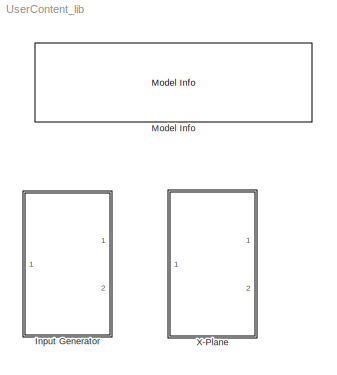
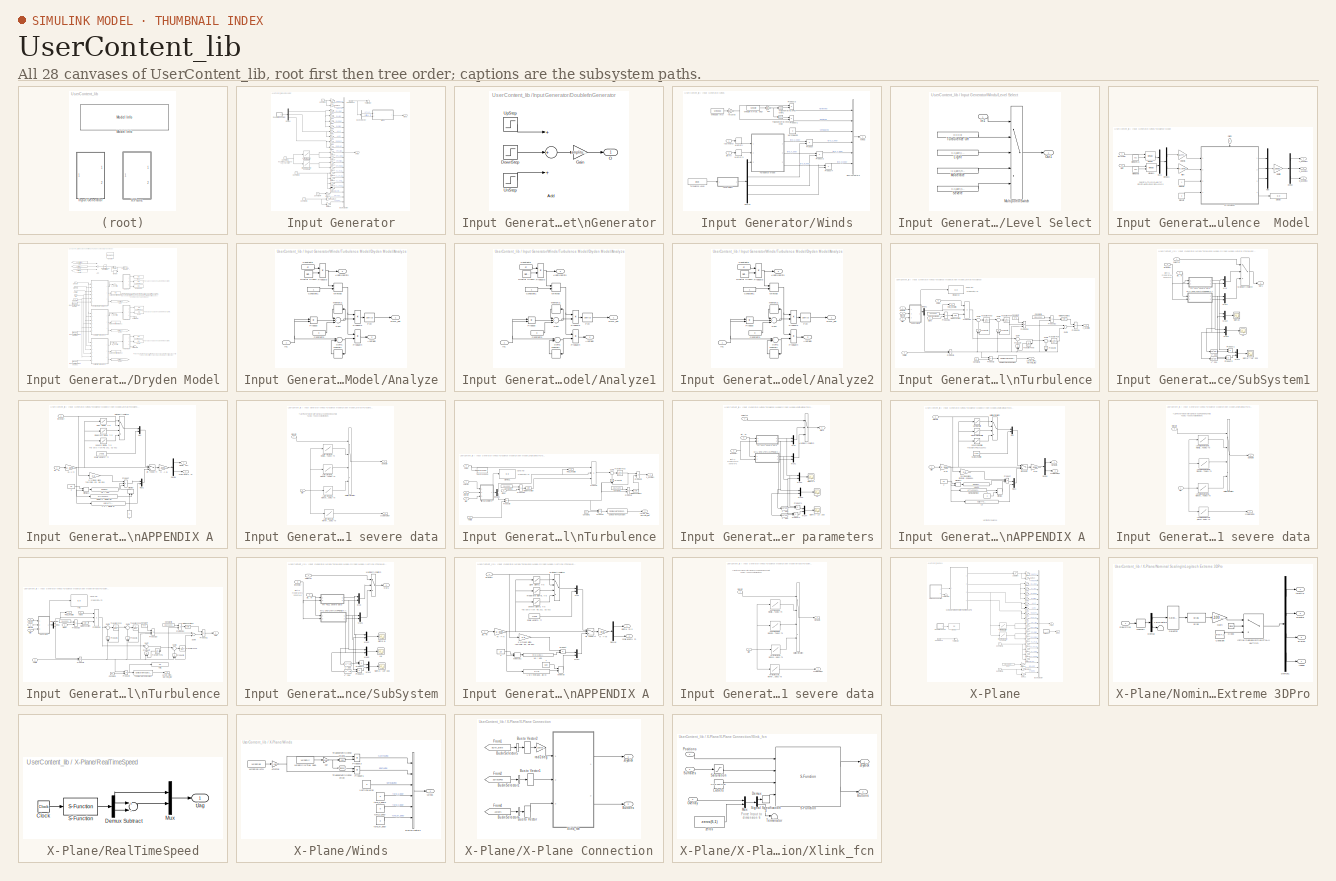
[diagram: thumbnail index - all 28 canvases of the model, root first then tree order]
MODEL UserContent_lib
KIND library
BLOCK [SubSystem] Input Generator
  FunctionWithSeparateData = off
  MaskHideContents = off
  MinAlgLoopOccurrences = off
  Opaque = off
  Ports = [1, 2]
  PropExecContextOutsideSubsystem = off
  RTWSystemCode = Auto
  RequestExecContextInheritance = off
  SID = 567
BLOCK [BusCreator] Input Generator/Bus\nCreator
  DisplayOption = bar
  Inputs = 21
  Ports = [21, 1]
  SID = 569
BLOCK [BusSelector] Input Generator/Bus\nSelector
  OutputSignals = AirData.KTAS,AirData.altitude_ft
  Ports = [1, 2]
  SID = 570
BLOCK [Constant] Input Generator/Constant
  SID = 571
  Value = 0
BLOCK [Constant] Input Generator/Constant1
  SID = 572
  Value = 0
BLOCK [Constant] Input Generator/Constant2
  SID = 573
  Value = 0
BLOCK [Constant] Input Generator/Constant3
  SID = 574
  Value = 0
BLOCK [Constant] Input Generator/Constant4
  SID = 575
  Value = 0
BLOCK [Demux] Input Generator/Demux
  DisplayOption = bar
  Outputs = 3
  Ports = [1, 3]
  SID = 576
BLOCK [SubSystem] Input Generator/Doublet\nGenerator
  FunctionWithSeparateData = off
  MaskCallbackString = ||
  MaskDescription = Doublet Generator.  \nOuputs doublet of specificed amplitude and duration.\n\nIf start/duration/amplitude parameters are vectors, then output is multichannel.
  MaskDisplay = plot([.1 .3 .3001 .4 .4001 .5  .5001 .7],[0 0 1 1 -1 -1 0 0])\n
  MaskEnableString = on,on,on
  MaskHideContents = off
  MaskIconFrame = on
  MaskIconOpaque = on
  MaskIconRotate = none
  MaskIconUnits = autoscale
  MaskPortRotate = default
  MaskPromptString = Time Start|Pulse Duration|Amplitude
  MaskStyleString = edit,edit,edit
  MaskToolTipString = on,on,on
  MaskTunableValueString = on,on,on
  MaskType = DoubletGenerator
  MaskValueString = [2 12 7]|[0.5 0.5 0.5]|[0 0 0]
  MaskVariables = timeon=@1;pulsewidth=@2;amplitude=@3;
  MaskVisibilityString = on,on,on
  MinAlgLoopOccurrences = off
  Opaque = off
  Ports = [0, 1]
  PropExecContextOutsideSubsystem = off
  RTWSystemCode = Auto
  RequestExecContextInheritance = off
  SID = 577
BLOCK [Sum] Input Generator/Doublet\nGenerator/Add
  InputSameDT = off
  Inputs = +++
  OutDataTypeStr = Inherit: Inherit via internal rule
  Ports = [3, 1]
  SID = 578
  SaturateOnIntegerOverflow = off
BLOCK [Step] Input Generator/Doublet\nGenerator/DownStep
  After = -2
  SID = 579
  SampleTime = 0
  Time = timeon+pulsewidth
BLOCK [Gain] Input Generator/Doublet\nGenerator/Gain
  Gain = amplitude
  OutDataTypeStr = Inherit: Inherit via internal rule
  ParamDataTypeStr = Inherit: Inherit via internal rule
  SID = 580
  SaturateOnIntegerOverflow = off
BLOCK [Outport] Input Generator/Doublet\nGenerator/O
  IconDisplay = Port number
  SID = 583
BLOCK [Step] Input Generator/Doublet\nGenerator/UnStep
  SID = 581
  SampleTime = 0
  Time = timeon+2*pulsewidth
BLOCK [Step] Input Generator/Doublet\nGenerator/UpStep
  SID = 582
  SampleTime = 0
  Time = timeon
BLOCK [Inport] Input Generator/Feedback
  IconDisplay = Port number
  SID = 568
BLOCK [Gain] Input Generator/Gain1
  Gain = -1
  SID = 584
BLOCK [Gain] Input Generator/Gain10
  SID = 585
BLOCK [Gain] Input Generator/Gain11
  SID = 586
BLOCK [Gain] Input Generator/Gain12
  SID = 587
BLOCK [Gain] Input Generator/Gain13
  SID = 588
BLOCK [Gain] Input Generator/Gain14
  SID = 589
BLOCK [Gain] Input Generator/Gain15
  SID = 590
BLOCK [Gain] Input Generator/Gain16
  SID = 591
BLOCK [Gain] Input Generator/Gain17
  SID = 592
BLOCK [Gain] Input Generator/Gain18
  SID = 593
BLOCK [Gain] Input Generator/Gain19
  SID = 594
BLOCK [Gain] Input Generator/Gain2
  SID = 595
BLOCK [Gain] Input Generator/Gain20
  SID = 596
BLOCK [Gain] Input Generator/Gain21
  SID = 597
BLOCK [Gain] Input Generator/Gain3
  SID = 598
BLOCK [Gain] Input Generator/Gain4
  SID = 599
BLOCK [Gain] Input Generator/Gain5
  SID = 600
BLOCK [Gain] Input Generator/Gain6
  SID = 601
BLOCK [Gain] Input Generator/Gain7
  SID = 602
BLOCK [Gain] Input Generator/Gain8
  SID = 603
BLOCK [Gain] Input Generator/Gain9
  SID = 604
BLOCK [Lookup] Input Generator/Left Roll Spoiler Schedule
  InputValues = [-20	-11.76	-2.36	0	2.36	11.76	20	]\n
  LookUpMeth = Interpolation-Use End Values
  SID = 605
  SaturateOnIntegerOverflow = off
  Table = [0 0 0 0 0 9 45]
BLOCK [Lookup] Input Generator/Right Roll Spoiler Schedule
  InputValues = [-20	-11.76	-2.36	0	2.36	11.76	20	]\n
  LookUpMeth = Interpolation-Use End Values
  SID = 606
  SaturateOnIntegerOverflow = off
  Table = [45 9 0 0 0 0 0]
BLOCK [Terminator] Input Generator/Terminator
  SID = 607
BLOCK [SubSystem] Input Generator/Winds
  FunctionWithSeparateData = off
  MaskCallbackString = ||
  MaskDescription = Sets steady winds with wind speed and direction and\napplies gust winds with selectable level of turbulence.
  MaskEnableString = on,on,on
  MaskHideContents = off
  MaskIconFrame = on
  MaskIconOpaque = on
  MaskIconRotate = none
  MaskIconUnits = autoscale
  MaskPortRotate = default
  MaskPromptString = Wind Speed (knots)|Wind Direction (deg)|Turbulence Level
  MaskStyleString = edit,edit,popup(None|Light|Moderate|Severe)
  MaskToolTipString = on,on,on
  MaskTunableValueString = on,on,on
  MaskType = WindSource
  MaskValueString = WindSpd|WindDir|None
  MaskVariables = WindSpeed_knots=@1;WindDirection_deg=@2;level=@3;
  MaskVisibilityString = on,on,on
  MinAlgLoopOccurrences = off
  Opaque = off
  Ports = [2, 1]
  PropExecContextOutsideSubsystem = off
  RTWSystemCode = Auto
  RequestExecContextInheritance = off
  SID = 608
BLOCK [Gain] Input Generator/Winds/-kts2fps
  Gain = -1.6878
  SID = 611
BLOCK [BusCreator] Input Generator/Winds/Bus\nCreator3
  DisplayOption = bar
  Inputs = 6
  Ports = [6, 1]
  SID = 612
BLOCK [Demux] Input Generator/Winds/Demux
  DisplayOption = bar
  Ports = [1, 4]
  SID = 613
BLOCK [SubSystem] Input Generator/Winds/Level Select
  FunctionWithSeparateData = off
  MaskHideContents = off
  MinAlgLoopOccurrences = off
  Opaque = off
  Ports = [1, 1]
  PropExecContextOutsideSubsystem = off
  RTWSystemCode = Auto
  RequestExecContextInheritance = off
  SID = 614
BLOCK [Inport] Input Generator/Winds/Level Select/In1
  IconDisplay = Port number
  SID = 615
BLOCK [Constant] Input Generator/Winds/Level Select/Light
  SID = 616
  Value = [1 u_gain_light v_gain_light w_gain_light]
BLOCK [Constant] Input Generator/Winds/Level Select/Moderate
  SID = 617
  Value = [1 u_gain_moderate v_gain_moderate w_gain_moderate]
BLOCK [MultiPortSwitch] Input Generator/Winds/Level Select/Multiport\nSwitch
  InputSameDT = off
  Inputs = 4
  Ports = [5, 1]
  SID = 618
  SaturateOnIntegerOverflow = off
  zeroidx = off
BLOCK [Outport] Input Generator/Winds/Level Select/Out1
  IconDisplay = Port number
  SID = 621
BLOCK [Constant] Input Generator/Winds/Level Select/Severe
  SID = 619
  Value = [1 u_gain_severe v_gain_severe w_gain_severe]
BLOCK [Constant] Input Generator/Winds/Level Select/Turbulence Off
  SID = 620
  Value = [0 0 0 0]
BLOCK [Memory] Input Generator/Winds/Memory
  SID = 622
  X0 = 70
BLOCK [Memory] Input Generator/Winds/Memory1
  SID = 623
  X0 = 1000
BLOCK [Product] Input Generator/Winds/Product
  InputSameDT = off
  OutDataTypeStr = Inherit: Inherit via internal rule
  Ports = [2, 1]
  SID = 624
  SaturateOnIntegerOverflow = off
BLOCK [Product] Input Generator/Winds/Product1
  Inputs = **
  Ports = [2, 1]
  RndMeth = Floor
  SID = 625
BLOCK [Product] Input Generator/Winds/Product2
  InputSameDT = off
  OutDataTypeStr = Inherit: Inherit via internal rule
  Ports = [2, 1]
  SID = 626
  SaturateOnIntegerOverflow = off
BLOCK [Product] Input Generator/Winds/Product3
  Inputs = **
  Ports = [2, 1]
  RndMeth = Floor
  SID = 627
BLOCK [Product] Input Generator/Winds/Product4
  InputSameDT = off
  OutDataTypeStr = Inherit: Inherit via internal rule
  Ports = [2, 1]
  SID = 628
  SaturateOnIntegerOverflow = off
BLOCK [Trigonometry] Input Generator/Winds/Trigonometric\nFunction
  Ports = [1, 1]
  SID = 629
BLOCK [Trigonometry] Input Generator/Winds/Trigonometric\nFunction1
  Operator = cos
  Ports = [1, 1]
  SID = 630
BLOCK [SubSystem] Input Generator/Winds/Turbulence  Model
  FunctionWithSeparateData = off
  MaskHideContents = off
  MinAlgLoopOccurrences = off
  Opaque = off
  Ports = [3, 3]
  PropExecContextOutsideSubsystem = off
  RTWSystemCode = Auto
  RequestExecContextInheritance = off
  SID = 631
BLOCK [Demux] Input Generator/Winds/Turbulence  Model/Demux
  DisplayOption = bar
  Outputs = 3
  Ports = [1, 3]
  SID = 635
BLOCK [Demux] Input Generator/Winds/Turbulence  Model/Demux1
  DisplayOption = bar
  Outputs = 2
  Ports = [1, 2]
  SID = 636
BLOCK [Display] Input Generator/Winds/Turbulence  Model/Display
  Decimation = 1
  Lockdown = off
  Ports = [1]
  SID = 637
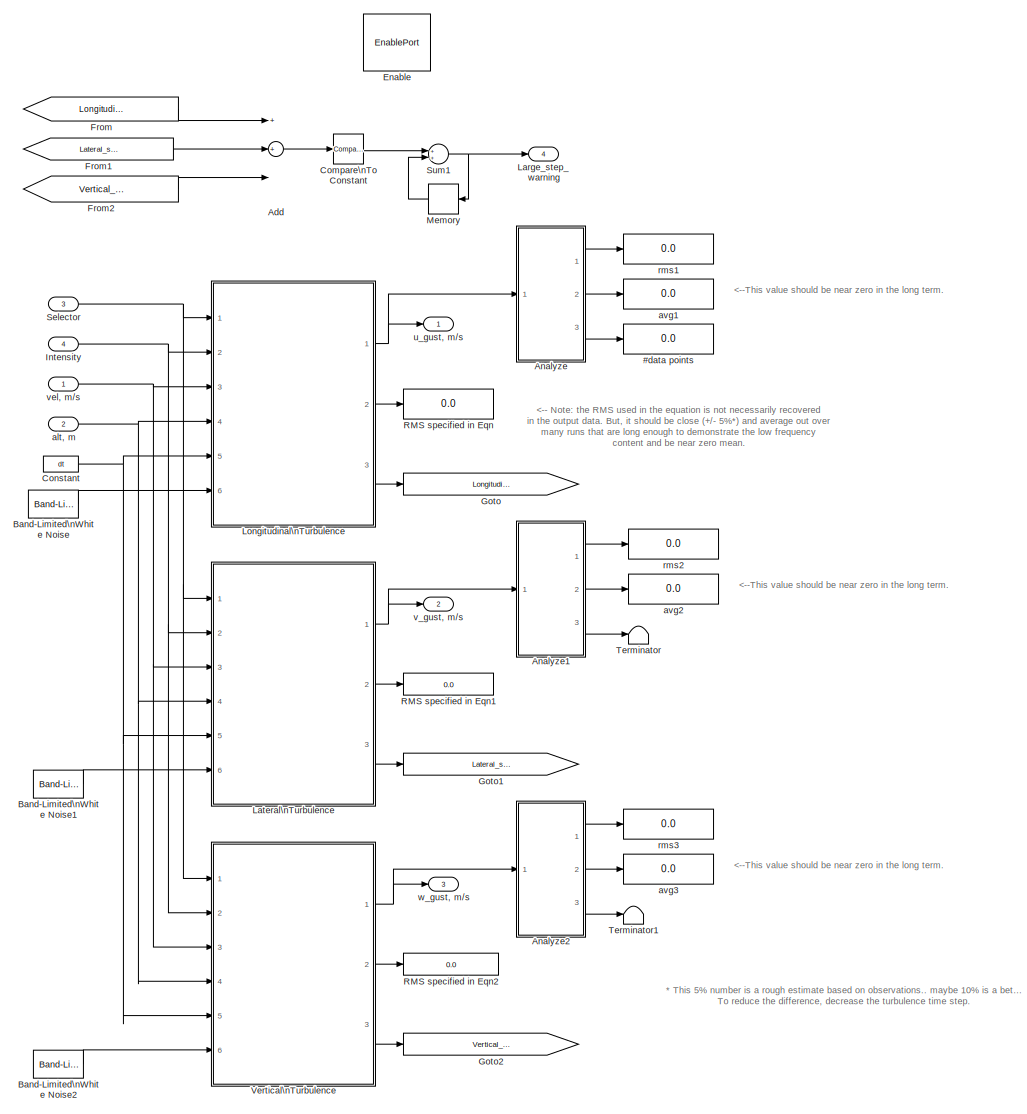
[diagram: Input Generator/Winds/Turbulence  Model/Dryden Model - part 1/1, most of the canvas]
BLOCK [SubSystem] Input Generator/Winds/Turbulence  Model/Dryden Model
  FunctionWithSeparateData = off
  MaskCallbackString = ||||
  MaskEnableString = on,on,on,on,on
  MaskHideContents = off
  MaskIconFrame = on
  MaskIconOpaque = on
  MaskIconRotate = none
  MaskIconUnits = autoscale
  MaskPortRotate = default
  MaskPromptString = Longitudinal Random Number Seed|Lateral Random Number Seed|Vertical Random Number Seed|Turbulence model time step, sec|Threshhold for stepsize warning (%)
  MaskStyleString = edit,edit,edit,edit,edit
  MaskToolTipString = on,on,on,on,on
  MaskTunableValueString = on,on,on,on,on
  MaskValueString = 3366+521|23+521|1369+521|Timestep|.11
  MaskVariables = longseed=@1;latseed=@2;vertseed=@3;dt=@4;Step_warning_pct=@5;
  MaskVisibilityString = on,on,on,on,on
  MinAlgLoopOccurrences = off
  Opaque = off
  Ports = [4, 4, 1]
  PropExecContextOutsideSubsystem = off
  RTWSystemCode = Auto
  RequestExecContextInheritance = off
  SID = 638
BLOCK [Display] Input Generator/Winds/Turbulence  Model/Dryden Model/#data points
  Decimation = 1
  Lockdown = off
  Ports = [1]
  SID = 644
BLOCK [Sum] Input Generator/Winds/Turbulence  Model/Dryden Model/Add
  InputSameDT = off
  Inputs = 3
  OutDataTypeStr = Inherit: Inherit via internal rule
  Ports = [3, 1]
  SID = 645
  SaturateOnIntegerOverflow = off
BLOCK [SubSystem] Input Generator/Winds/Turbulence  Model/Dryden Model/Analyze
  FunctionWithSeparateData = off
  MaskHideContents = off
  MinAlgLoopOccurrences = off
  Opaque = off
  Ports = [1, 3]
  PropExecContextOutsideSubsystem = off
  RTWSystemCode = Auto
  RequestExecContextInheritance = off
  SID = 646
BLOCK [Outport] Input Generator/Winds/Turbulence  Model/Dryden Model/Analyze/# data points
  IconDisplay = Port number
  Port = 3
  SID = 664
BLOCK [Outport] Input Generator/Winds/Turbulence  Model/Dryden Model/Analyze/Average
  IconDisplay = Port number
  Port = 2
  SID = 663
BLOCK [Constant] Input Generator/Winds/Turbulence  Model/Dryden Model/Analyze/Constant1
  SID = 648
BLOCK [Constant] Input Generator/Winds/Turbulence  Model/Dryden Model/Analyze/Constant3
  SID = 649
  Value = 0
BLOCK [Constant] Input Generator/Winds/Turbulence  Model/Dryden Model/Analyze/Constant5
  SID = 650
  Value = dt
BLOCK [DigitalClock] Input Generator/Winds/Turbulence  Model/Dryden Model/Analyze/Digital Clock1
  SID = 651
  SampleTime = dt
BLOCK [Fcn] Input Generator/Winds/Turbulence  Model/Dryden Model/Analyze/Fcn
  Expr = sqrt(u)
  SID = 652
BLOCK [Inport] Input Generator/Winds/Turbulence  Model/Dryden Model/Analyze/In1
  IconDisplay = Port number
  SID = 647
BLOCK [Memory] Input Generator/Winds/Turbulence  Model/Dryden Model/Analyze/Memory
  SID = 653
BLOCK [Memory] Input Generator/Winds/Turbulence  Model/Dryden Model/Analyze/Memory1
  SID = 654
BLOCK [MinMax] Input Generator/Winds/Turbulence  Model/Dryden Model/Analyze/MinMax
  Function = max
  InputSameDT = off
  Inputs = 2
  Ports = [2, 1]
  SID = 655
  SaturateOnIntegerOverflow = off
BLOCK [Product] Input Generator/Winds/Turbulence  Model/Dryden Model/Analyze/Product
  InputSameDT = off
  Ports = [2, 1]
  RndMeth = Floor
  SID = 656
BLOCK [Product] Input Generator/Winds/Turbulence  Model/Dryden Model/Analyze/Product2
  InputSameDT = off
  Inputs = /*
  Ports = [2, 1]
  RndMeth = Floor
  SID = 657
BLOCK [Product] Input Generator/Winds/Turbulence  Model/Dryden Model/Analyze/Product3
  InputSameDT = off
  Inputs = /*
  Ports = [2, 1]
  RndMeth = Floor
  SID = 658
BLOCK [Product] Input Generator/Winds/Turbulence  Model/Dryden Model/Analyze/Product4
  InputSameDT = off
  Inputs = /*
  Ports = [2, 1]
  RndMeth = Floor
  SID = 659
BLOCK [Outport] Input Generator/Winds/Turbulence  Model/Dryden Model/Analyze/RMS_out
  IconDisplay = Port number
  SID = 662
BLOCK [Sum] Input Generator/Winds/Turbulence  Model/Dryden Model/Analyze/Sum
  InputSameDT = off
  Inputs = ++-
  OutDataTypeStr = Inherit: Inherit via internal rule
  Ports = [3, 1]
  SID = 660
BLOCK [Sum] Input Generator/Winds/Turbulence  Model/Dryden Model/Analyze/Sum1
  InputSameDT = off
  Inputs = 2
  OutDataTypeStr = Inherit: Inherit via internal rule
  Ports = [2, 1]
  SID = 661
BLOCK [SubSystem] Input Generator/Winds/Turbulence  Model/Dryden Model/Analyze1
  FunctionWithSeparateData = off
  MaskHideContents = off
  MinAlgLoopOccurrences = off
  Opaque = off
  Ports = [1, 3]
  PropExecContextOutsideSubsystem = off
  RTWSystemCode = Auto
  RequestExecContextInheritance = off
  SID = 665
BLOCK [Outport] Input Generator/Winds/Turbulence  Model/Dryden Model/Analyze1/# data points
  IconDisplay = Port number
  Port = 3
  SID = 683
BLOCK [Outport] Input Generator/Winds/Turbulence  Model/Dryden Model/Analyze1/Average
  IconDisplay = Port number
  Port = 2
  SID = 682
BLOCK [Constant] Input Generator/Winds/Turbulence  Model/Dryden Model/Analyze1/Constant1
  SID = 667
BLOCK [Constant] Input Generator/Winds/Turbulence  Model/Dryden Model/Analyze1/Constant3
  SID = 668
  Value = 0
BLOCK [Constant] Input Generator/Winds/Turbulence  Model/Dryden Model/Analyze1/Constant5
  SID = 669
  Value = dt
BLOCK [DigitalClock] Input Generator/Winds/Turbulence  Model/Dryden Model/Analyze1/Digital Clock1
  SID = 670
  SampleTime = dt
BLOCK [Fcn] Input Generator/Winds/Turbulence  Model/Dryden Model/Analyze1/Fcn
  Expr = sqrt(u)
  SID = 671
BLOCK [Inport] Input Generator/Winds/Turbulence  Model/Dryden Model/Analyze1/In1
  IconDisplay = Port number
  SID = 666
BLOCK [Memory] Input Generator/Winds/Turbulence  Model/Dryden Model/Analyze1/Memory
  SID = 672
BLOCK [Memory] Input Generator/Winds/Turbulence  Model/Dryden Model/Analyze1/Memory1
  SID = 673
BLOCK [MinMax] Input Generator/Winds/Turbulence  Model/Dryden Model/Analyze1/MinMax
  Function = max
  InputSameDT = off
  Inputs = 2
  Ports = [2, 1]
  SID = 674
  SaturateOnIntegerOverflow = off
BLOCK [Product] Input Generator/Winds/Turbulence  Model/Dryden Model/Analyze1/Product
  InputSameDT = off
  Ports = [2, 1]
  RndMeth = Floor
  SID = 675
BLOCK [Product] Input Generator/Winds/Turbulence  Model/Dryden Model/Analyze1/Product2
  InputSameDT = off
  Inputs = /*
  Ports = [2, 1]
  RndMeth = Floor
  SID = 676
BLOCK [Product] Input Generator/Winds/Turbulence  Model/Dryden Model/Analyze1/Product3
  InputSameDT = off
  Inputs = /*
  Ports = [2, 1]
  RndMeth = Floor
  SID = 677
BLOCK [Product] Input Generator/Winds/Turbulence  Model/Dryden Model/Analyze1/Product4
  InputSameDT = off
  Inputs = /*
  Ports = [2, 1]
  RndMeth = Floor
  SID = 678
BLOCK [Outport] Input Generator/Winds/Turbulence  Model/Dryden Model/Analyze1/RMS_out
  IconDisplay = Port number
  SID = 681
BLOCK [Sum] Input Generator/Winds/Turbulence  Model/Dryden Model/Analyze1/Sum
  InputSameDT = off
  Inputs = ++-
  OutDataTypeStr = Inherit: Inherit via internal rule
  Ports = [3, 1]
  SID = 679
BLOCK [Sum] Input Generator/Winds/Turbulence  Model/Dryden Model/Analyze1/Sum1
  InputSameDT = off
  Inputs = 2
  OutDataTypeStr = Inherit: Inherit via internal rule
  Ports = [2, 1]
  SID = 680
BLOCK [SubSystem] Input Generator/Winds/Turbulence  Model/Dryden Model/Analyze2
  FunctionWithSeparateData = off
  MaskHideContents = off
  MinAlgLoopOccurrences = off
  Opaque = off
  Ports = [1, 3]
  PropExecContextOutsideSubsystem = off
  RTWSystemCode = Auto
  RequestExecContextInheritance = off
  SID = 684
BLOCK [Outport] Input Generator/Winds/Turbulence  Model/Dryden Model/Analyze2/# data points
  IconDisplay = Port number
  Port = 3
  SID = 702
BLOCK [Outport] Input Generator/Winds/Turbulence  Model/Dryden Model/Analyze2/Average
  IconDisplay = Port number
  Port = 2
  SID = 701
BLOCK [Constant] Input Generator/Winds/Turbulence  Model/Dryden Model/Analyze2/Constant1
  SID = 686
BLOCK [Constant] Input Generator/Winds/Turbulence  Model/Dryden Model/Analyze2/Constant3
  SID = 687
  Value = 0
BLOCK [Constant] Input Generator/Winds/Turbulence  Model/Dryden Model/Analyze2/Constant5
  SID = 688
  Value = dt
BLOCK [DigitalClock] Input Generator/Winds/Turbulence  Model/Dryden Model/Analyze2/Digital Clock1
  SID = 689
  SampleTime = dt
BLOCK [Fcn] Input Generator/Winds/Turbulence  Model/Dryden Model/Analyze2/Fcn
  Expr = sqrt(u)
  SID = 690
BLOCK [Inport] Input Generator/Winds/Turbulence  Model/Dryden Model/Analyze2/In1
  IconDisplay = Port number
  SID = 685
BLOCK [Memory] Input Generator/Winds/Turbulence  Model/Dryden Model/Analyze2/Memory
  SID = 691
BLOCK [Memory] Input Generator/Winds/Turbulence  Model/Dryden Model/Analyze2/Memory1
  SID = 692
BLOCK [MinMax] Input Generator/Winds/Turbulence  Model/Dryden Model/Analyze2/MinMax
  Function = max
  InputSameDT = off
  Inputs = 2
  Ports = [2, 1]
  SID = 693
  SaturateOnIntegerOverflow = off
BLOCK [Product] Input Generator/Winds/Turbulence  Model/Dryden Model/Analyze2/Product
  InputSameDT = off
  Ports = [2, 1]
  RndMeth = Floor
  SID = 694
BLOCK [Product] Input Generator/Winds/Turbulence  Model/Dryden Model/Analyze2/Product2
  InputSameDT = off
  Inputs = /*
  Ports = [2, 1]
  RndMeth = Floor
  SID = 695
BLOCK [Product] Input Generator/Winds/Turbulence  Model/Dryden Model/Analyze2/Product3
  InputSameDT = off
  Inputs = /*
  Ports = [2, 1]
  RndMeth = Floor
  SID = 696
BLOCK [Product] Input Generator/Winds/Turbulence  Model/Dryden Model/Analyze2/Product4
  InputSameDT = off
  Inputs = /*
  Ports = [2, 1]
  RndMeth = Floor
  SID = 697
BLOCK [Outport] Input Generator/Winds/Turbulence  Model/Dryden Model/Analyze2/RMS_out
  IconDisplay = Port number
  SID = 700
BLOCK [Sum] Input Generator/Winds/Turbulence  Model/Dryden Model/Analyze2/Sum
  InputSameDT = off
  Inputs = ++-
  OutDataTypeStr = Inherit: Inherit via internal rule
  Ports = [3, 1]
  SID = 698
BLOCK [Sum] Input Generator/Winds/Turbulence  Model/Dryden Model/Analyze2/Sum1
  InputSameDT = off
  Inputs = 2
  OutDataTypeStr = Inherit: Inherit via internal rule
  Ports = [2, 1]
  SID = 699
BLOCK [Reference] Input Generator/Winds/Turbulence  Model/Dryden Model/Band-Limited\nWhite Noise  REF=simulink/Sources/Band-Limited\nWhite Noise
  Cov = dt
  Ports = [0, 1]
  SID = 703
  SourceBlock = simulink/Sources/Band-Limited\nWhite Noise
  SourceType = Band-Limited White Noise.
  Ts = dt
  VectorParams1D = on
  seed = longseed
BLOCK [Reference] Input Generator/Winds/Turbulence  Model/Dryden Model/Band-Limited\nWhite Noise1  REF=simulink/Sources/Band-Limited\nWhite Noise
  Cov = dt
  Ports = [0, 1]
  SID = 704
  SourceBlock = simulink/Sources/Band-Limited\nWhite Noise
  SourceType = Band-Limited White Noise.
  Ts = dt
  VectorParams1D = on
  seed = latseed
BLOCK [Reference] Input Generator/Winds/Turbulence  Model/Dryden Model/Band-Limited\nWhite Noise2  REF=simulink/Sources/Band-Limited\nWhite Noise
  Cov = dt
  Ports = [0, 1]
  SID = 705
  SourceBlock = simulink/Sources/Band-Limited\nWhite Noise
  SourceType = Band-Limited White Noise.
  Ts = dt
  VectorParams1D = on
  seed = vertseed
BLOCK [Reference] Input Generator/Winds/Turbulence  Model/Dryden Model/Compare\nTo Constant  REF=simulink/Logic and Bit\nOperations/Compare\nTo Constant
  OutDataTypeStr = uint8
  Ports = [1, 1]
  SID = 706
  SourceBlock = simulink/Logic and Bit\nOperations/Compare\nTo Constant
  SourceType = Compare To Constant
  ZeroCross = off
  const = 1
  relop = >=
BLOCK [Constant] Input Generator/Winds/Turbulence  Model/Dryden Model/Constant
  SID = 707
  Value = dt
BLOCK [EnablePort] Input Generator/Winds/Turbulence  Model/Dryden Model/Enable
  Ports = []
  SID = 643
  StatesWhenEnabling = reset
BLOCK [From] Input Generator/Winds/Turbulence  Model/Dryden Model/From
  GotoTag = Longitudinal_step_warning
  SID = 708
BLOCK [From] Input Generator/Winds/Turbulence  Model/Dryden Model/From1
  GotoTag = Lateral_step_warning
  SID = 709
BLOCK [From] Input Generator/Winds/Turbulence  Model/Dryden Model/From2
  GotoTag = Vertical_step_warning
  SID = 710
BLOCK [Goto] Input Generator/Winds/Turbulence  Model/Dryden Model/Goto
  GotoTag = Longitudinal_step_warning
  SID = 711
  TagVisibility = local
BLOCK [Goto] Input Generator/Winds/Turbulence  Model/Dryden Model/Goto1
  GotoTag = Lateral_step_warning
  SID = 712
  TagVisibility = local
BLOCK [Goto] Input Generator/Winds/Turbulence  Model/Dryden Model/Goto2
  GotoTag = Vertical_step_warning
  SID = 713
  TagVisibility = local
BLOCK [Inport] Input Generator/Winds/Turbulence  Model/Dryden Model/Intensity
  IconDisplay = Port number
  Port = 4
  SID = 642
BLOCK [Outport] Input Generator/Winds/Turbulence  Model/Dryden Model/Large_step_warning
  IconDisplay = Port number
  InitialOutput = 0
  OutputWhenDisabled = reset
  Port = 4
  SID = 995
BLOCK [SubSystem] Input Generator/Winds/Turbulence  Model/Dryden Model/Lateral\nTurbulence
  FunctionWithSeparateData = off
  MaskHideContents = off
  MinAlgLoopOccurrences = off
  Opaque = off
  Ports = [6, 3]
  PropExecContextOutsideSubsystem = off
  RTWSystemCode = Auto
  RequestExecContextInheritance = off
  SID = 714
BLOCK [Reference] Input Generator/Winds/Turbulence  Model/Dryden Model/Lateral\nTurbulence/Compare\nTo Constant  REF=simulink/Logic and Bit\nOperations/Compare\nTo Constant
  OutDataTypeStr = uint8
  Ports = [1, 1]
  SID = 721
  SourceBlock = simulink/Logic and Bit\nOperations/Compare\nTo Constant
  SourceType = Compare To Constant
  ZeroCross = off
  const = Step_warning_pct
  relop = >
BLOCK [Constant] Input Generator/Winds/Turbulence  Model/Dryden Model/Lateral\nTurbulence/Constant1
  SID = 722
  Value = dt
BLOCK [Constant] Input Generator/Winds/Turbulence  Model/Dryden Model/Lateral\nTurbulence/Constant10
  SID = 723
  Value = 3.141593
BLOCK [Constant] Input Generator/Winds/Turbulence  Model/Dryden Model/Lateral\nTurbulence/Constant7
  SID = 724
  Value = 3^.5
BLOCK [Constant] Input Generator/Winds/Turbulence  Model/Dryden Model/Lateral\nTurbulence/Constant8
  SID = 725
  Value = 3/3.141593
BLOCK [Demux] Input Generator/Winds/Turbulence  Model/Dryden Model/Lateral\nTurbulence/Demux1
  Outputs = 2
  Ports = [1, 2]
  SID = 726
BLOCK [Display] Input Generator/Winds/Turbulence  Model/Dryden Model/Lateral\nTurbulence/Display10
  Decimation = 1
  Lockdown = off
  Ports = [1]
  SID = 727
BLOCK [Outport] Input Generator/Winds/Turbulence  Model/Dryden Model/Lateral\nTurbulence/Large_step_warnnig_flag
  IconDisplay = Port number
  Port = 3
  SID = 805
BLOCK [Math] Input Generator/Winds/Turbulence  Model/Dryden Model/Lateral\nTurbulence/Math\nFunction
  Operator = sqrt
  Ports = [1, 1]
  SID = 728
BLOCK [Math] Input Generator/Winds/Turbulence  Model/Dryden Model/Lateral\nTurbulence/Math\nFunction2
  Operator = sqrt
  Ports = [1, 1]
  SID = 729
BLOCK [Product] Input Generator/Winds/Turbulence  Model/Dryden Model/Lateral\nTurbulence/Product10
  Inputs = /**
  Ports = [3, 1]
  RndMeth = Floor
  SID = 730
BLOCK [Product] Input Generator/Winds/Turbulence  Model/Dryden Model/Lateral\nTurbulence/Product11
  Inputs = **
  Ports = [2, 1]
  RndMeth = Floor
  SID = 731
BLOCK [Product] Input Generator/Winds/Turbulence  Model/Dryden Model/Lateral\nTurbulence/Product12
  Inputs = **
  Ports = [2, 1]
  RndMeth = Floor
  SID = 732
BLOCK [Product] Input Generator/Winds/Turbulence  Model/Dryden Model/Lateral\nTurbulence/Product15
  Inputs = */
  Ports = [2, 1]
  RndMeth = Floor
  SID = 733
BLOCK [Product] Input Generator/Winds/Turbulence  Model/Dryden Model/Lateral\nTurbulence/Product16
  Inputs = ***
  Ports = [3, 1]
  RndMeth = Floor
  SID = 734
BLOCK [Product] Input Generator/Winds/Turbulence  Model/Dryden Model/Lateral\nTurbulence/Product2
  Ports = [2, 1]
  RndMeth = Floor
  SID = 735
BLOCK [Product] Input Generator/Winds/Turbulence  Model/Dryden Model/Lateral\nTurbulence/Product5
  Ports = [2, 1]
  RndMeth = Floor
  SID = 736
BLOCK [Product] Input Generator/Winds/Turbulence  Model/Dryden Model/Lateral\nTurbulence/Product6
  Ports = [2, 1]
  RndMeth = Floor
  SID = 737
BLOCK [Product] Input Generator/Winds/Turbulence  Model/Dryden Model/Lateral\nTurbulence/Product7
  Ports = [2, 1]
  RndMeth = Floor
  SID = 738
BLOCK [Product] Input Generator/Winds/Turbulence  Model/Dryden Model/Lateral\nTurbulence/Product8
  Ports = [2, 1]
  RndMeth = Floor
  SID = 739
BLOCK [Product] Input Generator/Winds/Turbulence  Model/Dryden Model/Lateral\nTurbulence/Product9
  Inputs = /*
  Ports = [2, 1]
  RndMeth = Floor
  SID = 740
BLOCK [Outport] Input Generator/Winds/Turbulence  Model/Dryden Model/Lateral\nTurbulence/RMS_input, m//s
  IconDisplay = Port number
  Port = 2
  SID = 804
BLOCK [SubSystem] Input Generator/Winds/Turbulence  Model/Dryden Model/Lateral\nTurbulence/SubSystem1
  FunctionWithSeparateData = off
  MaskHideContents = off
  MinAlgLoopOccurrences = off
  Opaque = off
  Ports = [3, 1]
  PropExecContextOutsideSubsystem = off
  RTWSystemCode = Auto
  RequestExecContextInheritance = off
  SID = 741
BLOCK [Fcn] Input Generator/Winds/Turbulence  Model/Dryden Model/Lateral\nTurbulence/SubSystem1/L^.333
  Expr = u(1)^(1/3)
  SID = 745
BLOCK [Fcn] Input Generator/Winds/Turbulence  Model/Dryden Model/Lateral\nTurbulence/SubSystem1/L^.334
  Expr = u(1)^(1/3)
  SID = 746
BLOCK [Scope] Input Generator/Winds/Turbulence  Model/Dryden Model/Lateral\nTurbulence/SubSystem1/Lv
  DataFormat = StructureWithTime
  Floating = off
  NumInputPorts = 1
  Ports = [1]
  SID = 747
BLOCK [SubSystem] Input Generator/Winds/Turbulence  Model/Dryden Model/Lateral\nTurbulence/SubSystem1/MIL-STD-1797A\nAPPENDIX A 
  FunctionWithSeparateData = off
  MaskHideContents = off
  MinAlgLoopOccurrences = off
  Opaque = off
  Ports = [2, 2]
  PropExecContextOutsideSubsystem = off
  RTWSystemCode = Auto
  RequestExecContextInheritance = off
  SID = 748
BLOCK [Gain] Input Generator/Winds/Turbulence  Model/Dryden Model/Lateral\nTurbulence/SubSystem1/MIL-STD-1797A\nAPPENDIX A /0.1*mean wind, fps\nsigma w = to 2.5f//s * intensity\nFig 263, pg 654
  Gain = 2.5
  SID = 751
BLOCK [Constant] Input Generator/Winds/Turbulence  Model/Dryden Model/Lateral\nTurbulence/SubSystem1/MIL-STD-1797A\nAPPENDIX A /1
  SID = 752
BLOCK [Constant] Input Generator/Winds/Turbulence  Model/Dryden Model/Lateral\nTurbulence/SubSystem1/MIL-STD-1797A\nAPPENDIX A /2
  SID = 753
  Value = .15
BLOCK [Demux] Input Generator/Winds/Turbulence  Model/Dryden Model/Lateral\nTurbulence/SubSystem1/MIL-STD-1797A\nAPPENDIX A /Demux
  Outputs = 2
  Ports = [1, 2]
  SID = 754
BLOCK [Fcn] Input Generator/Winds/Turbulence  Model/Dryden Model/Lateral\nTurbulence/SubSystem1/MIL-STD-1797A\nAPPENDIX A /L v // sigma w
  Expr = u(1)/2*(.177+.000823*u(1))^(-1.2)
  SID = 755
BLOCK [Lookup] Input Generator/Winds/Turbulence  Model/Dryden Model/Lateral\nTurbulence/SubSystem1/MIL-STD-1797A\nAPPENDIX A /Light sigma, f//s
  InputValues = [2000 9000 18000 100000]
  SID = 756
  Table = [5 5 3 3]
BLOCK [MinMax] Input Generator/Winds/Turbulence  Model/Dryden Model/Lateral\nTurbulence/SubSystem1/MIL-STD-1797A\nAPPENDIX A /MinMax
  Function = max
  Inputs = 2
  Ports = [2, 1]
  SID = 757
BLOCK [MinMax] Input Generator/Winds/Turbulence  Model/Dryden Model/Lateral\nTurbulence/SubSystem1/MIL-STD-1797A\nAPPENDIX A /MinMax1
  Function = max
  Inputs = 2
  Ports = [2, 1]
  SID = 758
BLOCK [MultiPortSwitch] Input Generator/Winds/Turbulence  Model/Dryden Model/Lateral\nTurbulence/SubSystem1/MIL-STD-1797A\nAPPENDIX A /Multiport\nSwitch
  Ports = [4, 1]
  SID = 759
  zeroidx = off
BLOCK [Mux] Input Generator/Winds/Turbulence  Model/Dryden Model/Lateral\nTurbulence/SubSystem1/MIL-STD-1797A\nAPPENDIX A /Mux
  DisplayOption = bar
  Inputs = 2
  Ports = [2, 1]
  SID = 760
BLOCK [Mux] Input Generator/Winds/Turbulence  Model/Dryden Model/Lateral\nTurbulence/SubSystem1/MIL-STD-1797A\nAPPENDIX A /Mux1
  DisplayOption = bar
  Inputs = 2
  Ports = [2, 1]
  SID = 761
BLOCK [Product] Input Generator/Winds/Turbulence  Model/Dryden Model/Lateral\nTurbulence/SubSystem1/MIL-STD-1797A\nAPPENDIX A /Product
  Inputs = 3
  Ports = [3, 1]
  RndMeth = Floor
  SID = 762
BLOCK [Constant] Input Generator/Winds/Turbulence  Model/Dryden Model/Lateral\nTurbulence/SubSystem1/MIL-STD-1797A\nAPPENDIX A /Scale Length, ft
  SID = 763
  Value = 1750/2
BLOCK [Fcn] Input Generator/Winds/Turbulence  Model/Dryden Model/Lateral\nTurbulence/SubSystem1/MIL-STD-1797A\nAPPENDIX A /Ux // U20
  Expr = ln(u(1)/.15)/ln(20/.15)
  SID = 764
BLOCK [Switch] Input Generator/Winds/Turbulence  Model/Dryden Model/Lateral\nTurbulence/SubSystem1/MIL-STD-1797A\nAPPENDIX A /alt >2000 ft
  SID = 765
  Threshold = 2000
BLOCK [Inport] Input Generator/Winds/Turbulence  Model/Dryden Model/Lateral\nTurbulence/SubSystem1/MIL-STD-1797A\nAPPENDIX A /alt, m
  IconDisplay = Port number
  SID = 749
BLOCK [Gain] Input Generator/Winds/Turbulence  Model/Dryden Model/Lateral\nTurbulence/SubSystem1/MIL-STD-1797A\nAPPENDIX A /ft -> m
  Gain = .3048
  SID = 766
BLOCK [Inport] Input Generator/Winds/Turbulence  Model/Dryden Model/Lateral\nTurbulence/SubSystem1/MIL-STD-1797A\nAPPENDIX A /intensity
  IconDisplay = Port number
  Port = 2
  SID = 750
BLOCK [Gain] Input Generator/Winds/Turbulence  Model/Dryden Model/Lateral\nTurbulence/SubSystem1/MIL-STD-1797A\nAPPENDIX A /m -> ft
  Gain = 1/.3048
  SID = 767
BLOCK [Lookup] Input Generator/Winds/Turbulence  Model/Dryden Model/Lateral\nTurbulence/SubSystem1/MIL-STD-1797A\nAPPENDIX A /moderate sigma, f//s
  InputValues = [2000 12000 44000 100000]
  SID = 768
  Table = [10 10 3 3]
BLOCK [Outport] Input Generator/Winds/Turbulence  Model/Dryden Model/Lateral\nTurbulence/SubSystem1/MIL-STD-1797A\nAPPENDIX A /scale length, m
  IconDisplay = Port number
  Port = 2
  SID = 772
BLOCK [Lookup] Input Generator/Winds/Turbulence  Model/Dryden Model/Lateral\nTurbulence/SubSystem1/MIL-STD-1797A\nAPPENDIX A /severe sigma, f//s
  InputValues = [2000 5000 22000 80000 100000]
  SID = 769
  Table = [15.5 21.5 21.5 3 3]
BLOCK [Fcn] Input Generator/Winds/Turbulence  Model/Dryden Model/Lateral\nTurbulence/SubSystem1/MIL-STD-1797A\nAPPENDIX A /sigma v// sigma w1
  Expr = (.177+.000823*u(1))^(-.4)
  SID = 770
BLOCK [Outport] Input Generator/Winds/Turbulence  Model/Dryden Model/Lateral\nTurbulence/SubSystem1/MIL-STD-1797A\nAPPENDIX A /sigma, m//s
  IconDisplay = Port number
  SID = 771
BLOCK [MultiPortSwitch] Input Generator/Winds/Turbulence  Model/Dryden Model/Lateral\nTurbulence/SubSystem1/Multiport\nSwitch
  Inputs = 2
  Ports = [3, 1]
  SID = 773
  zeroidx = off
BLOCK [Mux] Input Generator/Winds/Turbulence  Model/Dryden Model/Lateral\nTurbulence/SubSystem1/Mux
  DisplayOption = bar
  Inputs = 2
  Ports = [2, 1]
  SID = 774
BLOCK [Mux] Input Generator/Winds/Turbulence  Model/Dryden Model/Lateral\nTurbulence/SubSystem1/Mux1
  DisplayOption = bar
  Inputs = 2
  Ports = [2, 1]
  SID = 775
BLOCK [Mux] Input Generator/Winds/Turbulence  Model/Dryden Model/Lateral\nTurbulence/SubSystem1/Mux2
  DisplayOption = bar
  Inputs = 2
  Ports = [2, 1]
  SID = 776
BLOCK [Mux] Input Generator/Winds/Turbulence  Model/Dryden Model/Lateral\nTurbulence/SubSystem1/Mux3
  DisplayOption = bar
  Inputs = 2
  Ports = [2, 1]
  SID = 777
BLOCK [Mux] Input Generator/Winds/Turbulence  Model/Dryden Model/Lateral\nTurbulence/SubSystem1/Mux4
  DisplayOption = bar
  Inputs = 2
  Ports = [2, 1]
  SID = 778
BLOCK [Outport] Input Generator/Winds/Turbulence  Model/Dryden Model/Lateral\nTurbulence/SubSystem1/Out1
  IconDisplay = Port number
  SID = 793
BLOCK [Product] Input Generator/Winds/Turbulence  Model/Dryden Model/Lateral\nTurbulence/SubSystem1/Product1
  Inputs = */
  Ports = [2, 1]
  RndMeth = Floor
  SID = 779
BLOCK [Product] Input Generator/Winds/Turbulence  Model/Dryden Model/Lateral\nTurbulence/SubSystem1/Product2
  Inputs = */
  Ports = [2, 1]
  RndMeth = Floor
  SID = 780
BLOCK [SubSystem] Input Generator/Winds/Turbulence  Model/Dryden Model/Lateral\nTurbulence/SubSystem1/Tm-4511 severe data
  FunctionWithSeparateData = off
  MaskHideContents = off
  MinAlgLoopOccurrences = off
  Opaque = off
  Ports = [2, 2]
  PropExecContextOutsideSubsystem = off
  RTWSystemCode = Auto
  RequestExecContextInheritance = off
  SID = 781
BLOCK [Lookup] Input Generator/Winds/Turbulence  Model/Dryden Model/Lateral\nTurbulence/SubSystem1/Tm-4511 severe data/Lateral,\nScale, m\nTM-4511\nTable 2-79
  InputValues = [0 10 20 30 40 50 60 70 80 90 100 200 304.8 305 762 769 900 1000 2000 4000 6000 8000 10000 12000 14000 16000]
  LookUpMeth = Interpolation-Use End Values
  SID = 787
  Table = [11 11 19 28 35 42 49 56 63 69 75 134 190 300 300 533 533 832 902 1040 1040 1040 1230 1800 2820 3400]
BLOCK [Lookup] Input Generator/Winds/Turbulence  Model/Dryden Model/Lateral\nTurbulence/SubSystem1/Tm-4511 severe data/Lateral\nsigma, m//s\nlight\nTM-4511\nTable 2-79
  InputValues = [10 20 30 40 50 60 70 80 90 100 200 304.8 305 400  762 769 1000 2000 4000 6000 8000 10000 12000 14000 16000]
  SID = 784
  Table = [0   0   0   0   0   0   0   0   0    0    0    0   0   0   0   0   .17  .17  .2   .21   .22   .22   .25   .26   .24   ]
BLOCK [Lookup] Input Generator/Winds/Turbulence  Model/Dryden Model/Lateral\nTurbulence/SubSystem1/Tm-4511 severe data/Lateral\nsigma, m//s\nmoderate\nTM-4511\nTable 2-79
  InputValues = [10 20 30 40 50 60 70 80 90 100 200 304.8 305 400  762 769 1000 2000 4000 6000 8000 10000 12000 14000 16000]
  SID = 785
  Table = [0   0  0    0    0   0  0  0   0   0     0    0      0     0      0    0  1.65  1.65 2.04 2.13 2.15 2.23 2.47 2.62 2.44]
BLOCK [Lookup] Input Generator/Winds/Turbulence  Model/Dryden Model/Lateral\nTurbulence/SubSystem1/Tm-4511 severe data/Lateral\nsigma, m//s\nsevere\nTM-4511\nTable 2-79
  InputValues = [10 20 30 40 50 60 70 80 90 100 200 304.8 305 400 762 769 1000 2000 4000 6000 8000 10000 12000 14000 16000]
  LookUpMeth = Interpolation-Use End Values
  SID = 786
  Table = [1.67 1.98 2.2 2.36 2.49 2.61 2.71 2.81 2.89 2.97 3.53 3.95 4.37 4.39 4.39 5.7 5.7 5.8 6.24 7.16 7.59 7.72 7.89 6.93 5]
BLOCK [MultiPortSwitch] Input Generator/Winds/Turbulence  Model/Dryden Model/Lateral\nTurbulence/SubSystem1/Tm-4511 severe data/Multiport\nSwitch
  Ports = [4, 1]
  SID = 788
  zeroidx = off
BLOCK [Inport] Input Generator/Winds/Turbulence  Model/Dryden Model/Lateral\nTurbulence/SubSystem1/Tm-4511 severe data/alt, m
  IconDisplay = Port number
  SID = 782
BLOCK [Inport] Input Generator/Winds/Turbulence  Model/Dryden Model/Lateral\nTurbulence/SubSystem1/Tm-4511 severe data/intensity
  IconDisplay = Port number
  Port = 2
  SID = 783
BLOCK [Outport] Input Generator/Winds/Turbulence  Model/Dryden Model/Lateral\nTurbulence/SubSystem1/Tm-4511 severe data/scale length, m
  IconDisplay = Port number
  Port = 2
  SID = 790
BLOCK [Outport] Input Generator/Winds/Turbulence  Model/Dryden Model/Lateral\nTurbulence/SubSystem1/Tm-4511 severe data/sigma, m//s
  IconDisplay = Port number
  SID = 789
BLOCK [Inport] Input Generator/Winds/Turbulence  Model/Dryden Model/Lateral\nTurbulence/SubSystem1/alt, m
  IconDisplay = Port number
  Port = 3
  SID = 744
BLOCK [Inport] Input Generator/Winds/Turbulence  Model/Dryden Model/Lateral\nTurbulence/SubSystem1/intensity
  IconDisplay = Port number
  Port = 2
  SID = 743
BLOCK [Inport] Input Generator/Winds/Turbulence  Model/Dryden Model/Lateral\nTurbulence/SubSystem1/selector
  IconDisplay = Port number
  SID = 742
BLOCK [Scope] Input Generator/Winds/Turbulence  Model/Dryden Model/Lateral\nTurbulence/SubSystem1/sigma // Lw^.333
  DataFormat = StructureWithTime
  Floating = off
  NumInputPorts = 1
  Ports = [1]
  SID = 791
BLOCK [Scope] Input Generator/Winds/Turbulence  Model/Dryden Model/Lateral\nTurbulence/SubSystem1/sigmav
  DataFormat = StructureWithTime
  Floating = off
  NumInputPorts = 1
  Ports = [1]
  SID = 792
BLOCK [Sum] Input Generator/Winds/Turbulence  Model/Dryden Model/Lateral\nTurbulence/Sum5
  IconShape = round
  Inputs = |+-
  Ports = [2, 1]
  SID = 794
BLOCK [Sum] Input Generator/Winds/Turbulence  Model/Dryden Model/Lateral\nTurbulence/Sum6
  IconShape = round
  Inputs = |+-
  Ports = [2, 1]
  SID = 795
BLOCK [Sum] Input Generator/Winds/Turbulence  Model/Dryden Model/Lateral\nTurbulence/Sum7
  IconShape = round
  Inputs = |+-
  Ports = [2, 1]
  SID = 796
BLOCK [Sum] Input Generator/Winds/Turbulence  Model/Dryden Model/Lateral\nTurbulence/Sum8
  IconShape = round
  Inputs = |+-
  Ports = [2, 1]
  SID = 797
BLOCK [Sum] Input Generator/Winds/Turbulence  Model/Dryden Model/Lateral\nTurbulence/Sum9
  Inputs = 2
  Ports = [2, 1]
  SID = 798
BLOCK [TransferFcn] Input Generator/Winds/Turbulence  Model/Dryden Model/Lateral\nTurbulence/Transfer Fcn3
  Denominator = [1 0]
  Numerator = 1
  SID = 799
BLOCK [TransferFcn] Input Generator/Winds/Turbulence  Model/Dryden Model/Lateral\nTurbulence/Transfer Fcn4
  Denominator = [1 0]
  Numerator = 1
  SID = 800
BLOCK [TransferFcn] Input Generator/Winds/Turbulence  Model/Dryden Model/Lateral\nTurbulence/Transfer Fcn5
  Denominator = [1 0]
  Numerator = 1
  SID = 801
BLOCK [TransferFcn] Input Generator/Winds/Turbulence  Model/Dryden Model/Lateral\nTurbulence/Transfer Fcn6
  Denominator = [1 0]
  Numerator = 1
  SID = 802
BLOCK [Inport] Input Generator/Winds/Turbulence  Model/Dryden Model/Lateral\nTurbulence/alt, m
  IconDisplay = Port number
  Port = 4
  SID = 718
BLOCK [Inport] Input Generator/Winds/Turbulence  Model/Dryden Model/Lateral\nTurbulence/dt, sec
  IconDisplay = Port number
  Port = 5
  SID = 719
BLOCK [Inport] Input Generator/Winds/Turbulence  Model/Dryden Model/Lateral\nTurbulence/intensity
  IconDisplay = Port number
  Port = 2
  SID = 716
BLOCK [Inport] Input Generator/Winds/Turbulence  Model/Dryden Model/Lateral\nTurbulence/noise
  IconDisplay = Port number
  Port = 6
  SID = 720
BLOCK [Inport] Input Generator/Winds/Turbulence  Model/Dryden Model/Lateral\nTurbulence/selector
  IconDisplay = Port number
  SID = 715
BLOCK [Outport] Input Generator/Winds/Turbulence  Model/Dryden Model/Lateral\nTurbulence/v_gust, m//s
  IconDisplay = Port number
  SID = 803
BLOCK [Inport] Input Generator/Winds/Turbulence  Model/Dryden Model/Lateral\nTurbulence/vel, m//s
  IconDisplay = Port number
  Port = 3
  SID = 717
BLOCK [SubSystem] Input Generator/Winds/Turbulence  Model/Dryden Model/Longitudinal\nTurbulence
  FunctionWithSeparateData = off
  MaskHideContents = off
  MinAlgLoopOccurrences = off
  Opaque = off
  Ports = [6, 3]
  PropExecContextOutsideSubsystem = off
  RTWSystemCode = Auto
  RequestExecContextInheritance = off
  SID = 806
BLOCK [Reference] Input Generator/Winds/Turbulence  Model/Dryden Model/Longitudinal\nTurbulence/Compare\nTo Constant  REF=simulink/Logic and Bit\nOperations/Compare\nTo Constant
  OutDataTypeStr = uint8
  Ports = [1, 1]
  SID = 813
  SourceBlock = simulink/Logic and Bit\nOperations/Compare\nTo Constant
  SourceType = Compare To Constant
  ZeroCross = off
  const = Step_warning_pct
  relop = >
BLOCK [Constant] Input Generator/Winds/Turbulence  Model/Dryden Model/Longitudinal\nTurbulence/Constant1
  SID = 814
  Value = dt
BLOCK [Constant] Input Generator/Winds/Turbulence  Model/Dryden Model/Longitudinal\nTurbulence/Constant10
  SID = 815
  Value = 3.141593
BLOCK [Constant] Input Generator/Winds/Turbulence  Model/Dryden Model/Longitudinal\nTurbulence/Constant2
  SID = 816
  Value = 2/3.141593
BLOCK [Demux] Input Generator/Winds/Turbulence  Model/Dryden Model/Longitudinal\nTurbulence/Demux1
  Outputs = 2
  Ports = [1, 2]
  SID = 817
BLOCK [Outport] Input Generator/Winds/Turbulence  Model/Dryden Model/Longitudinal\nTurbulence/Large_step_warnnig_flag
  IconDisplay = Port number
  Port = 3
  SID = 886
BLOCK [Math] Input Generator/Winds/Turbulence  Model/Dryden Model/Longitudinal\nTurbulence/Math\nFunction
  Operator = sqrt
  Ports = [1, 1]
  SID = 818
BLOCK [Math] Input Generator/Winds/Turbulence  Model/Dryden Model/Longitudinal\nTurbulence/Math\nFunction2
  Operator = sqrt
  Ports = [1, 1]
  SID = 819
BLOCK [Product] Input Generator/Winds/Turbulence  Model/Dryden Model/Longitudinal\nTurbulence/Product1
  Inputs = **
  Ports = [2, 1]
  RndMeth = Floor
  SID = 820
BLOCK [Product] Input Generator/Winds/Turbulence  Model/Dryden Model/Longitudinal\nTurbulence/Product15
  Inputs = */
  Ports = [2, 1]
  RndMeth = Floor
  SID = 821
BLOCK [Product] Input Generator/Winds/Turbulence  Model/Dryden Model/Longitudinal\nTurbulence/Product2
  Ports = [2, 1]
  RndMeth = Floor
  SID = 822
BLOCK [Product] Input Generator/Winds/Turbulence  Model/Dryden Model/Longitudinal\nTurbulence/Product5
  Inputs = **
  Ports = [2, 1]
  RndMeth = Floor
  SID = 823
BLOCK [Product] Input Generator/Winds/Turbulence  Model/Dryden Model/Longitudinal\nTurbulence/Product6
  Ports = [2, 1]
  RndMeth = Floor
  SID = 824
BLOCK [Product] Input Generator/Winds/Turbulence  Model/Dryden Model/Longitudinal\nTurbulence/Product7
  Inputs = ***
  Ports = [3, 1]
  RndMeth = Floor
  SID = 825
BLOCK [Product] Input Generator/Winds/Turbulence  Model/Dryden Model/Longitudinal\nTurbulence/Product9
  Inputs = /*
  Ports = [2, 1]
  RndMeth = Floor
  SID = 826
BLOCK [Outport] Input Generator/Winds/Turbulence  Model/Dryden Model/Longitudinal\nTurbulence/RMS_input, m//s
  IconDisplay = Port number
  Port = 2
  SID = 885
BLOCK [Display] Input Generator/Winds/Turbulence  Model/Dryden Model/Longitudinal\nTurbulence/Sigma & L
  Decimation = 1
  Lockdown = off
  Ports = [1]
  SID = 827
BLOCK [Sum] Input Generator/Winds/Turbulence  Model/Dryden Model/Longitudinal\nTurbulence/Sum3
  IconShape = round
  Inputs = |+-
  Ports = [2, 1]
  SID = 828
BLOCK [ToWorkspace] Input Generator/Winds/Turbulence  Model/Dryden Model/Longitudinal\nTurbulence/To Workspace
  MaxDataPoints = inf
  Ports = [1]
  SID = 829
  SampleTime = -1
  SaveFormat = Array
  VariableName = noise
BLOCK [TransferFcn] Input Generator/Winds/Turbulence  Model/Dryden Model/Longitudinal\nTurbulence/Transfer Fcn2
  Denominator = [1 0]
  Numerator = 1
  SID = 830
BLOCK [Inport] Input Generator/Winds/Turbulence  Model/Dryden Model/Longitudinal\nTurbulence/alt, m
  IconDisplay = Port number
  Port = 4
  SID = 810
BLOCK [Inport] Input Generator/Winds/Turbulence  Model/Dryden Model/Longitudinal\nTurbulence/dt, sec
  IconDisplay = Port number
  Port = 5
  SID = 811
BLOCK [SubSystem] Input Generator/Winds/Turbulence  Model/Dryden Model/Longitudinal\nTurbulence/filter parameters
  FunctionWithSeparateData = off
  MaskHideContents = off
  MinAlgLoopOccurrences = off
  Opaque = off
  Ports = [3, 1]
  PropExecContextOutsideSubsystem = off
  RTWSystemCode = Auto
  RequestExecContextInheritance = off
  SID = 831
BLOCK [Fcn] Input Generator/Winds/Turbulence  Model/Dryden Model/Longitudinal\nTurbulence/filter parameters/L^.333
  Expr = u(1)^(1/3)
  SID = 835
BLOCK [Fcn] Input Generator/Winds/Turbulence  Model/Dryden Model/Longitudinal\nTurbulence/filter parameters/L^.334
  Expr = u(1)^(1/3)
  SID = 836
BLOCK [Scope] Input Generator/Winds/Turbulence  Model/Dryden Model/Longitudinal\nTurbulence/filter parameters/Lu
  DataFormat = StructureWithTime
  Floating = off
  NumInputPorts = 1
  Ports = [1]
  SID = 837
BLOCK [SubSystem] Input Generator/Winds/Turbulence  Model/Dryden Model/Longitudinal\nTurbulence/filter parameters/MIL-STD-1797A\nAPPENDIX A 
  FunctionWithSeparateData = off
  MaskHideContents = off
  MinAlgLoopOccurrences = off
  Opaque = off
  Ports = [2, 2]
  PropExecContextOutsideSubsystem = off
  RTWSystemCode = Auto
  RequestExecContextInheritance = off
  SID = 838
BLOCK [Gain] Input Generator/Winds/Turbulence  Model/Dryden Model/Longitudinal\nTurbulence/filter parameters/MIL-STD-1797A\nAPPENDIX A /0.1*mean wind, fps\nsigma w = to 2.5f//s * intensity\nFig 263, pg 654
  Gain = 2.5
  SID = 841
BLOCK [Constant] Input Generator/Winds/Turbulence  Model/Dryden Model/Longitudinal\nTurbulence/filter parameters/MIL-STD-1797A\nAPPENDIX A /1
  SID = 842
BLOCK [Constant] Input Generator/Winds/Turbulence  Model/Dryden Model/Longitudinal\nTurbulence/filter parameters/MIL-STD-1797A\nAPPENDIX A /2
  SID = 843
  Value = .15
BLOCK [Demux] Input Generator/Winds/Turbulence  Model/Dryden Model/Longitudinal\nTurbulence/filter parameters/MIL-STD-1797A\nAPPENDIX A /Demux
  Outputs = 2
  Ports = [1, 2]
  SID = 844
BLOCK [Fcn] Input Generator/Winds/Turbulence  Model/Dryden Model/Longitudinal\nTurbulence/filter parameters/MIL-STD-1797A\nAPPENDIX A /L u 
  Expr = u(1)/(.177+.000823*u(1))^(1.2)
  SID = 845
BLOCK [Lookup] Input Generator/Winds/Turbulence  Model/Dryden Model/Longitudinal\nTurbulence/filter parameters/MIL-STD-1797A\nAPPENDIX A /Light sigma, f//s
  InputValues = [2000 9000 18000 100000]
  SID = 846
  Table = [5 5 3 3]
BLOCK [MinMax] Input Generator/Winds/Turbulence  Model/Dryden Model/Longitudinal\nTurbulence/filter parameters/MIL-STD-1797A\nAPPENDIX A /MinMax
  Function = max
  Inputs = 2
  Ports = [2, 1]
  SID = 847
BLOCK [MinMax] Input Generator/Winds/Turbulence  Model/Dryden Model/Longitudinal\nTurbulence/filter parameters/MIL-STD-1797A\nAPPENDIX A /MinMax1
  Function = max
  Inputs = 2
  Ports = [2, 1]
  SID = 848
BLOCK [MultiPortSwitch] Input Generator/Winds/Turbulence  Model/Dryden Model/Longitudinal\nTurbulence/filter parameters/MIL-STD-1797A\nAPPENDIX A /Multiport\nSwitch
  Ports = [4, 1]
  SID = 849
  zeroidx = off
BLOCK [Mux] Input Generator/Winds/Turbulence  Model/Dryden Model/Longitudinal\nTurbulence/filter parameters/MIL-STD-1797A\nAPPENDIX A /Mux
  DisplayOption = bar
  Inputs = 2
  Ports = [2, 1]
  SID = 850
BLOCK [Mux] Input Generator/Winds/Turbulence  Model/Dryden Model/Longitudinal\nTurbulence/filter parameters/MIL-STD-1797A\nAPPENDIX A /Mux1
  DisplayOption = bar
  Inputs = 2
  Ports = [2, 1]
  SID = 851
BLOCK [Product] Input Generator/Winds/Turbulence  Model/Dryden Model/Longitudinal\nTurbulence/filter parameters/MIL-STD-1797A\nAPPENDIX A /Product
  Inputs = 3
  Ports = [3, 1]
  RndMeth = Floor
  SID = 852
BLOCK [Constant] Input Generator/Winds/Turbulence  Model/Dryden Model/Longitudinal\nTurbulence/filter parameters/MIL-STD-1797A\nAPPENDIX A /Scale Length, ft
  SID = 853
  Value = 1750
BLOCK [Fcn] Input Generator/Winds/Turbulence  Model/Dryden Model/Longitudinal\nTurbulence/filter parameters/MIL-STD-1797A\nAPPENDIX A /Ux // U20
  Expr = ln(u(1)/.15)/ln(20/.15)
  SID = 854
BLOCK [Switch] Input Generator/Winds/Turbulence  Model/Dryden Model/Longitudinal\nTurbulence/filter parameters/MIL-STD-1797A\nAPPENDIX A /alt >2000 ft
  SID = 855
  Threshold = 2000
BLOCK [Inport] Input Generator/Winds/Turbulence  Model/Dryden Model/Longitudinal\nTurbulence/filter parameters/MIL-STD-1797A\nAPPENDIX A /alt, m
  IconDisplay = Port number
  SID = 839
BLOCK [Gain] Input Generator/Winds/Turbulence  Model/Dryden Model/Longitudinal\nTurbulence/filter parameters/MIL-STD-1797A\nAPPENDIX A /ft -> m
  Gain = .3048
  SID = 856
BLOCK [Inport] Input Generator/Winds/Turbulence  Model/Dryden Model/Longitudinal\nTurbulence/filter parameters/MIL-STD-1797A\nAPPENDIX A /intensity
  IconDisplay = Port number
  Port = 2
  SID = 840
BLOCK [Gain] Input Generator/Winds/Turbulence  Model/Dryden Model/Longitudinal\nTurbulence/filter parameters/MIL-STD-1797A\nAPPENDIX A /m -> ft
  Gain = 1/.3048
  SID = 857
BLOCK [Lookup] Input Generator/Winds/Turbulence  Model/Dryden Model/Longitudinal\nTurbulence/filter parameters/MIL-STD-1797A\nAPPENDIX A /moderate sigma, f//s
  InputValues = [2000 12000 44000 100000]
  SID = 858
  Table = [10 10 3 3]
BLOCK [Outport] Input Generator/Winds/Turbulence  Model/Dryden Model/Longitudinal\nTurbulence/filter parameters/MIL-STD-1797A\nAPPENDIX A /scale length, m
  IconDisplay = Port number
  Port = 2
  SID = 862
BLOCK [Lookup] Input Generator/Winds/Turbulence  Model/Dryden Model/Longitudinal\nTurbulence/filter parameters/MIL-STD-1797A\nAPPENDIX A /severe sigma, f//s
  InputValues = [2000 5000 22000 80000 100000]
  SID = 859
  Table = [15.5 21.5 21.5 3 3]
BLOCK [Fcn] Input Generator/Winds/Turbulence  Model/Dryden Model/Longitudinal\nTurbulence/filter parameters/MIL-STD-1797A\nAPPENDIX A /sigma u// sigma w
  Expr = (.177+.000823*u(1))^(-.4)
  SID = 860
BLOCK [Outport] Input Generator/Winds/Turbulence  Model/Dryden Model/Longitudinal\nTurbulence/filter parameters/MIL-STD-1797A\nAPPENDIX A /sigma, m//s
  IconDisplay = Port number
  SID = 861
BLOCK [MultiPortSwitch] Input Generator/Winds/Turbulence  Model/Dryden Model/Longitudinal\nTurbulence/filter parameters/Multiport\nSwitch
  Inputs = 2
  Ports = [3, 1]
  SID = 863
  zeroidx = off
BLOCK [Mux] Input Generator/Winds/Turbulence  Model/Dryden Model/Longitudinal\nTurbulence/filter parameters/Mux
  DisplayOption = bar
  Inputs = 2
  Ports = [2, 1]
  SID = 864
BLOCK [Mux] Input Generator/Winds/Turbulence  Model/Dryden Model/Longitudinal\nTurbulence/filter parameters/Mux1
  DisplayOption = bar
  Inputs = 2
  Ports = [2, 1]
  SID = 865
BLOCK [Mux] Input Generator/Winds/Turbulence  Model/Dryden Model/Longitudinal\nTurbulence/filter parameters/Mux2
  DisplayOption = bar
  Inputs = 2
  Ports = [2, 1]
  SID = 866
BLOCK [Mux] Input Generator/Winds/Turbulence  Model/Dryden Model/Longitudinal\nTurbulence/filter parameters/Mux3
  DisplayOption = bar
  Inputs = 2
  Ports = [2, 1]
  SID = 867
BLOCK [Mux] Input Generator/Winds/Turbulence  Model/Dryden Model/Longitudinal\nTurbulence/filter parameters/Mux4
  DisplayOption = bar
  Inputs = 2
  Ports = [2, 1]
  SID = 868
BLOCK [Outport] Input Generator/Winds/Turbulence  Model/Dryden Model/Longitudinal\nTurbulence/filter parameters/Out1
  IconDisplay = Port number
  SID = 883
BLOCK [Product] Input Generator/Winds/Turbulence  Model/Dryden Model/Longitudinal\nTurbulence/filter parameters/Product1
  Inputs = */
  Ports = [2, 1]
  RndMeth = Floor
  SID = 869
BLOCK [Product] Input Generator/Winds/Turbulence  Model/Dryden Model/Longitudinal\nTurbulence/filter parameters/Product2
  Inputs = */
  Ports = [2, 1]
  RndMeth = Floor
  SID = 870
BLOCK [SubSystem] Input Generator/Winds/Turbulence  Model/Dryden Model/Longitudinal\nTurbulence/filter parameters/Tm-4511 severe data
  FunctionWithSeparateData = off
  MaskHideContents = off
  MinAlgLoopOccurrences = off
  Opaque = off
  Ports = [2, 2]
  PropExecContextOutsideSubsystem = off
  RTWSystemCode = Auto
  RequestExecContextInheritance = off
  SID = 871
BLOCK [Lookup] Input Generator/Winds/Turbulence  Model/Dryden Model/Longitudinal\nTurbulence/filter parameters/Tm-4511 severe data/Longitudinal\nScale, m\nTM-4511\nTable 2-79
  InputValues = [0 10 20 30 40 50 60 70 80 90 100 200 304.8 305 762 769 900 1000 2000 4000 6000 8000 10000 12000 14000 16000]
  SID = 874
  Table = [21 21 33 43 52 61 68 75 82 89 95 149 196 300 300 533 533 832 902 1040 1040 1040 1230 1800 2820 3400]
BLOCK [Lookup] Input Generator/Winds/Turbulence  Model/Dryden Model/Longitudinal\nTurbulence/filter parameters/Tm-4511 severe data/Longitudinal\nsigma, m//s\nlight\nTM-4511\nTable 2-79
  InputValues = [10 20 30 40 50 60 70 80 90 100 200 304.8 305 400  762 769 1000 2000 4000 6000 8000 10000 12000 14000 16000]
  SID = 875
  Table = [0   0   0   0   0   0   0   0   0    0    0    0   0   0   0   0   .17  .17  .2   .21   .22   .22   .25   .26   .24   ]
BLOCK [Lookup] Input Generator/Winds/Turbulence  Model/Dryden Model/Longitudinal\nTurbulence/filter parameters/Tm-4511 severe data/Longitudinal\nsigma, m//s\nmoderate\nTM-4511\nTable 2-79
  InputValues = [10 20 30 40 50 60 70 80 90 100 200 304.8 305 400  762 769 1000 2000 4000 6000 8000 10000 12000 14000 16000]
  SID = 876
  Table = [0   0  0    0    0   0  0  0   0   0     0    0      0     0      0    0  1.65  1.65 2.04 2.13 2.15 2.23 2.47 2.62 2.44]
BLOCK [Lookup] Input Generator/Winds/Turbulence  Model/Dryden Model/Longitudinal\nTurbulence/filter parameters/Tm-4511 severe data/Longitudinal\nsigma, m//s\nsevere\nTM-4511\nTable 2-79
  InputValues = [10 20 30 40 50 60 70 80 90 100 200 304.8 305 400  762 769 1000 2000 4000 6000 8000 10000 12000 14000 16000]
  SID = 877
  Table = [2.31 2.58 2.75 2.88 2.98 3.07 3.15 3.22 3.28 3.33 3.72 3.95 4.37 4.39 4.39 5.7 5.7 5.8 6.24 7.16 7.59 7.72 7.89 6.93 5]
BLOCK [MultiPortSwitch] Input Generator/Winds/Turbulence  Model/Dryden Model/Longitudinal\nTurbulence/filter parameters/Tm-4511 severe data/Multiport\nSwitch
  Ports = [4, 1]
  SID = 878
  zeroidx = off
BLOCK [Inport] Input Generator/Winds/Turbulence  Model/Dryden Model/Longitudinal\nTurbulence/filter parameters/Tm-4511 severe data/alt, m
  IconDisplay = Port number
  SID = 872
BLOCK [Inport] Input Generator/Winds/Turbulence  Model/Dryden Model/Longitudinal\nTurbulence/filter parameters/Tm-4511 severe data/intensity
  IconDisplay = Port number
  Port = 2
  SID = 873
BLOCK [Outport] Input Generator/Winds/Turbulence  Model/Dryden Model/Longitudinal\nTurbulence/filter parameters/Tm-4511 severe data/scale length, m
  IconDisplay = Port number
  Port = 2
  SID = 880
BLOCK [Outport] Input Generator/Winds/Turbulence  Model/Dryden Model/Longitudinal\nTurbulence/filter parameters/Tm-4511 severe data/sigma, m//s
  IconDisplay = Port number
  SID = 879
BLOCK [Inport] Input Generator/Winds/Turbulence  Model/Dryden Model/Longitudinal\nTurbulence/filter parameters/alt, m
  IconDisplay = Port number
  Port = 3
  SID = 834
BLOCK [Inport] Input Generator/Winds/Turbulence  Model/Dryden Model/Longitudinal\nTurbulence/filter parameters/intensity
  IconDisplay = Port number
  Port = 2
  SID = 833
BLOCK [Inport] Input Generator/Winds/Turbulence  Model/Dryden Model/Longitudinal\nTurbulence/filter parameters/selector
  IconDisplay = Port number
  SID = 832
BLOCK [Scope] Input Generator/Winds/Turbulence  Model/Dryden Model/Longitudinal\nTurbulence/filter parameters/sigma // Lu^.333
  DataFormat = StructureWithTime
  Floating = off
  NumInputPorts = 1
  Ports = [1]
  SID = 881
  YMax = 60
  YMin = 0
BLOCK [Scope] Input Generator/Winds/Turbulence  Model/Dryden Model/Longitudinal\nTurbulence/filter parameters/sigma u
  DataFormat = StructureWithTime
  Floating = off
  NumInputPorts = 1
  Ports = [1]
  SID = 882
  YMax = 5.75
  YMin = 2
  ZoomMode = xonly
BLOCK [Inport] Input Generator/Winds/Turbulence  Model/Dryden Model/Longitudinal\nTurbulence/intensity
  IconDisplay = Port number
  Port = 2
  SID = 808
BLOCK [Inport] Input Generator/Winds/Turbulence  Model/Dryden Model/Longitudinal\nTurbulence/noise
  IconDisplay = Port number
  Port = 6
  SID = 812
BLOCK [Inport] Input Generator/Winds/Turbulence  Model/Dryden Model/Longitudinal\nTurbulence/selector
  IconDisplay = Port number
  SID = 807
BLOCK [Outport] Input Generator/Winds/Turbulence  Model/Dryden Model/Longitudinal\nTurbulence/u_gust,m//s1
  IconDisplay = Port number
  SID = 884
BLOCK [Inport] Input Generator/Winds/Turbulence  Model/Dryden Model/Longitudinal\nTurbulence/vel, m//s
  IconDisplay = Port number
  Port = 3
  SID = 809
BLOCK [Memory] Input Generator/Winds/Turbulence  Model/Dryden Model/Memory
  SID = 887
BLOCK [Display] Input Generator/Winds/Turbulence  Model/Dryden Model/RMS specified in Eqn
  Decimation = 1
  Lockdown = off
  Ports = [1]
  SID = 888
BLOCK [Display] Input Generator/Winds/Turbulence  Model/Dryden Model/RMS specified in Eqn1
  Decimation = 1
  Lockdown = off
  Ports = [1]
  SID = 889
BLOCK [Display] Input Generator/Winds/Turbulence  Model/Dryden Model/RMS specified in Eqn2
  Decimation = 1
  Lockdown = off
  Ports = [1]
  SID = 890
BLOCK [Inport] Input Generator/Winds/Turbulence  Model/Dryden Model/Selector
  IconDisplay = Port number
  Port = 3
  SID = 641
BLOCK [Sum] Input Generator/Winds/Turbulence  Model/Dryden Model/Sum1
  InputSameDT = off
  Inputs = 2
  OutDataTypeStr = Inherit: Inherit via internal rule
  Ports = [2, 1]
  SID = 891
BLOCK [Terminator] Input Generator/Winds/Turbulence  Model/Dryden Model/Terminator
  SID = 892
BLOCK [Terminator] Input Generator/Winds/Turbulence  Model/Dryden Model/Terminator1
  SID = 893
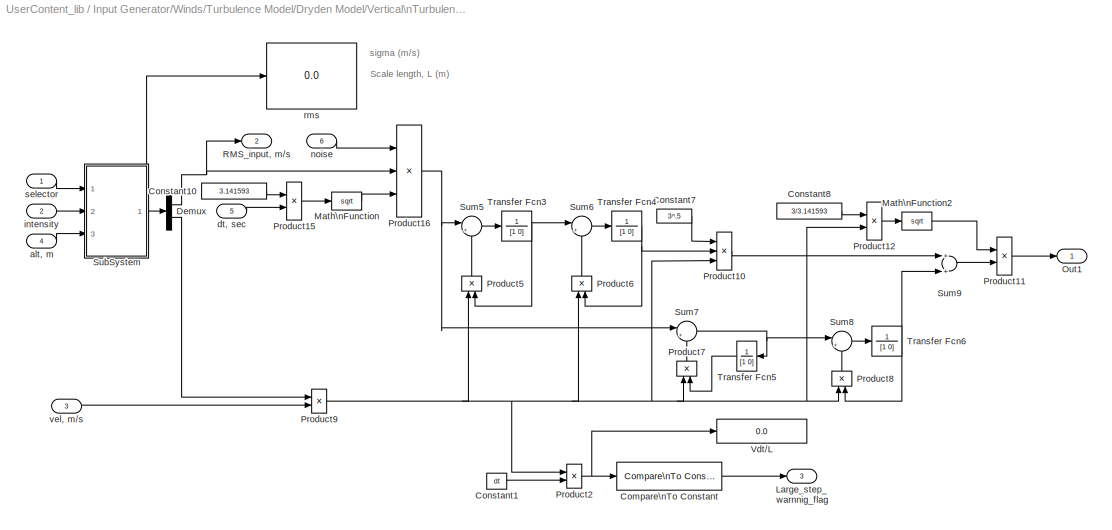
BLOCK [SubSystem] Input Generator/Winds/Turbulence  Model/Dryden Model/Vertical\nTurbulence
  FunctionWithSeparateData = off
  MaskHideContents = off
  MinAlgLoopOccurrences = off
  Opaque = off
  Ports = [6, 3]
  PropExecContextOutsideSubsystem = off
  RTWSystemCode = Auto
  RequestExecContextInheritance = off
  SID = 894
BLOCK [Reference] Input Generator/Winds/Turbulence  Model/Dryden Model/Vertical\nTurbulence/Compare\nTo Constant  REF=simulink/Logic and Bit\nOperations/Compare\nTo Constant
  OutDataTypeStr = uint8
  Ports = [1, 1]
  SID = 901
  SourceBlock = simulink/Logic and Bit\nOperations/Compare\nTo Constant
  SourceType = Compare To Constant
  ZeroCross = off
  const = Step_warning_pct
  relop = >
BLOCK [Constant] Input Generator/Winds/Turbulence  Model/Dryden Model/Vertical\nTurbulence/Constant1
  SID = 902
  Value = dt
BLOCK [Constant] Input Generator/Winds/Turbulence  Model/Dryden Model/Vertical\nTurbulence/Constant10
  SID = 903
  Value = 3.141593
BLOCK [Constant] Input Generator/Winds/Turbulence  Model/Dryden Model/Vertical\nTurbulence/Constant7
  SID = 904
  Value = 3^.5
BLOCK [Constant] Input Generator/Winds/Turbulence  Model/Dryden Model/Vertical\nTurbulence/Constant8
  SID = 905
  Value = 3/3.141593
BLOCK [Demux] Input Generator/Winds/Turbulence  Model/Dryden Model/Vertical\nTurbulence/Demux
  Outputs = 2
  Ports = [1, 2]
  SID = 906
BLOCK [Outport] Input Generator/Winds/Turbulence  Model/Dryden Model/Vertical\nTurbulence/Large_step_warnnig_flag
  IconDisplay = Port number
  Port = 3
  SID = 985
BLOCK [Math] Input Generator/Winds/Turbulence  Model/Dryden Model/Vertical\nTurbulence/Math\nFunction
  Operator = sqrt
  Ports = [1, 1]
  SID = 907
BLOCK [Math] Input Generator/Winds/Turbulence  Model/Dryden Model/Vertical\nTurbulence/Math\nFunction2
  Operator = sqrt
  Ports = [1, 1]
  SID = 908
BLOCK [Outport] Input Generator/Winds/Turbulence  Model/Dryden Model/Vertical\nTurbulence/Out1
  IconDisplay = Port number
  SID = 983
BLOCK [Product] Input Generator/Winds/Turbulence  Model/Dryden Model/Vertical\nTurbulence/Product10
  Inputs = /**
  Ports = [3, 1]
  RndMeth = Floor
  SID = 909
BLOCK [Product] Input Generator/Winds/Turbulence  Model/Dryden Model/Vertical\nTurbulence/Product11
  Inputs = **
  Ports = [2, 1]
  RndMeth = Floor
  SID = 910
BLOCK [Product] Input Generator/Winds/Turbulence  Model/Dryden Model/Vertical\nTurbulence/Product12
  Inputs = **
  Ports = [2, 1]
  RndMeth = Floor
  SID = 911
BLOCK [Product] Input Generator/Winds/Turbulence  Model/Dryden Model/Vertical\nTurbulence/Product15
  Inputs = */
  Ports = [2, 1]
  RndMeth = Floor
  SID = 912
BLOCK [Product] Input Generator/Winds/Turbulence  Model/Dryden Model/Vertical\nTurbulence/Product16
  Inputs = ***
  Ports = [3, 1]
  RndMeth = Floor
  SID = 913
BLOCK [Product] Input Generator/Winds/Turbulence  Model/Dryden Model/Vertical\nTurbulence/Product2
  Ports = [2, 1]
  RndMeth = Floor
  SID = 914
BLOCK [Product] Input Generator/Winds/Turbulence  Model/Dryden Model/Vertical\nTurbulence/Product5
  Ports = [2, 1]
  RndMeth = Floor
  SID = 915
BLOCK [Product] Input Generator/Winds/Turbulence  Model/Dryden Model/Vertical\nTurbulence/Product6
  Ports = [2, 1]
  RndMeth = Floor
  SID = 916
BLOCK [Product] Input Generator/Winds/Turbulence  Model/Dryden Model/Vertical\nTurbulence/Product7
  Ports = [2, 1]
  RndMeth = Floor
  SID = 917
BLOCK [Product] Input Generator/Winds/Turbulence  Model/Dryden Model/Vertical\nTurbulence/Product8
  Ports = [2, 1]
  RndMeth = Floor
  SID = 918
BLOCK [Product] Input Generator/Winds/Turbulence  Model/Dryden Model/Vertical\nTurbulence/Product9
  Inputs = /*
  Ports = [2, 1]
  RndMeth = Floor
  SID = 919
BLOCK [Outport] Input Generator/Winds/Turbulence  Model/Dryden Model/Vertical\nTurbulence/RMS_input, m//s
  IconDisplay = Port number
  Port = 2
  SID = 984
BLOCK [SubSystem] Input Generator/Winds/Turbulence  Model/Dryden Model/Vertical\nTurbulence/SubSystem
  FunctionWithSeparateData = off
  MaskHideContents = off
  MinAlgLoopOccurrences = off
  Opaque = off
  Ports = [3, 1]
  PropExecContextOutsideSubsystem = off
  RTWSystemCode = Auto
  RequestExecContextInheritance = off
  SID = 920
BLOCK [Fcn] Input Generator/Winds/Turbulence  Model/Dryden Model/Vertical\nTurbulence/SubSystem/L^.333
  Expr = u(1)^(1/3)
  SID = 924
BLOCK [Fcn] Input Generator/Winds/Turbulence  Model/Dryden Model/Vertical\nTurbulence/SubSystem/L^.334
  Expr = u(1)^(1/3)
  SID = 925
BLOCK [Scope] Input Generator/Winds/Turbulence  Model/Dryden Model/Vertical\nTurbulence/SubSystem/Lw
  DataFormat = StructureWithTime
  Floating = off
  NumInputPorts = 1
  Ports = [1]
  SID = 926
BLOCK [SubSystem] Input Generator/Winds/Turbulence  Model/Dryden Model/Vertical\nTurbulence/SubSystem/MIL-STD-1797A\nAPPENDIX A 
  FunctionWithSeparateData = off
  MaskHideContents = off
  MinAlgLoopOccurrences = off
  Opaque = off
  Ports = [2, 2]
  PropExecContextOutsideSubsystem = off
  RTWSystemCode = Auto
  RequestExecContextInheritance = off
  SID = 927
BLOCK [Gain] Input Generator/Winds/Turbulence  Model/Dryden Model/Vertical\nTurbulence/SubSystem/MIL-STD-1797A\nAPPENDIX A /0.1*mean wind, fps\nsigma w = to 2.5f//s * intensity\nFig 263, pg 654
  Gain = 2.5
  SID = 930
BLOCK [Constant] Input Generator/Winds/Turbulence  Model/Dryden Model/Vertical\nTurbulence/SubSystem/MIL-STD-1797A\nAPPENDIX A /1
  SID = 931
  Value = 500
BLOCK [Constant] Input Generator/Winds/Turbulence  Model/Dryden Model/Vertical\nTurbulence/SubSystem/MIL-STD-1797A\nAPPENDIX A /2
  SID = 932
  Value = .15
BLOCK [Demux] Input Generator/Winds/Turbulence  Model/Dryden Model/Vertical\nTurbulence/SubSystem/MIL-STD-1797A\nAPPENDIX A /Demux
  Outputs = 2
  Ports = [1, 2]
  SID = 933
BLOCK [Fcn] Input Generator/Winds/Turbulence  Model/Dryden Model/Vertical\nTurbulence/SubSystem/MIL-STD-1797A\nAPPENDIX A /L w = min(500, alt//2)
  Expr = u(1)/2
  SID = 934
BLOCK [Lookup] Input Generator/Winds/Turbulence  Model/Dryden Model/Vertical\nTurbulence/SubSystem/MIL-STD-1797A\nAPPENDIX A /Light sigma, f//s
  InputValues = [2000 9000 18000 100000]
  SID = 935
  Table = [5 5 3 3]
BLOCK [MinMax] Input Generator/Winds/Turbulence  Model/Dryden Model/Vertical\nTurbulence/SubSystem/MIL-STD-1797A\nAPPENDIX A /MinMax
  Function = min
  Inputs = 2
  Ports = [2, 1]
  SID = 936
BLOCK [MinMax] Input Generator/Winds/Turbulence  Model/Dryden Model/Vertical\nTurbulence/SubSystem/MIL-STD-1797A\nAPPENDIX A /MinMax1
  Function = max
  Inputs = 2
  Ports = [2, 1]
  SID = 937
BLOCK [MultiPortSwitch] Input Generator/Winds/Turbulence  Model/Dryden Model/Vertical\nTurbulence/SubSystem/MIL-STD-1797A\nAPPENDIX A /Multiport\nSwitch
  Ports = [4, 1]
  SID = 938
  zeroidx = off
BLOCK [Mux] Input Generator/Winds/Turbulence  Model/Dryden Model/Vertical\nTurbulence/SubSystem/MIL-STD-1797A\nAPPENDIX A /Mux
  DisplayOption = bar
  Inputs = 2
  Ports = [2, 1]
  SID = 939
BLOCK [Mux] Input Generator/Winds/Turbulence  Model/Dryden Model/Vertical\nTurbulence/SubSystem/MIL-STD-1797A\nAPPENDIX A /Mux1
  DisplayOption = bar
  Inputs = 2
  Ports = [2, 1]
  SID = 940
BLOCK [Product] Input Generator/Winds/Turbulence  Model/Dryden Model/Vertical\nTurbulence/SubSystem/MIL-STD-1797A\nAPPENDIX A /Product
  Ports = [2, 1]
  RndMeth = Floor
  SID = 941
BLOCK [Constant] Input Generator/Winds/Turbulence  Model/Dryden Model/Vertical\nTurbulence/SubSystem/MIL-STD-1797A\nAPPENDIX A /Scale Length, ft
  SID = 942
  Value = 1750/2
BLOCK [Fcn] Input Generator/Winds/Turbulence  Model/Dryden Model/Vertical\nTurbulence/SubSystem/MIL-STD-1797A\nAPPENDIX A /Ux // U20
  Expr = ln(u(1)/.15)/ln(20/.15)
  SID = 943
BLOCK [Switch] Input Generator/Winds/Turbulence  Model/Dryden Model/Vertical\nTurbulence/SubSystem/MIL-STD-1797A\nAPPENDIX A /alt >2000 ft
  SID = 944
  Threshold = 2000
BLOCK [Inport] Input Generator/Winds/Turbulence  Model/Dryden Model/Vertical\nTurbulence/SubSystem/MIL-STD-1797A\nAPPENDIX A /alt, m
  IconDisplay = Port number
  SID = 928
BLOCK [Gain] Input Generator/Winds/Turbulence  Model/Dryden Model/Vertical\nTurbulence/SubSystem/MIL-STD-1797A\nAPPENDIX A /ft -> m
  Gain = .3048
  SID = 945
BLOCK [Inport] Input Generator/Winds/Turbulence  Model/Dryden Model/Vertical\nTurbulence/SubSystem/MIL-STD-1797A\nAPPENDIX A /intensity
  IconDisplay = Port number
  Port = 2
  SID = 929
BLOCK [Gain] Input Generator/Winds/Turbulence  Model/Dryden Model/Vertical\nTurbulence/SubSystem/MIL-STD-1797A\nAPPENDIX A /m -> ft
  Gain = 1/.3048
  SID = 946
BLOCK [Lookup] Input Generator/Winds/Turbulence  Model/Dryden Model/Vertical\nTurbulence/SubSystem/MIL-STD-1797A\nAPPENDIX A /moderate sigma, f//s
  InputValues = [2000 12000 44000 100000]
  SID = 947
  Table = [10 10 3 3]
BLOCK [Outport] Input Generator/Winds/Turbulence  Model/Dryden Model/Vertical\nTurbulence/SubSystem/MIL-STD-1797A\nAPPENDIX A /scale length, m
  IconDisplay = Port number
  Port = 2
  SID = 950
BLOCK [Lookup] Input Generator/Winds/Turbulence  Model/Dryden Model/Vertical\nTurbulence/SubSystem/MIL-STD-1797A\nAPPENDIX A /severe sigma, f//s
  InputValues = [2000 5000 22000 80000 100000]
  SID = 948
  Table = [15.5 21.5 21.5 3 3]
BLOCK [Outport] Input Generator/Winds/Turbulence  Model/Dryden Model/Vertical\nTurbulence/SubSystem/MIL-STD-1797A\nAPPENDIX A /sigma, m//s
  IconDisplay = Port number
  SID = 949
BLOCK [MultiPortSwitch] Input Generator/Winds/Turbulence  Model/Dryden Model/Vertical\nTurbulence/SubSystem/Multiport\nSwitch
  Inputs = 2
  Ports = [3, 1]
  SID = 951
  zeroidx = off
BLOCK [Mux] Input Generator/Winds/Turbulence  Model/Dryden Model/Vertical\nTurbulence/SubSystem/Mux
  DisplayOption = bar
  Inputs = 2
  Ports = [2, 1]
  SID = 952
BLOCK [Mux] Input Generator/Winds/Turbulence  Model/Dryden Model/Vertical\nTurbulence/SubSystem/Mux1
  DisplayOption = bar
  Inputs = 2
  Ports = [2, 1]
  SID = 953
BLOCK [Mux] Input Generator/Winds/Turbulence  Model/Dryden Model/Vertical\nTurbulence/SubSystem/Mux2
  DisplayOption = bar
  Inputs = 2
  Ports = [2, 1]
  SID = 954
BLOCK [Mux] Input Generator/Winds/Turbulence  Model/Dryden Model/Vertical\nTurbulence/SubSystem/Mux3
  DisplayOption = bar
  Inputs = 2
  Ports = [2, 1]
  SID = 955
BLOCK [Mux] Input Generator/Winds/Turbulence  Model/Dryden Model/Vertical\nTurbulence/SubSystem/Mux4
  DisplayOption = bar
  Inputs = 2
  Ports = [2, 1]
  SID = 956
BLOCK [Outport] Input Generator/Winds/Turbulence  Model/Dryden Model/Vertical\nTurbulence/SubSystem/Out1
  IconDisplay = Port number
  SID = 971
BLOCK [Product] Input Generator/Winds/Turbulence  Model/Dryden Model/Vertical\nTurbulence/SubSystem/Product1
  Inputs = */
  Ports = [2, 1]
  RndMeth = Floor
  SID = 957
BLOCK [Product] Input Generator/Winds/Turbulence  Model/Dryden Model/Vertical\nTurbulence/SubSystem/Product2
  Inputs = */
  Ports = [2, 1]
  RndMeth = Floor
  SID = 958
BLOCK [SubSystem] Input Generator/Winds/Turbulence  Model/Dryden Model/Vertical\nTurbulence/SubSystem/Tm-4511 severe data
  FunctionWithSeparateData = off
  MaskHideContents = off
  MinAlgLoopOccurrences = off
  Opaque = off
  Ports = [2, 2]
  PropExecContextOutsideSubsystem = off
  RTWSystemCode = Auto
  RequestExecContextInheritance = off
  SID = 959
BLOCK [MultiPortSwitch] Input Generator/Winds/Turbulence  Model/Dryden Model/Vertical\nTurbulence/SubSystem/Tm-4511 severe data/Multiport\nSwitch
  Ports = [4, 1]
  SID = 962
  zeroidx = off
BLOCK [Lookup] Input Generator/Winds/Turbulence  Model/Dryden Model/Vertical\nTurbulence/SubSystem/Tm-4511 severe data/Vertical \nScale, m\nTM-4511\nTable 2-79
  InputValues = [0 10 20 30 40 50 60 70 80 90 100 200 304.8 305 762 769 900 1000 2000 4000 6000 8000 10000 12000 14000 16000]
  SID = 965
  Table = [ 5 5 11 17 23 29 35 41 47 53 59 123 192 300 300 533 533 624 831 972 1010 980 1100 1540 2120 2600]
BLOCK [Lookup] Input Generator/Winds/Turbulence  Model/Dryden Model/Vertical\nTurbulence/SubSystem/Tm-4511 severe data/Vertical \nsigma, m//s\nsevere\nTM-4511\nTable 2-79
  InputValues = [10 20 30 40 50 60 70 80 90 100 200 304.8 305 762 769 900 1000 2000 4000 6000 8000 10000 12000 14000 16000]
  SID = 966
  Table = [1.15 1.46 1.71 1.89 2.05 2.19 2.32 2.43 2.54 2.64 3.38 3.95 4.39 4.39 5.7 5.7 4.67 4.75 5.13 5.69 5.98 6 5.71 5.05 4.31]
BLOCK [Lookup] Input Generator/Winds/Turbulence  Model/Dryden Model/Vertical\nTurbulence/SubSystem/Tm-4511 severe data/Vertical\nsigma, m//s\nlight\nTM-4511\nTable 2-79
  InputValues = [10 20 30 40 50 60 70 80 90 100 200 304.8 305 400  762 769 1000 2000 4000 6000 8000 10000 12000 14000 16000]
  SID = 963
  Table = [0   0   0   0   0   0   0   0   0    0    0    0   0   0   0   0   .14  .14  .17   .17   .17   .17   .18   .19   .21   ]
BLOCK [Lookup] Input Generator/Winds/Turbulence  Model/Dryden Model/Vertical\nTurbulence/SubSystem/Tm-4511 severe data/Vertical\nsigma, m//s\nmoderate\nTM-4511\nTable 2-79
  InputValues = [10 20 30 40 50 60 70 80 90 100 200 304.8 305 400  762 769 1000 2000 4000 6000 8000 10000 12000 14000 16000]
  SID = 964
  Table = [0   0  0    0    0   0  0  0   0   0     0    0      0     0      0    0  1.36  1.43 1.68 1.69 1.695 1.73 1.79 1.91 2.1]
BLOCK [Inport] Input Generator/Winds/Turbulence  Model/Dryden Model/Vertical\nTurbulence/SubSystem/Tm-4511 severe data/alt, m
  IconDisplay = Port number
  SID = 960
BLOCK [Inport] Input Generator/Winds/Turbulence  Model/Dryden Model/Vertical\nTurbulence/SubSystem/Tm-4511 severe data/intensity
  IconDisplay = Port number
  Port = 2
  SID = 961
BLOCK [Outport] Input Generator/Winds/Turbulence  Model/Dryden Model/Vertical\nTurbulence/SubSystem/Tm-4511 severe data/scale length, m
  IconDisplay = Port number
  Port = 2
  SID = 968
BLOCK [Outport] Input Generator/Winds/Turbulence  Model/Dryden Model/Vertical\nTurbulence/SubSystem/Tm-4511 severe data/sigma, m//s
  IconDisplay = Port number
  SID = 967
BLOCK [Inport] Input Generator/Winds/Turbulence  Model/Dryden Model/Vertical\nTurbulence/SubSystem/alt, m
  IconDisplay = Port number
  Port = 3
  SID = 923
BLOCK [Inport] Input Generator/Winds/Turbulence  Model/Dryden Model/Vertical\nTurbulence/SubSystem/intensity 
  IconDisplay = Port number
  Port = 2
  SID = 922
BLOCK [Inport] Input Generator/Winds/Turbulence  Model/Dryden Model/Vertical\nTurbulence/SubSystem/selector
  IconDisplay = Port number
  SID = 921
BLOCK [Scope] Input Generator/Winds/Turbulence  Model/Dryden Model/Vertical\nTurbulence/SubSystem/sigma // Lw^.333
  DataFormat = StructureWithTime
  Floating = off
  NumInputPorts = 1
  Ports = [1]
  SID = 969
  ZoomMode = yonly
BLOCK [Scope] Input Generator/Winds/Turbulence  Model/Dryden Model/Vertical\nTurbulence/SubSystem/sigma w
  DataFormat = StructureWithTime
  Floating = off
  NumInputPorts = 1
  Ports = [1]
  SID = 970
  YMax = 5.75
  YMin = 0.75
BLOCK [Sum] Input Generator/Winds/Turbulence  Model/Dryden Model/Vertical\nTurbulence/Sum5
  IconShape = round
  Inputs = |+-
  Ports = [2, 1]
  SID = 972
BLOCK [Sum] Input Generator/Winds/Turbulence  Model/Dryden Model/Vertical\nTurbulence/Sum6
  IconShape = round
  Inputs = |+-
  Ports = [2, 1]
  SID = 973
BLOCK [Sum] Input Generator/Winds/Turbulence  Model/Dryden Model/Vertical\nTurbulence/Sum7
  IconShape = round
  Inputs = |+-
  Ports = [2, 1]
  SID = 974
BLOCK [Sum] Input Generator/Winds/Turbulence  Model/Dryden Model/Vertical\nTurbulence/Sum8
  IconShape = round
  Inputs = |+-
  Ports = [2, 1]
  SID = 975
BLOCK [Sum] Input Generator/Winds/Turbulence  Model/Dryden Model/Vertical\nTurbulence/Sum9
  Inputs = 2
  Ports = [2, 1]
  SID = 976
BLOCK [TransferFcn] Input Generator/Winds/Turbulence  Model/Dryden Model/Vertical\nTurbulence/Transfer Fcn3
  Denominator = [1 0]
  Numerator = 1
  SID = 977
BLOCK [TransferFcn] Input Generator/Winds/Turbulence  Model/Dryden Model/Vertical\nTurbulence/Transfer Fcn4
  Denominator = [1 0]
  Numerator = 1
  SID = 978
BLOCK [TransferFcn] Input Generator/Winds/Turbulence  Model/Dryden Model/Vertical\nTurbulence/Transfer Fcn5
  Denominator = [1 0]
  Numerator = 1
  SID = 979
BLOCK [TransferFcn] Input Generator/Winds/Turbulence  Model/Dryden Model/Vertical\nTurbulence/Transfer Fcn6
  Denominator = [1 0]
  Numerator = 1
  SID = 980
BLOCK [Display] Input Generator/Winds/Turbulence  Model/Dryden Model/Vertical\nTurbulence/Vdt//L
  Decimation = 1
  Lockdown = off
  Ports = [1]
  SID = 981
BLOCK [Inport] Input Generator/Winds/Turbulence  Model/Dryden Model/Vertical\nTurbulence/alt, m
  IconDisplay = Port number
  Port = 4
  SID = 898
BLOCK [Inport] Input Generator/Winds/Turbulence  Model/Dryden Model/Vertical\nTurbulence/dt, sec
  IconDisplay = Port number
  Port = 5
  SID = 899
BLOCK [Inport] Input Generator/Winds/Turbulence  Model/Dryden Model/Vertical\nTurbulence/intensity
  IconDisplay = Port number
  Port = 2
  SID = 896
BLOCK [Inport] Input Generator/Winds/Turbulence  Model/Dryden Model/Vertical\nTurbulence/noise
  IconDisplay = Port number
  Port = 6
  SID = 900
BLOCK [Display] Input Generator/Winds/Turbulence  Model/Dryden Model/Vertical\nTurbulence/rms
  Decimation = 1
  Lockdown = off
  Ports = [1]
  SID = 982
BLOCK [Inport] Input Generator/Winds/Turbulence  Model/Dryden Model/Vertical\nTurbulence/selector
  IconDisplay = Port number
  SID = 895
BLOCK [Inport] Input Generator/Winds/Turbulence  Model/Dryden Model/Vertical\nTurbulence/vel, m//s
  IconDisplay = Port number
  Port = 3
  SID = 897
BLOCK [Inport] Input Generator/Winds/Turbulence  Model/Dryden Model/alt, m
  IconDisplay = Port number
  Port = 2
  SID = 640
BLOCK [Display] Input Generator/Winds/Turbulence  Model/Dryden Model/avg1
  Decimation = 1
  Lockdown = off
  Ports = [1]
  SID = 986
BLOCK [Display] Input Generator/Winds/Turbulence  Model/Dryden Model/avg2
  Decimation = 1
  Lockdown = off
  Ports = [1]
  SID = 987
BLOCK [Display] Input Generator/Winds/Turbulence  Model/Dryden Model/avg3
  Decimation = 1
  Lockdown = off
  Ports = [1]
  SID = 988
BLOCK [Display] Input Generator/Winds/Turbulence  Model/Dryden Model/rms1
  Decimation = 1
  Lockdown = off
  Ports = [1]
  SID = 989
BLOCK [Display] Input Generator/Winds/Turbulence  Model/Dryden Model/rms2
  Decimation = 1
  Lockdown = off
  Ports = [1]
  SID = 990
BLOCK [Display] Input Generator/Winds/Turbulence  Model/Dryden Model/rms3
  Decimation = 1
  Lockdown = off
  Ports = [1]
  SID = 991
BLOCK [Outport] Input Generator/Winds/Turbulence  Model/Dryden Model/u_gust, m//s
  IconDisplay = Port number
  InitialOutput = 0
  OutputWhenDisabled = reset
  SID = 992
BLOCK [Outport] Input Generator/Winds/Turbulence  Model/Dryden Model/v_gust, m//s
  IconDisplay = Port number
  InitialOutput = 0
  OutputWhenDisabled = reset
  Port = 2
  SID = 993
BLOCK [Inport] Input Generator/Winds/Turbulence  Model/Dryden Model/vel, m//s
  IconDisplay = Port number
  SID = 639
BLOCK [Outport] Input Generator/Winds/Turbulence  Model/Dryden Model/w_gust, m//s
  IconDisplay = Port number
  InitialOutput = 0
  OutputWhenDisabled = reset
  Port = 3
  SID = 994
BLOCK [Constant] Input Generator/Winds/Turbulence  Model/Intensity
  SID = 996
  Value = 3
BLOCK [MinMax] Input Generator/Winds/Turbulence  Model/MinMax
  Function = max
  InputSameDT = off
  Inputs = 2
  Ports = [2, 1]
  SID = 997
  SaturateOnIntegerOverflow = off
BLOCK [MinMax] Input Generator/Winds/Turbulence  Model/MinMax1
  Function = max
  InputSameDT = off
  Inputs = 2
  Ports = [2, 1]
  SID = 998
  SaturateOnIntegerOverflow = off
BLOCK [Constant] Input Generator/Winds/Turbulence  Model/Minimum Alt
  SID = 999
  Value = 0.01
BLOCK [Constant] Input Generator/Winds/Turbulence  Model/Minimum TAS
  SID = 1000
  Value = 0.01
BLOCK [Mux] Input Generator/Winds/Turbulence  Model/Mux
  DisplayOption = bar
  Inputs = 3
  Ports = [3, 1]
  SID = 1001
BLOCK [Mux] Input Generator/Winds/Turbulence  Model/Mux1
  DisplayOption = bar
  Inputs = 2
  Ports = [2, 1]
  SID = 1002
BLOCK [Constant] Input Generator/Winds/Turbulence  Model/Selector
  SID = 1003
BLOCK [Inport] Input Generator/Winds/Turbulence  Model/Switch
  IconDisplay = Port number
  Port = 3
  SID = 634
BLOCK [Inport] Input Generator/Winds/Turbulence  Model/alt(ft)
  IconDisplay = Port number
  Port = 2
  SID = 633
BLOCK [Gain] Input Generator/Winds/Turbulence  Model/ft to m
  Gain = 0.3048
  OutDataTypeStr = Inherit: Inherit via internal rule
  ParamDataTypeStr = Inherit: Inherit via internal rule
  SID = 1004
  SaturateOnIntegerOverflow = off
BLOCK [Gain] Input Generator/Winds/Turbulence  Model/kts to m//s
  Gain = 0.514444444
  OutDataTypeStr = Inherit: Inherit via internal rule
  ParamDataTypeStr = Inherit: Inherit via internal rule
  SID = 1005
  SaturateOnIntegerOverflow = off
BLOCK [Gain] Input Generator/Winds/Turbulence  Model/m//s to ft//s
  Gain = 3.2808399
  OutDataTypeStr = Inherit: Inherit via internal rule
  ParamDataTypeStr = Inherit: Inherit via internal rule
  SID = 1006
  SaturateOnIntegerOverflow = off
BLOCK [Inport] Input Generator/Winds/Turbulence  Model/tas(knots)
  IconDisplay = Port number
  SID = 632
BLOCK [Outport] Input Generator/Winds/Turbulence  Model/u_gust(fps)
  IconDisplay = Port number
  SID = 1007
BLOCK [Outport] Input Generator/Winds/Turbulence  Model/v_gust(fps)
  IconDisplay = Port number
  Port = 2
  SID = 1008
BLOCK [Outport] Input Generator/Winds/Turbulence  Model/w_gust(fps)
  IconDisplay = Port number
  Port = 3
  SID = 1009
BLOCK [Constant] Input Generator/Winds/Turbulence Level
  SID = 1010
  Value = level
BLOCK [Constant] Input Generator/Winds/VerticalWind
  SID = 1011
  Value = 0
BLOCK [Constant] Input Generator/Winds/WindDir\n(True, deg)
  SID = 1012
  Value = WindDir
BLOCK [Constant] Input Generator/Winds/WindSpd (kts)
  SID = 1013
  Value = WindSpd
BLOCK [Outport] Input Generator/Winds/Winds
  IconDisplay = Port number
  SID = 1015
BLOCK [Inport] Input Generator/Winds/alt(ft)
  IconDisplay = Port number
  Port = 2
  SID = 610
BLOCK [Gain] Input Generator/Winds/d2r
  Gain = pi/180
  SID = 1014
BLOCK [Inport] Input Generator/Winds/tas(knots)
  IconDisplay = Port number
  SID = 609
BLOCK [Outport] Input Generator/cmds
  IconDisplay = Port number
  SID = 1016
BLOCK [Outport] Input Generator/winds
  IconDisplay = Port number
  Port = 2
  SID = 1017
BLOCK [Reference] Model Info  REF=simulink/Model-Wide\nUtilities/Model Info
  BlockCM = None
  DisplayStringWithTags = - gtm_design Input Library -\n\nModel Version: %<ModelVersion>\nLast modifed by %<LastModifiedBy> on %<LastModificationDate>
  Frame = on
  HorizontalTextAlignment = Center
  InitialBlockCM = None
  LeftAlignmentValue = 0.5
  MaskDisplayString = - gtm_design Input Library -\\n\\nModel Version: $LastChangedRevision: 4702 $\\nLast modifed by decox on 07-Mar-2013 11:09:53
  Ports = []
  SID = 471
  SourceBlock = simulink/Model-Wide\nUtilities/Model Info
  SourceBlockDiagram = UserContent_lib
  SourceType = CMBlock
  TagMaxNumber = 20
BLOCK [SubSystem] X-Plane
  FunctionWithSeparateData = off
  MaskHideContents = off
  MinAlgLoopOccurrences = off
  Opaque = off
  Ports = [1, 2]
  PropExecContextOutsideSubsystem = off
  RTWSystemCode = Auto
  RequestExecContextInheritance = off
  SID = 472
BLOCK [BusCreator] X-Plane/Bus\nCreator
  DisplayOption = bar
  Inputs = 21
  Ports = [21, 1]
  SID = 474
BLOCK [Constant] X-Plane/Constant1
  SID = 475
  Value = 0
BLOCK [Constant] X-Plane/Constant2
  SID = 476
  Value = 0
BLOCK [Display] X-Plane/Display
  Decimation = 1
  Lockdown = off
  Ports = [1]
  SID = 477
BLOCK [Inport] X-Plane/Feedback
  IconDisplay = Port number
  SID = 473
BLOCK [Gain] X-Plane/Gain1
  Gain = -1
  SID = 478
BLOCK [Gain] X-Plane/Gain10
  SID = 479
BLOCK [Gain] X-Plane/Gain11
  SID = 480
BLOCK [Gain] X-Plane/Gain12
  SID = 481
BLOCK [Gain] X-Plane/Gain13
  SID = 482
BLOCK [Gain] X-Plane/Gain14
  SID = 483
BLOCK [Gain] X-Plane/Gain15
  SID = 484
BLOCK [Gain] X-Plane/Gain16
  SID = 485
BLOCK [Gain] X-Plane/Gain17
  SID = 486
BLOCK [Gain] X-Plane/Gain18
  SID = 487
BLOCK [Gain] X-Plane/Gain19
  SID = 488
BLOCK [Gain] X-Plane/Gain2
  SID = 489
BLOCK [Gain] X-Plane/Gain20
  SID = 490
BLOCK [Gain] X-Plane/Gain21
  SID = 491
BLOCK [Gain] X-Plane/Gain3
  SID = 492
BLOCK [Gain] X-Plane/Gain4
  SID = 493
BLOCK [Gain] X-Plane/Gain5
  SID = 494
BLOCK [Gain] X-Plane/Gain6
  SID = 495
BLOCK [Gain] X-Plane/Gain7
  SID = 496
BLOCK [Gain] X-Plane/Gain8
  SID = 497
BLOCK [Gain] X-Plane/Gain9
  SID = 498
BLOCK [Constant] X-Plane/Gear
  SID = 499
  Value = bias.geardown
BLOCK [Lookup] X-Plane/Left Roll Spoiler Schedule
  InputValues = [-20	-11.76	-2.36	0	2.36	11.76	20	]\n
  LookUpMeth = Interpolation-Use End Values
  SID = 500
  SaturateOnIntegerOverflow = off
  Table = [0 0 0 0 0 9 45]
BLOCK [SubSystem] X-Plane/Nominal Scaling\nLogitech Extreme 3DPro
  FunctionWithSeparateData = off
  MaskHideContents = off
  MinAlgLoopOccurrences = off
  Opaque = off
  Ports = [1, 4]
  PropExecContextOutsideSubsystem = off
  RTWSystemCode = Auto
  RequestExecContextInheritance = off
  SID = 501
BLOCK [Bias] X-Plane/Nominal Scaling\nLogitech Extreme 3DPro/Bias
  Bias = [-1 -.5 -.5 -.5]
  SID = 503
  SaturateOnIntegerOverflow = off
BLOCK [Clock] X-Plane/Nominal Scaling\nLogitech Extreme 3DPro/Clock
  SID = 504
BLOCK [Constant] X-Plane/Nominal Scaling\nLogitech Extreme 3DPro/Constant
  SID = 505
  Value = zeros(4,1)
BLOCK [Demux] X-Plane/Nominal Scaling\nLogitech Extreme 3DPro/Demux
  DisplayOption = bar
  Outputs = [4 -1]
  Ports = [1, 2]
  SID = 506
BLOCK [Demux] X-Plane/Nominal Scaling\nLogitech Extreme 3DPro/Demux1
  DisplayOption = bar
  Ports = [1, 4]
  SID = 507
BLOCK [Gain] X-Plane/Nominal Scaling\nLogitech Extreme 3DPro/Gain
  Gain = [-100 -15 -15 -15]
  OutDataTypeStr = Inherit: Inherit via internal rule
  ParamDataTypeStr = Inherit: Inherit via internal rule
  SID = 508
  SaturateOnIntegerOverflow = off
BLOCK [Switch] X-Plane/Nominal Scaling\nLogitech Extreme 3DPro/InitiallSupress\nStick\nToAllowTrim
  InputSameDT = off
  SID = 509
  SaturateOnIntegerOverflow = off
  Threshold = 0.25
BLOCK [Memory] X-Plane/Nominal Scaling\nLogitech Extreme 3DPro/Memory
  SID = 510
  X0 = zeros(16,1)
BLOCK [Inport] X-Plane/Nominal Scaling\nLogitech Extreme 3DPro/RawStick
  IconDisplay = Port number
  SID = 502
BLOCK [Selector] X-Plane/Nominal Scaling\nLogitech Extreme 3DPro/Selector
  IndexOptions = Index vector (dialog)
  Indices = [4 2 1 3]
  InputPortWidth = 4
  OutputSizes = 1
  Ports = [1, 1]
  SID = 511
BLOCK [Terminator] X-Plane/Nominal Scaling\nLogitech Extreme 3DPro/Terminator3
  SID = 512
BLOCK [Outport] X-Plane/Nominal Scaling\nLogitech Extreme 3DPro/aileron
  IconDisplay = Port number
  Port = 3
  SID = 515
BLOCK [Outport] X-Plane/Nominal Scaling\nLogitech Extreme 3DPro/elevator
  IconDisplay = Port number
  Port = 2
  SID = 514
BLOCK [Outport] X-Plane/Nominal Scaling\nLogitech Extreme 3DPro/rudder
  IconDisplay = Port number
  Port = 4
  SID = 516
BLOCK [Outport] X-Plane/Nominal Scaling\nLogitech Extreme 3DPro/throttle
  IconDisplay = Port number
  SID = 513
BLOCK [SubSystem] X-Plane/RealTimeSpeed
  FunctionWithSeparateData = off
  MaskHideContents = off
  MinAlgLoopOccurrences = off
  Opaque = off
  Ports = [0, 1]
  PropExecContextOutsideSubsystem = off
  RTWSystemCode = Auto
  RequestExecContextInheritance = off
  SID = 1018
BLOCK [Clock] X-Plane/RealTimeSpeed/Clock
  SID = 1019
BLOCK [Demux] X-Plane/RealTimeSpeed/Demux
  DisplayOption = bar
  Outputs = 2
  Ports = [1, 2]
  SID = 1020
BLOCK [Mux] X-Plane/RealTimeSpeed/Mux
  DisplayOption = bar
  Inputs = 2
  Ports = [2, 1]
  SID = 1021
BLOCK [S-Function] X-Plane/RealTimeSpeed/S-Function
  EnableBusSupport = off
  FunctionName = RT_mex
  Ports = [1, 1]
  SID = 1022
BLOCK [Sum] X-Plane/RealTimeSpeed/Subtract
  InputSameDT = off
  Inputs = +-
  OutDataTypeStr = Inherit: Inherit via internal rule
  Ports = [2, 1]
  SID = 1023
  SaturateOnIntegerOverflow = off
BLOCK [Outport] X-Plane/RealTimeSpeed/t,lag
  IconDisplay = Port number
  SID = 1024
BLOCK [Lookup] X-Plane/Right Roll Spoiler Schedule
  InputValues = [-20	-11.76	-2.36	0	2.36	11.76	20	]\n
  LookUpMeth = Interpolation-Use End Values
  SID = 518
  SaturateOnIntegerOverflow = off
  Table = [45 9 0 0 0 0 0]
BLOCK [Saturate] X-Plane/Saturation
  InputPortMap = u0
  LowerLimit = 0
  Ports = [1, 1]
  SID = 519
  UpperLimit = 100
BLOCK [Terminator] X-Plane/Terminator
  SID = 520
BLOCK [Terminator] X-Plane/Terminator2
  SID = 521
BLOCK [SubSystem] X-Plane/Winds
  FunctionWithSeparateData = off
  MaskHideContents = off
  MinAlgLoopOccurrences = off
  Opaque = off
  Ports = [0, 1]
  PropExecContextOutsideSubsystem = off
  RTWSystemCode = Auto
  RequestExecContextInheritance = off
  SID = 522
BLOCK [Gain] X-Plane/Winds/-kts2fps
  Gain = -1.6878
  SID = 523
BLOCK [BusCreator] X-Plane/Winds/Bus\nCreator3
  DisplayOption = bar
  Inputs = 6
  Ports = [6, 1]
  SID = 524
BLOCK [Product] X-Plane/Winds/Product1
  Inputs = **
  Ports = [2, 1]
  RndMeth = Floor
  SID = 525
BLOCK [Product] X-Plane/Winds/Product3
  Inputs = **
  Ports = [2, 1]
  RndMeth = Floor
  SID = 526
BLOCK [Trigonometry] X-Plane/Winds/Trigonometric\nFunction
  Ports = [1, 1]
  SID = 527
BLOCK [Trigonometry] X-Plane/Winds/Trigonometric\nFunction1
  Operator = cos
  Ports = [1, 1]
  SID = 528
BLOCK [Constant] X-Plane/Winds/VerticalWind
  SID = 529
  Value = 0
BLOCK [Constant] X-Plane/Winds/WindDir\n(True, deg)
  SID = 530
  Value = WindDir
BLOCK [Constant] X-Plane/Winds/WindSpd (kts)
  SID = 531
  Value = WindSpd
BLOCK [Outport] X-Plane/Winds/Winds
  IconDisplay = Port number
  SID = 536
BLOCK [Gain] X-Plane/Winds/d2r
  Gain = pi/180
  SID = 532
BLOCK [Constant] X-Plane/Winds/turb_v_body
  SID = 533
  Value = 0
BLOCK [Constant] X-Plane/Winds/turb_v_body1
  SID = 534
  Value = 0
BLOCK [Constant] X-Plane/Winds/turb_w_body
  SID = 535
  Value = 0
BLOCK [SubSystem] X-Plane/X-Plane Connection
  FunctionWithSeparateData = off
  MaskHideContents = off
  MinAlgLoopOccurrences = off
  Opaque = off
  Ports = [0, 2]
  PropExecContextOutsideSubsystem = off
  RTWSystemCode = Auto
  RequestExecContextInheritance = off
  SID = 537
BLOCK [BusToVector] X-Plane/X-Plane Connection/Bus to Vector
  SID = 541
BLOCK [BusToVector] X-Plane/X-Plane Connection/Bus to Vector1
  SID = 542
BLOCK [BusToVector] X-Plane/X-Plane Connection/Bus to Vector2
  SID = 543
BLOCK [BusSelector] X-Plane/X-Plane Connection/Bus\nSelector1
  OutputAsBus = on
  OutputSignals = AILR,ELRIB,RUDU,FLAPRIB,GEAR,BRAKE
  Ports = [1, 1]
  SID = 538
BLOCK [BusSelector] X-Plane/X-Plane Connection/Bus\nSelector5
  OutputAsBus = on
  OutputSignals = latitude,longitude,altitude,phi,theta,psi
  Ports = [1, 1]
  SID = 539
BLOCK [BusSelector] X-Plane/X-Plane Connection/Bus\nSelector6
  OutputAsBus = on
  OutputSignals = alpha,beta,tas
  Ports = [1, 1]
  SID = 540
BLOCK [Outport] X-Plane/X-Plane Connection/Buttons
  IconDisplay = Port number
  Port = 2
  SID = 563
BLOCK [From] X-Plane/X-Plane Connection/From1
  GotoTag = EOM_State
  SID = 544
  TagVisibility = global
BLOCK [From] X-Plane/X-Plane Connection/From2
  GotoTag = SurfacePos
  SID = 545
  TagVisibility = global
BLOCK [From] X-Plane/X-Plane Connection/From4
  GotoTag = AuxVars
  SID = 546
  TagVisibility = global
BLOCK [Outport] X-Plane/X-Plane Connection/Joystick
  IconDisplay = Port number
  SID = 562
BLOCK [SubSystem] X-Plane/X-Plane Connection/Xlink_fcn
  FunctionWithSeparateData = off
  MaskDescription = Input Positions and Surfaces for X-Plane Visualization.\n  Positions - [ Latitude, Longitude, Altitude, Roll, Pitch, Yaw] % degrees and ft.\n  Surfaces  - [ Aileron, Elevator, Rudder, Flaps, Spoiler, GearDown] % deg and 0/1\n\nOutput is Joysick axes and Button pushes.\n  Joystick - First 16 axes\n  Buttons  - 16 buttons as assigned to Xlink in X-Plane\n\n
  MaskEnableString = on
  MaskHideContents = off
  MaskIconFrame = on
  MaskIconOpaque = on
  MaskIconRotate = none
  MaskIconUnits = autoscale
  MaskInitialization = if isempty(HUDCell) HUDCell=cell(6,1); end\nHUDTextArray = uint8(zeros(90,1));\n\n% loop through names, assign to string arrays\nfor i=1:min(length(HUDCell),6);\n  if length(HUDCell{i})>14 HUDCell{i}=HUDCell{i}(1:14); end\n  if length(HUDCell{i}>0),\n    HUDTextArray((i-1)*15+1:(i-1)*15+length(HUDCell{i})) = uint8(HUDCell{i});\n  end\nend\n
  MaskPortRotate = default
  MaskPromptString = Lables for HUD, (cell array)
  MaskStyleString = edit
  MaskToolTipString = on
  MaskTunableValueString = on
  MaskType = Xlink
  MaskValueString = {'alpha','beta','Velocity'}
  MaskVariables = HUDCell=@1;
  MaskVisibilityString = on
  MinAlgLoopOccurrences = off
  Opaque = off
  Ports = [3, 2]
  PropExecContextOutsideSubsystem = off
  RTWSystemCode = Auto
  RequestExecContextInheritance = off
  SID = 547
BLOCK [Outport] X-Plane/X-Plane Connection/Xlink_fcn/Buttons
  IconDisplay = Port number
  Port = 2
  SID = 560
BLOCK [Demux] X-Plane/X-Plane Connection/Xlink_fcn/Demux
  DisplayOption = bar
  Outputs = [6 -1]
  Ports = [1, 2]
  SID = 551
BLOCK [Outport] X-Plane/X-Plane Connection/Xlink_fcn/Joystick
  IconDisplay = Port number
  SID = 559
BLOCK [Constant] X-Plane/X-Plane Connection/Xlink_fcn/Labels
  OutDataTypeStr = uint8
  SID = 552
  Value = HUDTextArray
BLOCK [Mux] X-Plane/X-Plane Connection/Xlink_fcn/Mux
  DisplayOption = bar
  Inputs = 2
  Ports = [2, 1]
  SID = 553
BLOCK [Inport] X-Plane/X-Plane Connection/Xlink_fcn/Overlay
  IconDisplay = Port number
  Port = 3
  SID = 550
BLOCK [Inport] X-Plane/X-Plane Connection/Xlink_fcn/Positions
  IconDisplay = Port number
  SID = 548
BLOCK [S-Function] X-Plane/X-Plane Connection/Xlink_fcn/S-Function
  EnableBusSupport = off
  FunctionName = SimulinkToXPlane
  Ports = [4, 2]
  SID = 554
BLOCK [Saturate] X-Plane/X-Plane Connection/Xlink_fcn/Saturation
  InputPortMap = u0
  LowerLimit = [-180*ones(5,1); 0]
  Ports = [1, 1]
  SID = 555
  UpperLimit = [180*ones(5,1); 1]
BLOCK [SignalSpecification] X-Plane/X-Plane Connection/Xlink_fcn/Signal Specification3
  Dimensions = 6
  SID = 556
BLOCK [Inport] X-Plane/X-Plane Connection/Xlink_fcn/Surfaces
  IconDisplay = Port number
  Port = 2
  SID = 549
BLOCK [Terminator] X-Plane/X-Plane Connection/Xlink_fcn/Terminator
  SID = 557
BLOCK [Constant] X-Plane/X-Plane Connection/Xlink_fcn/zeros
  OutDataTypeStr = double
  SID = 558
  Value = zeros(6,1)
BLOCK [Gain] X-Plane/X-Plane Connection/rad2deg
  Gain = [180/pi 180/pi 1 180/pi 180/pi 180/pi]
  OutDataTypeStr = Inherit: Inherit via internal rule
  ParamDataTypeStr = Inherit: Inherit via internal rule
  SID = 561
  SaturateOnIntegerOverflow = off
BLOCK [Outport] X-Plane/cmds
  IconDisplay = Port number
  SID = 564
BLOCK [Outport] X-Plane/winds
  IconDisplay = Port number
  Port = 2
  SID = 565
ANNOTATION Input Generator: Input aileron command\n+ail_cmd = roll left
ANNOTATION Input Generator/Winds/Turbulence  Model: Selector : 1 = Tm-4511; 2 = MIL1797\n Intensity : 1 = light; 2 = moderate; 3 = severe
ANNOTATION Input Generator/Winds/Turbulence  Model/Dryden Model: * This 5% number is a rough estimate based on observations.. maybe 10% is a better limit.\nTo reduce the difference, decrease the turbulence time step.
ANNOTATION Input Generator/Winds/Turbulence  Model/Dryden Model: <-- Note: the RMS used in the equation is not necessarily recovered\nin the output data. But, it should be close (+/- 5%*) and average out over \nmany runs that are long enough to demonstrate the low frequency\ncontent and be near zero mean.
ANNOTATION Input Generator/Winds/Turbulence  Model/Dryden Model: <--This value should be near zero in the long term.
ANNOTATION Input Generator/Winds/Turbulence  Model/Dryden Model/Lateral\nTurbulence: Scale length, L (m)
ANNOTATION Input Generator/Winds/Turbulence  Model/Dryden Model/Lateral\nTurbulence: sigma (m/s)
ANNOTATION Input Generator/Winds/Turbulence  Model/Dryden Model/Lateral\nTurbulence/SubSystem1: light=1\nmoderate=2\nsevere=3
ANNOTATION Input Generator/Winds/Turbulence  Model/Dryden Model/Lateral\nTurbulence/SubSystem1/MIL-STD-1797A\nAPPENDIX A : This data from Fig 262, pg 652
ANNOTATION Input Generator/Winds/Turbulence  Model/Dryden Model/Lateral\nTurbulence/SubSystem1/Tm-4511 severe data: \"Light\" and \"Moderate\" sigmas are ZERO below 1km alt.\nTable 2-79 does not define them.
ANNOTATION Input Generator/Winds/Turbulence  Model/Dryden Model/Longitudinal\nTurbulence: Scale length, L (m)
ANNOTATION Input Generator/Winds/Turbulence  Model/Dryden Model/Longitudinal\nTurbulence: sigma (m/s)
ANNOTATION Input Generator/Winds/Turbulence  Model/Dryden Model/Longitudinal\nTurbulence/filter parameters: light=1\nmoderate=2\nsevere=3
ANNOTATION Input Generator/Winds/Turbulence  Model/Dryden Model/Longitudinal\nTurbulence/filter parameters/MIL-STD-1797A\nAPPENDIX A : This data from Fig 262, pg 652
ANNOTATION Input Generator/Winds/Turbulence  Model/Dryden Model/Longitudinal\nTurbulence/filter parameters/MIL-STD-1797A\nAPPENDIX A : Vertical Turbulence
ANNOTATION Input Generator/Winds/Turbulence  Model/Dryden Model/Longitudinal\nTurbulence/filter parameters/Tm-4511 severe data: \"Light\" and \"Moderate\" sigmas are ZERO below 1km alt.\nTable 2-79 does not define them.
ANNOTATION Input Generator/Winds/Turbulence  Model/Dryden Model/Vertical\nTurbulence: Scale length, L (m)
ANNOTATION Input Generator/Winds/Turbulence  Model/Dryden Model/Vertical\nTurbulence: sigma (m/s)
ANNOTATION Input Generator/Winds/Turbulence  Model/Dryden Model/Vertical\nTurbulence/SubSystem: light=1\nmoderate=2\nsevere=3
ANNOTATION Input Generator/Winds/Turbulence  Model/Dryden Model/Vertical\nTurbulence/SubSystem/MIL-STD-1797A\nAPPENDIX A : This data from Fig 262, pg 652
ANNOTATION Input Generator/Winds/Turbulence  Model/Dryden Model/Vertical\nTurbulence/SubSystem/Tm-4511 severe data: \"Light\" and \"Moderate\" sigmas are ZERO below 1km alt.\nTable 2-79 does not define them.
ANNOTATION X-Plane/X-Plane Connection/Xlink_fcn: Force Input to \ndimension 6
LINE Input Generator/Bus\nCreator:1 -> Input Generator/cmds:1
LINE Input Generator/Bus\nSelector:1 -> Input Generator/Winds:1
LINE Input Generator/Bus\nSelector:2 -> Input Generator/Winds:2
NET Input Generator/Constant1:1 -> Input Generator/Left Roll Spoiler Schedule:1, Input Generator/Right Roll Spoiler Schedule:1
NET Input Generator/Constant2:1 -> Input Generator/Gain15:1, Input Generator/Gain16:1, Input Generator/Gain17:1, Input Generator/Gain18:1
NET Input Generator/Constant3:1 -> Input Generator/Gain19:1, Input Generator/Gain21:1
LINE Input Generator/Constant4:1 -> Input Generator/Gain20:1
NET Input Generator/Constant:1 -> Input Generator/Gain10:1, Input Generator/Gain9:1
NET Input Generator/Demux:1 -> Input Generator/Gain5:1, Input Generator/Gain6:1, Input Generator/Gain7:1, Input Generator/Gain8:1
NET Input Generator/Demux:2 -> Input Generator/Gain1:1, Input Generator/Gain2:1
NET Input Generator/Demux:3 -> Input Generator/Gain3:1, Input Generator/Gain4:1
LINE Input Generator/Doublet\nGenerator/Add:1 -> Input Generator/Doublet\nGenerator/Gain:1
LINE Input Generator/Doublet\nGenerator/DownStep:1 -> Input Generator/Doublet\nGenerator/Add:2
LINE Input Generator/Doublet\nGenerator/Gain:1 -> Input Generator/Doublet\nGenerator/O:1
LINE Input Generator/Doublet\nGenerator/UnStep:1 -> Input Generator/Doublet\nGenerator/Add:3
LINE Input Generator/Doublet\nGenerator/UpStep:1 -> Input Generator/Doublet\nGenerator/Add:1
LINE Input Generator/Doublet\nGenerator:1 -> Input Generator/Demux:1
NET Input Generator/Feedback:1 -> Input Generator/Bus\nSelector:1, Input Generator/Terminator:1
LINE Input Generator/Gain10:1 -> Input Generator/Bus\nCreator:2
LINE Input Generator/Gain11:1 -> Input Generator/Bus\nCreator:14
LINE Input Generator/Gain12:1 -> Input Generator/Bus\nCreator:11
LINE Input Generator/Gain13:1 -> Input Generator/Bus\nCreator:12
LINE Input Generator/Gain14:1 -> Input Generator/Bus\nCreator:13
LINE Input Generator/Gain15:1 -> Input Generator/Bus\nCreator:18
LINE Input Generator/Gain16:1 -> Input Generator/Bus\nCreator:15
LINE Input Generator/Gain17:1 -> Input Generator/Bus\nCreator:16
LINE Input Generator/Gain18:1 -> Input Generator/Bus\nCreator:17
LINE Input Generator/Gain19:1 -> Input Generator/Bus\nCreator:20
LINE Input Generator/Gain1:1 -> Input Generator/Bus\nCreator:7
LINE Input Generator/Gain20:1 -> Input Generator/Bus\nCreator:19
LINE Input Generator/Gain21:1 -> Input Generator/Bus\nCreator:21
LINE Input Generator/Gain2:1 -> Input Generator/Bus\nCreator:8
LINE Input Generator/Gain3:1 -> Input Generator/Bus\nCreator:9
LINE Input Generator/Gain4:1 -> Input Generator/Bus\nCreator:10
LINE Input Generator/Gain5:1 -> Input Generator/Bus\nCreator:4
LINE Input Generator/Gain6:1 -> Input Generator/Bus\nCreator:3
LINE Input Generator/Gain7:1 -> Input Generator/Bus\nCreator:5
LINE Input Generator/Gain8:1 -> Input Generator/Bus\nCreator:6
LINE Input Generator/Gain9:1 -> Input Generator/Bus\nCreator:1
NET Input Generator/Left Roll Spoiler Schedule:1 -> Input Generator/Gain12:1, Input Generator/Gain13:1
NET Input Generator/Right Roll Spoiler Schedule:1 -> Input Generator/Gain11:1, Input Generator/Gain14:1
NET Input Generator/Winds/-kts2fps:1 -> Input Generator/Winds/Product1:2, Input Generator/Winds/Product3:1
LINE Input Generator/Winds/Bus\nCreator3:1 -> Input Generator/Winds/Winds:1
LINE Input Generator/Winds/Demux:1 -> Input Generator/Winds/Turbulence  Model:3
LINE Input Generator/Winds/Demux:2 -> Input Generator/Winds/Product:2
LINE Input Generator/Winds/Demux:3 -> Input Generator/Winds/Product2:2
LINE Input Generator/Winds/Demux:4 -> Input Generator/Winds/Product4:2
LINE Input Generator/Winds/Level Select/In1:1 -> Input Generator/Winds/Level Select/Multiport\nSwitch:1
LINE Input Generator/Winds/Level Select/Light:1 -> Input Generator/Winds/Level Select/Multiport\nSwitch:3
LINE Input Generator/Winds/Level Select/Moderate:1 -> Input Generator/Winds/Level Select/Multiport\nSwitch:4
LINE Input Generator/Winds/Level Select/Multiport\nSwitch:1 -> Input Generator/Winds/Level Select/Out1:1
LINE Input Generator/Winds/Level Select/Severe:1 -> Input Generator/Winds/Level Select/Multiport\nSwitch:5
LINE Input Generator/Winds/Level Select/Turbulence Off:1 -> Input Generator/Winds/Level Select/Multiport\nSwitch:2
LINE Input Generator/Winds/Level Select:1 -> Input Generator/Winds/Demux:1
LINE Input Generator/Winds/Memory1:1 -> Input Generator/Winds/Turbulence  Model:2
LINE Input Generator/Winds/Memory:1 -> Input Generator/Winds/Turbulence  Model:1
LINE Input Generator/Winds/Product1:1 -> Input Generator/Winds/Bus\nCreator3:2
LINE Input Generator/Winds/Product2:1 -> Input Generator/Winds/Bus\nCreator3:5
LINE Input Generator/Winds/Product3:1 -> Input Generator/Winds/Bus\nCreator3:1
LINE Input Generator/Winds/Product4:1 -> Input Generator/Winds/Bus\nCreator3:6
LINE Input Generator/Winds/Product:1 -> Input Generator/Winds/Bus\nCreator3:4
LINE Input Generator/Winds/Trigonometric\nFunction1:1 -> Input Generator/Winds/Product3:2
LINE Input Generator/Winds/Trigonometric\nFunction:1 -> Input Generator/Winds/Product1:1
LINE Input Generator/Winds/Turbulence  Model/Demux1:1 -> Input Generator/Winds/Turbulence  Model/kts to m//s:1
LINE Input Generator/Winds/Turbulence  Model/Demux1:2 -> Input Generator/Winds/Turbulence  Model/ft to m:1
LINE Input Generator/Winds/Turbulence  Model/Demux:1 -> Input Generator/Winds/Turbulence  Model/u_gust(fps):1
LINE Input Generator/Winds/Turbulence  Model/Demux:2 -> Input Generator/Winds/Turbulence  Model/v_gust(fps):1
LINE Input Generator/Winds/Turbulence  Model/Demux:3 -> Input Generator/Winds/Turbulence  Model/w_gust(fps):1
LINE Input Generator/Winds/Turbulence  Model/Dryden Model/Add:1 -> Input Generator/Winds/Turbulence  Model/Dryden Model/Compare\nTo Constant:1
LINE Input Generator/Winds/Turbulence  Model/Dryden Model/Analyze/Constant1:1 -> Input Generator/Winds/Turbulence  Model/Dryden Model/Analyze/MinMax:2
LINE Input Generator/Winds/Turbulence  Model/Dryden Model/Analyze/Constant3:1 -> Input Generator/Winds/Turbulence  Model/Dryden Model/Analyze/Sum:3
LINE Input Generator/Winds/Turbulence  Model/Dryden Model/Analyze/Constant5:1 -> Input Generator/Winds/Turbulence  Model/Dryden Model/Analyze/Product3:1
LINE Input Generator/Winds/Turbulence  Model/Dryden Model/Analyze/Digital Clock1:1 -> Input Generator/Winds/Turbulence  Model/Dryden Model/Analyze/Product3:2
LINE Input Generator/Winds/Turbulence  Model/Dryden Model/Analyze/Fcn:1 -> Input Generator/Winds/Turbulence  Model/Dryden Model/Analyze/RMS_out:1
NET Input Generator/Winds/Turbulence  Model/Dryden Model/Analyze/In1:1 -> Input Generator/Winds/Turbulence  Model/Dryden Model/Analyze/Product:1, Input Generator/Winds/Turbulence  Model/Dryden Model/Analyze/Product:2, Input Generator/Winds/Turbulence  Model/Dryden Model/Analyze/Sum1:1
LINE Input Generator/Winds/Turbulence  Model/Dryden Model/Analyze/Memory1:1 -> Input Generator/Winds/Turbulence  Model/Dryden Model/Analyze/Sum:1
LINE Input Generator/Winds/Turbulence  Model/Dryden Model/Analyze/Memory:1 -> Input Generator/Winds/Turbulence  Model/Dryden Model/Analyze/Sum1:2
NET Input Generator/Winds/Turbulence  Model/Dryden Model/Analyze/MinMax:1 -> Input Generator/Winds/Turbulence  Model/Dryden Model/Analyze/Product2:1, Input Generator/Winds/Turbulence  Model/Dryden Model/Analyze/Product4:1
LINE Input Generator/Winds/Turbulence  Model/Dryden Model/Analyze/Product2:1 -> Input Generator/Winds/Turbulence  Model/Dryden Model/Analyze/Fcn:1
NET Input Generator/Winds/Turbulence  Model/Dryden Model/Analyze/Product3:1 -> Input Generator/Winds/Turbulence  Model/Dryden Model/Analyze/# data points:1, Input Generator/Winds/Turbulence  Model/Dryden Model/Analyze/MinMax:1
LINE Input Generator/Winds/Turbulence  Model/Dryden Model/Analyze/Product4:1 -> Input Generator/Winds/Turbulence  Model/Dryden Model/Analyze/Average:1
LINE Input Generator/Winds/Turbulence  Model/Dryden Model/Analyze/Product:1 -> Input Generator/Winds/Turbulence  Model/Dryden Model/Analyze/Sum:2
NET Input Generator/Winds/Turbulence  Model/Dryden Model/Analyze/Sum1:1 -> Input Generator/Winds/Turbulence  Model/Dryden Model/Analyze/Memory:1, Input Generator/Winds/Turbulence  Model/Dryden Model/Analyze/Product4:2
NET Input Generator/Winds/Turbulence  Model/Dryden Model/Analyze/Sum:1 -> Input Generator/Winds/Turbulence  Model/Dryden Model/Analyze/Memory1:1, Input Generator/Winds/Turbulence  Model/Dryden Model/Analyze/Product2:2
LINE Input Generator/Winds/Turbulence  Model/Dryden Model/Analyze1/Constant1:1 -> Input Generator/Winds/Turbulence  Model/Dryden Model/Analyze1/MinMax:2
LINE Input Generator/Winds/Turbulence  Model/Dryden Model/Analyze1/Constant3:1 -> Input Generator/Winds/Turbulence  Model/Dryden Model/Analyze1/Sum:3
LINE Input Generator/Winds/Turbulence  Model/Dryden Model/Analyze1/Constant5:1 -> Input Generator/Winds/Turbulence  Model/Dryden Model/Analyze1/Product3:1
LINE Input Generator/Winds/Turbulence  Model/Dryden Model/Analyze1/Digital Clock1:1 -> Input Generator/Winds/Turbulence  Model/Dryden Model/Analyze1/Product3:2
LINE Input Generator/Winds/Turbulence  Model/Dryden Model/Analyze1/Fcn:1 -> Input Generator/Winds/Turbulence  Model/Dryden Model/Analyze1/RMS_out:1
NET Input Generator/Winds/Turbulence  Model/Dryden Model/Analyze1/In1:1 -> Input Generator/Winds/Turbulence  Model/Dryden Model/Analyze1/Product:1, Input Generator/Winds/Turbulence  Model/Dryden Model/Analyze1/Product:2, Input Generator/Winds/Turbulence  Model/Dryden Model/Analyze1/Sum1:1
LINE Input Generator/Winds/Turbulence  Model/Dryden Model/Analyze1/Memory1:1 -> Input Generator/Winds/Turbulence  Model/Dryden Model/Analyze1/Sum:1
LINE Input Generator/Winds/Turbulence  Model/Dryden Model/Analyze1/Memory:1 -> Input Generator/Winds/Turbulence  Model/Dryden Model/Analyze1/Sum1:2
NET Input Generator/Winds/Turbulence  Model/Dryden Model/Analyze1/MinMax:1 -> Input Generator/Winds/Turbulence  Model/Dryden Model/Analyze1/Product2:1, Input Generator/Winds/Turbulence  Model/Dryden Model/Analyze1/Product4:1
LINE Input Generator/Winds/Turbulence  Model/Dryden Model/Analyze1/Product2:1 -> Input Generator/Winds/Turbulence  Model/Dryden Model/Analyze1/Fcn:1
NET Input Generator/Winds/Turbulence  Model/Dryden Model/Analyze1/Product3:1 -> Input Generator/Winds/Turbulence  Model/Dryden Model/Analyze1/# data points:1, Input Generator/Winds/Turbulence  Model/Dryden Model/Analyze1/MinMax:1
LINE Input Generator/Winds/Turbulence  Model/Dryden Model/Analyze1/Product4:1 -> Input Generator/Winds/Turbulence  Model/Dryden Model/Analyze1/Average:1
LINE Input Generator/Winds/Turbulence  Model/Dryden Model/Analyze1/Product:1 -> Input Generator/Winds/Turbulence  Model/Dryden Model/Analyze1/Sum:2
NET Input Generator/Winds/Turbulence  Model/Dryden Model/Analyze1/Sum1:1 -> Input Generator/Winds/Turbulence  Model/Dryden Model/Analyze1/Memory:1, Input Generator/Winds/Turbulence  Model/Dryden Model/Analyze1/Product4:2
NET Input Generator/Winds/Turbulence  Model/Dryden Model/Analyze1/Sum:1 -> Input Generator/Winds/Turbulence  Model/Dryden Model/Analyze1/Memory1:1, Input Generator/Winds/Turbulence  Model/Dryden Model/Analyze1/Product2:2
LINE Input Generator/Winds/Turbulence  Model/Dryden Model/Analyze1:1 -> Input Generator/Winds/Turbulence  Model/Dryden Model/rms2:1
LINE Input Generator/Winds/Turbulence  Model/Dryden Model/Analyze1:2 -> Input Generator/Winds/Turbulence  Model/Dryden Model/avg2:1
LINE Input Generator/Winds/Turbulence  Model/Dryden Model/Analyze1:3 -> Input Generator/Winds/Turbulence  Model/Dryden Model/Terminator:1
LINE Input Generator/Winds/Turbulence  Model/Dryden Model/Analyze2/Constant1:1 -> Input Generator/Winds/Turbulence  Model/Dryden Model/Analyze2/MinMax:2
LINE Input Generator/Winds/Turbulence  Model/Dryden Model/Analyze2/Constant3:1 -> Input Generator/Winds/Turbulence  Model/Dryden Model/Analyze2/Sum:3
LINE Input Generator/Winds/Turbulence  Model/Dryden Model/Analyze2/Constant5:1 -> Input Generator/Winds/Turbulence  Model/Dryden Model/Analyze2/Product3:1
LINE Input Generator/Winds/Turbulence  Model/Dryden Model/Analyze2/Digital Clock1:1 -> Input Generator/Winds/Turbulence  Model/Dryden Model/Analyze2/Product3:2
LINE Input Generator/Winds/Turbulence  Model/Dryden Model/Analyze2/Fcn:1 -> Input Generator/Winds/Turbulence  Model/Dryden Model/Analyze2/RMS_out:1
NET Input Generator/Winds/Turbulence  Model/Dryden Model/Analyze2/In1:1 -> Input Generator/Winds/Turbulence  Model/Dryden Model/Analyze2/Product:1, Input Generator/Winds/Turbulence  Model/Dryden Model/Analyze2/Product:2, Input Generator/Winds/Turbulence  Model/Dryden Model/Analyze2/Sum1:1
LINE Input Generator/Winds/Turbulence  Model/Dryden Model/Analyze2/Memory1:1 -> Input Generator/Winds/Turbulence  Model/Dryden Model/Analyze2/Sum:1
LINE Input Generator/Winds/Turbulence  Model/Dryden Model/Analyze2/Memory:1 -> Input Generator/Winds/Turbulence  Model/Dryden Model/Analyze2/Sum1:2
NET Input Generator/Winds/Turbulence  Model/Dryden Model/Analyze2/MinMax:1 -> Input Generator/Winds/Turbulence  Model/Dryden Model/Analyze2/Product2:1, Input Generator/Winds/Turbulence  Model/Dryden Model/Analyze2/Product4:1
LINE Input Generator/Winds/Turbulence  Model/Dryden Model/Analyze2/Product2:1 -> Input Generator/Winds/Turbulence  Model/Dryden Model/Analyze2/Fcn:1
NET Input Generator/Winds/Turbulence  Model/Dryden Model/Analyze2/Product3:1 -> Input Generator/Winds/Turbulence  Model/Dryden Model/Analyze2/# data points:1, Input Generator/Winds/Turbulence  Model/Dryden Model/Analyze2/MinMax:1
LINE Input Generator/Winds/Turbulence  Model/Dryden Model/Analyze2/Product4:1 -> Input Generator/Winds/Turbulence  Model/Dryden Model/Analyze2/Average:1
LINE Input Generator/Winds/Turbulence  Model/Dryden Model/Analyze2/Product:1 -> Input Generator/Winds/Turbulence  Model/Dryden Model/Analyze2/Sum:2
NET Input Generator/Winds/Turbulence  Model/Dryden Model/Analyze2/Sum1:1 -> Input Generator/Winds/Turbulence  Model/Dryden Model/Analyze2/Memory:1, Input Generator/Winds/Turbulence  Model/Dryden Model/Analyze2/Product4:2
NET Input Generator/Winds/Turbulence  Model/Dryden Model/Analyze2/Sum:1 -> Input Generator/Winds/Turbulence  Model/Dryden Model/Analyze2/Memory1:1, Input Generator/Winds/Turbulence  Model/Dryden Model/Analyze2/Product2:2
LINE Input Generator/Winds/Turbulence  Model/Dryden Model/Analyze2:1 -> Input Generator/Winds/Turbulence  Model/Dryden Model/rms3:1
LINE Input Generator/Winds/Turbulence  Model/Dryden Model/Analyze2:2 -> Input Generator/Winds/Turbulence  Model/Dryden Model/avg3:1
LINE Input Generator/Winds/Turbulence  Model/Dryden Model/Analyze2:3 -> Input Generator/Winds/Turbulence  Model/Dryden Model/Terminator1:1
LINE Input Generator/Winds/Turbulence  Model/Dryden Model/Analyze:1 -> Input Generator/Winds/Turbulence  Model/Dryden Model/rms1:1
LINE Input Generator/Winds/Turbulence  Model/Dryden Model/Analyze:2 -> Input Generator/Winds/Turbulence  Model/Dryden Model/avg1:1
LINE Input Generator/Winds/Turbulence  Model/Dryden Model/Analyze:3 -> Input Generator/Winds/Turbulence  Model/Dryden Model/#data points:1
LINE Input Generator/Winds/Turbulence  Model/Dryden Model/Band-Limited\nWhite Noise1:1 -> Input Generator/Winds/Turbulence  Model/Dryden Model/Lateral\nTurbulence:6
LINE Input Generator/Winds/Turbulence  Model/Dryden Model/Band-Limited\nWhite Noise2:1 -> Input Generator/Winds/Turbulence  Model/Dryden Model/Vertical\nTurbulence:6
LINE Input Generator/Winds/Turbulence  Model/Dryden Model/Band-Limited\nWhite Noise:1 -> Input Generator/Winds/Turbulence  Model/Dryden Model/Longitudinal\nTurbulence:6
LINE Input Generator/Winds/Turbulence  Model/Dryden Model/Compare\nTo Constant:1 -> Input Generator/Winds/Turbulence  Model/Dryden Model/Sum1:1
NET Input Generator/Winds/Turbulence  Model/Dryden Model/Constant:1 -> Input Generator/Winds/Turbulence  Model/Dryden Model/Lateral\nTurbulence:5, Input Generator/Winds/Turbulence  Model/Dryden Model/Longitudinal\nTurbulence:5, Input Generator/Winds/Turbulence  Model/Dryden Model/Vertical\nTurbulence:5
LINE Input Generator/Winds/Turbulence  Model/Dryden Model/From1:1 -> Input Generator/Winds/Turbulence  Model/Dryden Model/Add:2
LINE Input Generator/Winds/Turbulence  Model/Dryden Model/From2:1 -> Input Generator/Winds/Turbulence  Model/Dryden Model/Add:3
LINE Input Generator/Winds/Turbulence  Model/Dryden Model/From:1 -> Input Generator/Winds/Turbulence  Model/Dryden Model/Add:1
NET Input Generator/Winds/Turbulence  Model/Dryden Model/Intensity:1 -> Input Generator/Winds/Turbulence  Model/Dryden Model/Lateral\nTurbulence:2, Input Generator/Winds/Turbulence  Model/Dryden Model/Longitudinal\nTurbulence:2, Input Generator/Winds/Turbulence  Model/Dryden Model/Vertical\nTurbulence:2
LINE Input Generator/Winds/Turbulence  Model/Dryden Model/Lateral\nTurbulence/Compare\nTo Constant:1 -> Input Generator/Winds/Turbulence  Model/Dryden Model/Lateral\nTurbulence/Large_step_warnnig_flag:1
LINE Input Generator/Winds/Turbulence  Model/Dryden Model/Lateral\nTurbulence/Constant10:1 -> Input Generator/Winds/Turbulence  Model/Dryden Model/Lateral\nTurbulence/Product15:1
LINE Input Generator/Winds/Turbulence  Model/Dryden Model/Lateral\nTurbulence/Constant1:1 -> Input Generator/Winds/Turbulence  Model/Dryden Model/Lateral\nTurbulence/Product2:2
LINE Input Generator/Winds/Turbulence  Model/Dryden Model/Lateral\nTurbulence/Constant7:1 -> Input Generator/Winds/Turbulence  Model/Dryden Model/Lateral\nTurbulence/Product10:1
LINE Input Generator/Winds/Turbulence  Model/Dryden Model/Lateral\nTurbulence/Constant8:1 -> Input Generator/Winds/Turbulence  Model/Dryden Model/Lateral\nTurbulence/Product12:1
NET Input Generator/Winds/Turbulence  Model/Dryden Model/Lateral\nTurbulence/Demux1:1 -> Input Generator/Winds/Turbulence  Model/Dryden Model/Lateral\nTurbulence/Product16:2, Input Generator/Winds/Turbulence  Model/Dryden Model/Lateral\nTurbulence/RMS_input, m//s:1
LINE Input Generator/Winds/Turbulence  Model/Dryden Model/Lateral\nTurbulence/Demux1:2 -> Input Generator/Winds/Turbulence  Model/Dryden Model/Lateral\nTurbulence/Product9:1
LINE Input Generator/Winds/Turbulence  Model/Dryden Model/Lateral\nTurbulence/Math\nFunction2:1 -> Input Generator/Winds/Turbulence  Model/Dryden Model/Lateral\nTurbulence/Product11:1
LINE Input Generator/Winds/Turbulence  Model/Dryden Model/Lateral\nTurbulence/Math\nFunction:1 -> Input Generator/Winds/Turbulence  Model/Dryden Model/Lateral\nTurbulence/Product16:3
LINE Input Generator/Winds/Turbulence  Model/Dryden Model/Lateral\nTurbulence/Product10:1 -> Input Generator/Winds/Turbulence  Model/Dryden Model/Lateral\nTurbulence/Sum9:1
LINE Input Generator/Winds/Turbulence  Model/Dryden Model/Lateral\nTurbulence/Product11:1 -> Input Generator/Winds/Turbulence  Model/Dryden Model/Lateral\nTurbulence/v_gust, m//s:1
LINE Input Generator/Winds/Turbulence  Model/Dryden Model/Lateral\nTurbulence/Product12:1 -> Input Generator/Winds/Turbulence  Model/Dryden Model/Lateral\nTurbulence/Math\nFunction2:1
LINE Input Generator/Winds/Turbulence  Model/Dryden Model/Lateral\nTurbulence/Product15:1 -> Input Generator/Winds/Turbulence  Model/Dryden Model/Lateral\nTurbulence/Math\nFunction:1
NET Input Generator/Winds/Turbulence  Model/Dryden Model/Lateral\nTurbulence/Product16:1 -> Input Generator/Winds/Turbulence  Model/Dryden Model/Lateral\nTurbulence/Sum5:1, Input Generator/Winds/Turbulence  Model/Dryden Model/Lateral\nTurbulence/Sum7:1
LINE Input Generator/Winds/Turbulence  Model/Dryden Model/Lateral\nTurbulence/Product2:1 -> Input Generator/Winds/Turbulence  Model/Dryden Model/Lateral\nTurbulence/Compare\nTo Constant:1
LINE Input Generator/Winds/Turbulence  Model/Dryden Model/Lateral\nTurbulence/Product5:1 -> Input Generator/Winds/Turbulence  Model/Dryden Model/Lateral\nTurbulence/Sum5:2
LINE Input Generator/Winds/Turbulence  Model/Dryden Model/Lateral\nTurbulence/Product6:1 -> Input Generator/Winds/Turbulence  Model/Dryden Model/Lateral\nTurbulence/Sum6:2
LINE Input Generator/Winds/Turbulence  Model/Dryden Model/Lateral\nTurbulence/Product7:1 -> Input Generator/Winds/Turbulence  Model/Dryden Model/Lateral\nTurbulence/Sum7:2
LINE Input Generator/Winds/Turbulence  Model/Dryden Model/Lateral\nTurbulence/Product8:1 -> Input Generator/Winds/Turbulence  Model/Dryden Model/Lateral\nTurbulence/Sum8:2
NET Input Generator/Winds/Turbulence  Model/Dryden Model/Lateral\nTurbulence/Product9:1 -> Input Generator/Winds/Turbulence  Model/Dryden Model/Lateral\nTurbulence/Product10:3, Input Generator/Winds/Turbulence  Model/Dryden Model/Lateral\nTurbulence/Product12:2, Input Generator/Winds/Turbulence  Model/Dryden Model/Lateral\nTurbulence/Product2:1, Input Generator/Winds/Turbulence  Model/Dryden Model/Lateral\nTurbulence/Product5:1, Input Generator/Winds/Turbulence  Model/Dryden Model/Lateral\nTurbulence/Product6:1, Input Generator/Winds/Turbulence  Model/Dryden Model/Lateral\nTurbulence/Product7:1, Input Generator/Winds/Turbulence  Model/Dryden Model/Lateral\nTurbulence/Product8:1
LINE Input Generator/Winds/Turbulence  Model/Dryden Model/Lateral\nTurbulence/SubSystem1/L^.333:1 -> Input Generator/Winds/Turbulence  Model/Dryden Model/Lateral\nTurbulence/SubSystem1/Product1:2
LINE Input Generator/Winds/Turbulence  Model/Dryden Model/Lateral\nTurbulence/SubSystem1/L^.334:1 -> Input Generator/Winds/Turbulence  Model/Dryden Model/Lateral\nTurbulence/SubSystem1/Product2:2
LINE Input Generator/Winds/Turbulence  Model/Dryden Model/Lateral\nTurbulence/SubSystem1/MIL-STD-1797A\nAPPENDIX A /0.1*mean wind, fps\nsigma w = to 2.5f//s * intensity\nFig 263, pg 654:1 -> Input Generator/Winds/Turbulence  Model/Dryden Model/Lateral\nTurbulence/SubSystem1/MIL-STD-1797A\nAPPENDIX A /Product:1
LINE Input Generator/Winds/Turbulence  Model/Dryden Model/Lateral\nTurbulence/SubSystem1/MIL-STD-1797A\nAPPENDIX A /1:1 -> Input Generator/Winds/Turbulence  Model/Dryden Model/Lateral\nTurbulence/SubSystem1/MIL-STD-1797A\nAPPENDIX A /MinMax:1
LINE Input Generator/Winds/Turbulence  Model/Dryden Model/Lateral\nTurbulence/SubSystem1/MIL-STD-1797A\nAPPENDIX A /2:1 -> Input Generator/Winds/Turbulence  Model/Dryden Model/Lateral\nTurbulence/SubSystem1/MIL-STD-1797A\nAPPENDIX A /MinMax1:1
LINE Input Generator/Winds/Turbulence  Model/Dryden Model/Lateral\nTurbulence/SubSystem1/MIL-STD-1797A\nAPPENDIX A /Demux:1 -> Input Generator/Winds/Turbulence  Model/Dryden Model/Lateral\nTurbulence/SubSystem1/MIL-STD-1797A\nAPPENDIX A /sigma, m//s:1
LINE Input Generator/Winds/Turbulence  Model/Dryden Model/Lateral\nTurbulence/SubSystem1/MIL-STD-1797A\nAPPENDIX A /Demux:2 -> Input Generator/Winds/Turbulence  Model/Dryden Model/Lateral\nTurbulence/SubSystem1/MIL-STD-1797A\nAPPENDIX A /scale length, m:1
LINE Input Generator/Winds/Turbulence  Model/Dryden Model/Lateral\nTurbulence/SubSystem1/MIL-STD-1797A\nAPPENDIX A /L v // sigma w:1 -> Input Generator/Winds/Turbulence  Model/Dryden Model/Lateral\nTurbulence/SubSystem1/MIL-STD-1797A\nAPPENDIX A /Mux1:2
LINE Input Generator/Winds/Turbulence  Model/Dryden Model/Lateral\nTurbulence/SubSystem1/MIL-STD-1797A\nAPPENDIX A /Light sigma, f//s:1 -> Input Generator/Winds/Turbulence  Model/Dryden Model/Lateral\nTurbulence/SubSystem1/MIL-STD-1797A\nAPPENDIX A /Multiport\nSwitch:2
LINE Input Generator/Winds/Turbulence  Model/Dryden Model/Lateral\nTurbulence/SubSystem1/MIL-STD-1797A\nAPPENDIX A /MinMax1:1 -> Input Generator/Winds/Turbulence  Model/Dryden Model/Lateral\nTurbulence/SubSystem1/MIL-STD-1797A\nAPPENDIX A /Ux // U20:1
LINE Input Generator/Winds/Turbulence  Model/Dryden Model/Lateral\nTurbulence/SubSystem1/MIL-STD-1797A\nAPPENDIX A /MinMax:1 -> Input Generator/Winds/Turbulence  Model/Dryden Model/Lateral\nTurbulence/SubSystem1/MIL-STD-1797A\nAPPENDIX A /Product:3
LINE Input Generator/Winds/Turbulence  Model/Dryden Model/Lateral\nTurbulence/SubSystem1/MIL-STD-1797A\nAPPENDIX A /Multiport\nSwitch:1 -> Input Generator/Winds/Turbulence  Model/Dryden Model/Lateral\nTurbulence/SubSystem1/MIL-STD-1797A\nAPPENDIX A /Mux:1
LINE Input Generator/Winds/Turbulence  Model/Dryden Model/Lateral\nTurbulence/SubSystem1/MIL-STD-1797A\nAPPENDIX A /Mux1:1 -> Input Generator/Winds/Turbulence  Model/Dryden Model/Lateral\nTurbulence/SubSystem1/MIL-STD-1797A\nAPPENDIX A /alt >2000 ft:3
LINE Input Generator/Winds/Turbulence  Model/Dryden Model/Lateral\nTurbulence/SubSystem1/MIL-STD-1797A\nAPPENDIX A /Mux:1 -> Input Generator/Winds/Turbulence  Model/Dryden Model/Lateral\nTurbulence/SubSystem1/MIL-STD-1797A\nAPPENDIX A /alt >2000 ft:1
LINE Input Generator/Winds/Turbulence  Model/Dryden Model/Lateral\nTurbulence/SubSystem1/MIL-STD-1797A\nAPPENDIX A /Product:1 -> Input Generator/Winds/Turbulence  Model/Dryden Model/Lateral\nTurbulence/SubSystem1/MIL-STD-1797A\nAPPENDIX A /Mux1:1
LINE Input Generator/Winds/Turbulence  Model/Dryden Model/Lateral\nTurbulence/SubSystem1/MIL-STD-1797A\nAPPENDIX A /Scale Length, ft:1 -> Input Generator/Winds/Turbulence  Model/Dryden Model/Lateral\nTurbulence/SubSystem1/MIL-STD-1797A\nAPPENDIX A /Mux:2
LINE Input Generator/Winds/Turbulence  Model/Dryden Model/Lateral\nTurbulence/SubSystem1/MIL-STD-1797A\nAPPENDIX A /Ux // U20:1 -> Input Generator/Winds/Turbulence  Model/Dryden Model/Lateral\nTurbulence/SubSystem1/MIL-STD-1797A\nAPPENDIX A /Product:2
LINE Input Generator/Winds/Turbulence  Model/Dryden Model/Lateral\nTurbulence/SubSystem1/MIL-STD-1797A\nAPPENDIX A /alt >2000 ft:1 -> Input Generator/Winds/Turbulence  Model/Dryden Model/Lateral\nTurbulence/SubSystem1/MIL-STD-1797A\nAPPENDIX A /ft -> m:1
LINE Input Generator/Winds/Turbulence  Model/Dryden Model/Lateral\nTurbulence/SubSystem1/MIL-STD-1797A\nAPPENDIX A /alt, m:1 -> Input Generator/Winds/Turbulence  Model/Dryden Model/Lateral\nTurbulence/SubSystem1/MIL-STD-1797A\nAPPENDIX A /m -> ft:1
LINE Input Generator/Winds/Turbulence  Model/Dryden Model/Lateral\nTurbulence/SubSystem1/MIL-STD-1797A\nAPPENDIX A /ft -> m:1 -> Input Generator/Winds/Turbulence  Model/Dryden Model/Lateral\nTurbulence/SubSystem1/MIL-STD-1797A\nAPPENDIX A /Demux:1
NET Input Generator/Winds/Turbulence  Model/Dryden Model/Lateral\nTurbulence/SubSystem1/MIL-STD-1797A\nAPPENDIX A /intensity:1 -> Input Generator/Winds/Turbulence  Model/Dryden Model/Lateral\nTurbulence/SubSystem1/MIL-STD-1797A\nAPPENDIX A /0.1*mean wind, fps\nsigma w = to 2.5f//s * intensity\nFig 263, pg 654:1, Input Generator/Winds/Turbulence  Model/Dryden Model/Lateral\nTurbulence/SubSystem1/MIL-STD-1797A\nAPPENDIX A /Multiport\nSwitch:1
NET Input Generator/Winds/Turbulence  Model/Dryden Model/Lateral\nTurbulence/SubSystem1/MIL-STD-1797A\nAPPENDIX A /m -> ft:1 -> Input Generator/Winds/Turbulence  Model/Dryden Model/Lateral\nTurbulence/SubSystem1/MIL-STD-1797A\nAPPENDIX A /L v // sigma w:1, Input Generator/Winds/Turbulence  Model/Dryden Model/Lateral\nTurbulence/SubSystem1/MIL-STD-1797A\nAPPENDIX A /Light sigma, f//s:1, Input Generator/Winds/Turbulence  Model/Dryden Model/Lateral\nTurbulence/SubSystem1/MIL-STD-1797A\nAPPENDIX A /MinMax1:2, Input Generator/Winds/Turbulence  Model/Dryden Model/Lateral\nTurbulence/SubSystem1/MIL-STD-1797A\nAPPENDIX A /alt >2000 ft:2, Input Generator/Winds/Turbulence  Model/Dryden Model/Lateral\nTurbulence/SubSystem1/MIL-STD-1797A\nAPPENDIX A /moderate sigma, f//s:1, Input Generator/Winds/Turbulence  Model/Dryden Model/Lateral\nTurbulence/SubSystem1/MIL-STD-1797A\nAPPENDIX A /severe sigma, f//s:1, Input Generator/Winds/Turbulence  Model/Dryden Model/Lateral\nTurbulence/SubSystem1/MIL-STD-1797A\nAPPENDIX A /sigma v// sigma w1:1
LINE Input Generator/Winds/Turbulence  Model/Dryden Model/Lateral\nTurbulence/SubSystem1/MIL-STD-1797A\nAPPENDIX A /moderate sigma, f//s:1 -> Input Generator/Winds/Turbulence  Model/Dryden Model/Lateral\nTurbulence/SubSystem1/MIL-STD-1797A\nAPPENDIX A /Multiport\nSwitch:3
LINE Input Generator/Winds/Turbulence  Model/Dryden Model/Lateral\nTurbulence/SubSystem1/MIL-STD-1797A\nAPPENDIX A /severe sigma, f//s:1 -> Input Generator/Winds/Turbulence  Model/Dryden Model/Lateral\nTurbulence/SubSystem1/MIL-STD-1797A\nAPPENDIX A /Multiport\nSwitch:4
LINE Input Generator/Winds/Turbulence  Model/Dryden Model/Lateral\nTurbulence/SubSystem1/MIL-STD-1797A\nAPPENDIX A /sigma v// sigma w1:1 -> Input Generator/Winds/Turbulence  Model/Dryden Model/Lateral\nTurbulence/SubSystem1/MIL-STD-1797A\nAPPENDIX A /MinMax:2
NET Input Generator/Winds/Turbulence  Model/Dryden Model/Lateral\nTurbulence/SubSystem1/MIL-STD-1797A\nAPPENDIX A :1 -> Input Generator/Winds/Turbulence  Model/Dryden Model/Lateral\nTurbulence/SubSystem1/Mux1:1, Input Generator/Winds/Turbulence  Model/Dryden Model/Lateral\nTurbulence/SubSystem1/Mux2:2, Input Generator/Winds/Turbulence  Model/Dryden Model/Lateral\nTurbulence/SubSystem1/Product2:1
NET Input Generator/Winds/Turbulence  Model/Dryden Model/Lateral\nTurbulence/SubSystem1/MIL-STD-1797A\nAPPENDIX A :2 -> Input Generator/Winds/Turbulence  Model/Dryden Model/Lateral\nTurbulence/SubSystem1/L^.334:1, Input Generator/Winds/Turbulence  Model/Dryden Model/Lateral\nTurbulence/SubSystem1/Mux1:2, Input Generator/Winds/Turbulence  Model/Dryden Model/Lateral\nTurbulence/SubSystem1/Mux3:2
LINE Input Generator/Winds/Turbulence  Model/Dryden Model/Lateral\nTurbulence/SubSystem1/Multiport\nSwitch:1 -> Input Generator/Winds/Turbulence  Model/Dryden Model/Lateral\nTurbulence/SubSystem1/Out1:1
LINE Input Generator/Winds/Turbulence  Model/Dryden Model/Lateral\nTurbulence/SubSystem1/Mux1:1 -> Input Generator/Winds/Turbulence  Model/Dryden Model/Lateral\nTurbulence/SubSystem1/Multiport\nSwitch:3
LINE Input Generator/Winds/Turbulence  Model/Dryden Model/Lateral\nTurbulence/SubSystem1/Mux2:1 -> Input Generator/Winds/Turbulence  Model/Dryden Model/Lateral\nTurbulence/SubSystem1/sigmav:1
LINE Input Generator/Winds/Turbulence  Model/Dryden Model/Lateral\nTurbulence/SubSystem1/Mux3:1 -> Input Generator/Winds/Turbulence  Model/Dryden Model/Lateral\nTurbulence/SubSystem1/Lv:1
LINE Input Generator/Winds/Turbulence  Model/Dryden Model/Lateral\nTurbulence/SubSystem1/Mux4:1 -> Input Generator/Winds/Turbulence  Model/Dryden Model/Lateral\nTurbulence/SubSystem1/sigma // Lw^.333:1
LINE Input Generator/Winds/Turbulence  Model/Dryden Model/Lateral\nTurbulence/SubSystem1/Mux:1 -> Input Generator/Winds/Turbulence  Model/Dryden Model/Lateral\nTurbulence/SubSystem1/Multiport\nSwitch:2
LINE Input Generator/Winds/Turbulence  Model/Dryden Model/Lateral\nTurbulence/SubSystem1/Product1:1 -> Input Generator/Winds/Turbulence  Model/Dryden Model/Lateral\nTurbulence/SubSystem1/Mux4:1
LINE Input Generator/Winds/Turbulence  Model/Dryden Model/Lateral\nTurbulence/SubSystem1/Product2:1 -> Input Generator/Winds/Turbulence  Model/Dryden Model/Lateral\nTurbulence/SubSystem1/Mux4:2
LINE Input Generator/Winds/Turbulence  Model/Dryden Model/Lateral\nTurbulence/SubSystem1/Tm-4511 severe data/Lateral,\nScale, m\nTM-4511\nTable 2-79:1 -> Input Generator/Winds/Turbulence  Model/Dryden Model/Lateral\nTurbulence/SubSystem1/Tm-4511 severe data/scale length, m:1
LINE Input Generator/Winds/Turbulence  Model/Dryden Model/Lateral\nTurbulence/SubSystem1/Tm-4511 severe data/Lateral\nsigma, m//s\nlight\nTM-4511\nTable 2-79:1 -> Input Generator/Winds/Turbulence  Model/Dryden Model/Lateral\nTurbulence/SubSystem1/Tm-4511 severe data/Multiport\nSwitch:2
LINE Input Generator/Winds/Turbulence  Model/Dryden Model/Lateral\nTurbulence/SubSystem1/Tm-4511 severe data/Lateral\nsigma, m//s\nmoderate\nTM-4511\nTable 2-79:1 -> Input Generator/Winds/Turbulence  Model/Dryden Model/Lateral\nTurbulence/SubSystem1/Tm-4511 severe data/Multiport\nSwitch:3
LINE Input Generator/Winds/Turbulence  Model/Dryden Model/Lateral\nTurbulence/SubSystem1/Tm-4511 severe data/Lateral\nsigma, m//s\nsevere\nTM-4511\nTable 2-79:1 -> Input Generator/Winds/Turbulence  Model/Dryden Model/Lateral\nTurbulence/SubSystem1/Tm-4511 severe data/Multiport\nSwitch:4
LINE Input Generator/Winds/Turbulence  Model/Dryden Model/Lateral\nTurbulence/SubSystem1/Tm-4511 severe data/Multiport\nSwitch:1 -> Input Generator/Winds/Turbulence  Model/Dryden Model/Lateral\nTurbulence/SubSystem1/Tm-4511 severe data/sigma, m//s:1
NET Input Generator/Winds/Turbulence  Model/Dryden Model/Lateral\nTurbulence/SubSystem1/Tm-4511 severe data/alt, m:1 -> Input Generator/Winds/Turbulence  Model/Dryden Model/Lateral\nTurbulence/SubSystem1/Tm-4511 severe data/Lateral,\nScale, m\nTM-4511\nTable 2-79:1, Input Generator/Winds/Turbulence  Model/Dryden Model/Lateral\nTurbulence/SubSystem1/Tm-4511 severe data/Lateral\nsigma, m//s\nlight\nTM-4511\nTable 2-79:1, Input Generator/Winds/Turbulence  Model/Dryden Model/Lateral\nTurbulence/SubSystem1/Tm-4511 severe data/Lateral\nsigma, m//s\nmoderate\nTM-4511\nTable 2-79:1, Input Generator/Winds/Turbulence  Model/Dryden Model/Lateral\nTurbulence/SubSystem1/Tm-4511 severe data/Lateral\nsigma, m//s\nsevere\nTM-4511\nTable 2-79:1
LINE Input Generator/Winds/Turbulence  Model/Dryden Model/Lateral\nTurbulence/SubSystem1/Tm-4511 severe data/intensity:1 -> Input Generator/Winds/Turbulence  Model/Dryden Model/Lateral\nTurbulence/SubSystem1/Tm-4511 severe data/Multiport\nSwitch:1
NET Input Generator/Winds/Turbulence  Model/Dryden Model/Lateral\nTurbulence/SubSystem1/Tm-4511 severe data:1 -> Input Generator/Winds/Turbulence  Model/Dryden Model/Lateral\nTurbulence/SubSystem1/Mux2:1, Input Generator/Winds/Turbulence  Model/Dryden Model/Lateral\nTurbulence/SubSystem1/Mux:1, Input Generator/Winds/Turbulence  Model/Dryden Model/Lateral\nTurbulence/SubSystem1/Product1:1
NET Input Generator/Winds/Turbulence  Model/Dryden Model/Lateral\nTurbulence/SubSystem1/Tm-4511 severe data:2 -> Input Generator/Winds/Turbulence  Model/Dryden Model/Lateral\nTurbulence/SubSystem1/L^.333:1, Input Generator/Winds/Turbulence  Model/Dryden Model/Lateral\nTurbulence/SubSystem1/Mux3:1, Input Generator/Winds/Turbulence  Model/Dryden Model/Lateral\nTurbulence/SubSystem1/Mux:2
NET Input Generator/Winds/Turbulence  Model/Dryden Model/Lateral\nTurbulence/SubSystem1/alt, m:1 -> Input Generator/Winds/Turbulence  Model/Dryden Model/Lateral\nTurbulence/SubSystem1/MIL-STD-1797A\nAPPENDIX A :1, Input Generator/Winds/Turbulence  Model/Dryden Model/Lateral\nTurbulence/SubSystem1/Tm-4511 severe data:1
NET Input Generator/Winds/Turbulence  Model/Dryden Model/Lateral\nTurbulence/SubSystem1/intensity:1 -> Input Generator/Winds/Turbulence  Model/Dryden Model/Lateral\nTurbulence/SubSystem1/MIL-STD-1797A\nAPPENDIX A :2, Input Generator/Winds/Turbulence  Model/Dryden Model/Lateral\nTurbulence/SubSystem1/Tm-4511 severe data:2
LINE Input Generator/Winds/Turbulence  Model/Dryden Model/Lateral\nTurbulence/SubSystem1/selector:1 -> Input Generator/Winds/Turbulence  Model/Dryden Model/Lateral\nTurbulence/SubSystem1/Multiport\nSwitch:1
NET Input Generator/Winds/Turbulence  Model/Dryden Model/Lateral\nTurbulence/SubSystem1:1 -> Input Generator/Winds/Turbulence  Model/Dryden Model/Lateral\nTurbulence/Demux1:1, Input Generator/Winds/Turbulence  Model/Dryden Model/Lateral\nTurbulence/Display10:1
LINE Input Generator/Winds/Turbulence  Model/Dryden Model/Lateral\nTurbulence/Sum5:1 -> Input Generator/Winds/Turbulence  Model/Dryden Model/Lateral\nTurbulence/Transfer Fcn3:1
LINE Input Generator/Winds/Turbulence  Model/Dryden Model/Lateral\nTurbulence/Sum6:1 -> Input Generator/Winds/Turbulence  Model/Dryden Model/Lateral\nTurbulence/Transfer Fcn4:1
NET Input Generator/Winds/Turbulence  Model/Dryden Model/Lateral\nTurbulence/Sum7:1 -> Input Generator/Winds/Turbulence  Model/Dryden Model/Lateral\nTurbulence/Sum8:1, Input Generator/Winds/Turbulence  Model/Dryden Model/Lateral\nTurbulence/Transfer Fcn5:1
LINE Input Generator/Winds/Turbulence  Model/Dryden Model/Lateral\nTurbulence/Sum8:1 -> Input Generator/Winds/Turbulence  Model/Dryden Model/Lateral\nTurbulence/Transfer Fcn6:1
LINE Input Generator/Winds/Turbulence  Model/Dryden Model/Lateral\nTurbulence/Sum9:1 -> Input Generator/Winds/Turbulence  Model/Dryden Model/Lateral\nTurbulence/Product11:2
NET Input Generator/Winds/Turbulence  Model/Dryden Model/Lateral\nTurbulence/Transfer Fcn3:1 -> Input Generator/Winds/Turbulence  Model/Dryden Model/Lateral\nTurbulence/Product5:2, Input Generator/Winds/Turbulence  Model/Dryden Model/Lateral\nTurbulence/Sum6:1
NET Input Generator/Winds/Turbulence  Model/Dryden Model/Lateral\nTurbulence/Transfer Fcn4:1 -> Input Generator/Winds/Turbulence  Model/Dryden Model/Lateral\nTurbulence/Product10:2, Input Generator/Winds/Turbulence  Model/Dryden Model/Lateral\nTurbulence/Product6:2
LINE Input Generator/Winds/Turbulence  Model/Dryden Model/Lateral\nTurbulence/Transfer Fcn5:1 -> Input Generator/Winds/Turbulence  Model/Dryden Model/Lateral\nTurbulence/Product7:2
NET Input Generator/Winds/Turbulence  Model/Dryden Model/Lateral\nTurbulence/Transfer Fcn6:1 -> Input Generator/Winds/Turbulence  Model/Dryden Model/Lateral\nTurbulence/Product8:2, Input Generator/Winds/Turbulence  Model/Dryden Model/Lateral\nTurbulence/Sum9:2
LINE Input Generator/Winds/Turbulence  Model/Dryden Model/Lateral\nTurbulence/alt, m:1 -> Input Generator/Winds/Turbulence  Model/Dryden Model/Lateral\nTurbulence/SubSystem1:3
LINE Input Generator/Winds/Turbulence  Model/Dryden Model/Lateral\nTurbulence/dt, sec:1 -> Input Generator/Winds/Turbulence  Model/Dryden Model/Lateral\nTurbulence/Product15:2
LINE Input Generator/Winds/Turbulence  Model/Dryden Model/Lateral\nTurbulence/intensity:1 -> Input Generator/Winds/Turbulence  Model/Dryden Model/Lateral\nTurbulence/SubSystem1:2
LINE Input Generator/Winds/Turbulence  Model/Dryden Model/Lateral\nTurbulence/noise:1 -> Input Generator/Winds/Turbulence  Model/Dryden Model/Lateral\nTurbulence/Product16:1
LINE Input Generator/Winds/Turbulence  Model/Dryden Model/Lateral\nTurbulence/selector:1 -> Input Generator/Winds/Turbulence  Model/Dryden Model/Lateral\nTurbulence/SubSystem1:1
LINE Input Generator/Winds/Turbulence  Model/Dryden Model/Lateral\nTurbulence/vel, m//s:1 -> Input Generator/Winds/Turbulence  Model/Dryden Model/Lateral\nTurbulence/Product9:2
NET Input Generator/Winds/Turbulence  Model/Dryden Model/Lateral\nTurbulence:1 -> Input Generator/Winds/Turbulence  Model/Dryden Model/Analyze1:1, Input Generator/Winds/Turbulence  Model/Dryden Model/v_gust, m//s:1
LINE Input Generator/Winds/Turbulence  Model/Dryden Model/Lateral\nTurbulence:2 -> Input Generator/Winds/Turbulence  Model/Dryden Model/RMS specified in Eqn1:1
LINE Input Generator/Winds/Turbulence  Model/Dryden Model/Lateral\nTurbulence:3 -> Input Generator/Winds/Turbulence  Model/Dryden Model/Goto1:1
LINE Input Generator/Winds/Turbulence  Model/Dryden Model/Longitudinal\nTurbulence/Compare\nTo Constant:1 -> Input Generator/Winds/Turbulence  Model/Dryden Model/Longitudinal\nTurbulence/Large_step_warnnig_flag:1
LINE Input Generator/Winds/Turbulence  Model/Dryden Model/Longitudinal\nTurbulence/Constant10:1 -> Input Generator/Winds/Turbulence  Model/Dryden Model/Longitudinal\nTurbulence/Product15:1
LINE Input Generator/Winds/Turbulence  Model/Dryden Model/Longitudinal\nTurbulence/Constant1:1 -> Input Generator/Winds/Turbulence  Model/Dryden Model/Longitudinal\nTurbulence/Product2:2
LINE Input Generator/Winds/Turbulence  Model/Dryden Model/Longitudinal\nTurbulence/Constant2:1 -> Input Generator/Winds/Turbulence  Model/Dryden Model/Longitudinal\nTurbulence/Product1:1
NET Input Generator/Winds/Turbulence  Model/Dryden Model/Longitudinal\nTurbulence/Demux1:1 -> Input Generator/Winds/Turbulence  Model/Dryden Model/Longitudinal\nTurbulence/Product7:2, Input Generator/Winds/Turbulence  Model/Dryden Model/Longitudinal\nTurbulence/RMS_input, m//s:1
LINE Input Generator/Winds/Turbulence  Model/Dryden Model/Longitudinal\nTurbulence/Demux1:2 -> Input Generator/Winds/Turbulence  Model/Dryden Model/Longitudinal\nTurbulence/Product9:1
LINE Input Generator/Winds/Turbulence  Model/Dryden Model/Longitudinal\nTurbulence/Math\nFunction2:1 -> Input Generator/Winds/Turbulence  Model/Dryden Model/Longitudinal\nTurbulence/Product5:2
LINE Input Generator/Winds/Turbulence  Model/Dryden Model/Longitudinal\nTurbulence/Math\nFunction:1 -> Input Generator/Winds/Turbulence  Model/Dryden Model/Longitudinal\nTurbulence/Product7:3
LINE Input Generator/Winds/Turbulence  Model/Dryden Model/Longitudinal\nTurbulence/Product15:1 -> Input Generator/Winds/Turbulence  Model/Dryden Model/Longitudinal\nTurbulence/Math\nFunction:1
LINE Input Generator/Winds/Turbulence  Model/Dryden Model/Longitudinal\nTurbulence/Product1:1 -> Input Generator/Winds/Turbulence  Model/Dryden Model/Longitudinal\nTurbulence/Math\nFunction2:1
LINE Input Generator/Winds/Turbulence  Model/Dryden Model/Longitudinal\nTurbulence/Product2:1 -> Input Generator/Winds/Turbulence  Model/Dryden Model/Longitudinal\nTurbulence/Compare\nTo Constant:1
LINE Input Generator/Winds/Turbulence  Model/Dryden Model/Longitudinal\nTurbulence/Product5:1 -> Input Generator/Winds/Turbulence  Model/Dryden Model/Longitudinal\nTurbulence/u_gust,m//s1:1
LINE Input Generator/Winds/Turbulence  Model/Dryden Model/Longitudinal\nTurbulence/Product6:1 -> Input Generator/Winds/Turbulence  Model/Dryden Model/Longitudinal\nTurbulence/Sum3:2
LINE Input Generator/Winds/Turbulence  Model/Dryden Model/Longitudinal\nTurbulence/Product7:1 -> Input Generator/Winds/Turbulence  Model/Dryden Model/Longitudinal\nTurbulence/Sum3:1
NET Input Generator/Winds/Turbulence  Model/Dryden Model/Longitudinal\nTurbulence/Product9:1 -> Input Generator/Winds/Turbulence  Model/Dryden Model/Longitudinal\nTurbulence/Product1:2, Input Generator/Winds/Turbulence  Model/Dryden Model/Longitudinal\nTurbulence/Product2:1, Input Generator/Winds/Turbulence  Model/Dryden Model/Longitudinal\nTurbulence/Product6:1
LINE Input Generator/Winds/Turbulence  Model/Dryden Model/Longitudinal\nTurbulence/Sum3:1 -> Input Generator/Winds/Turbulence  Model/Dryden Model/Longitudinal\nTurbulence/Transfer Fcn2:1
NET Input Generator/Winds/Turbulence  Model/Dryden Model/Longitudinal\nTurbulence/Transfer Fcn2:1 -> Input Generator/Winds/Turbulence  Model/Dryden Model/Longitudinal\nTurbulence/Product5:1, Input Generator/Winds/Turbulence  Model/Dryden Model/Longitudinal\nTurbulence/Product6:2
LINE Input Generator/Winds/Turbulence  Model/Dryden Model/Longitudinal\nTurbulence/alt, m:1 -> Input Generator/Winds/Turbulence  Model/Dryden Model/Longitudinal\nTurbulence/filter parameters:3
LINE Input Generator/Winds/Turbulence  Model/Dryden Model/Longitudinal\nTurbulence/dt, sec:1 -> Input Generator/Winds/Turbulence  Model/Dryden Model/Longitudinal\nTurbulence/Product15:2
LINE Input Generator/Winds/Turbulence  Model/Dryden Model/Longitudinal\nTurbulence/filter parameters/L^.333:1 -> Input Generator/Winds/Turbulence  Model/Dryden Model/Longitudinal\nTurbulence/filter parameters/Product1:2
LINE Input Generator/Winds/Turbulence  Model/Dryden Model/Longitudinal\nTurbulence/filter parameters/L^.334:1 -> Input Generator/Winds/Turbulence  Model/Dryden Model/Longitudinal\nTurbulence/filter parameters/Product2:2
LINE Input Generator/Winds/Turbulence  Model/Dryden Model/Longitudinal\nTurbulence/filter parameters/MIL-STD-1797A\nAPPENDIX A /0.1*mean wind, fps\nsigma w = to 2.5f//s * intensity\nFig 263, pg 654:1 -> Input Generator/Winds/Turbulence  Model/Dryden Model/Longitudinal\nTurbulence/filter parameters/MIL-STD-1797A\nAPPENDIX A /Product:1
LINE Input Generator/Winds/Turbulence  Model/Dryden Model/Longitudinal\nTurbulence/filter parameters/MIL-STD-1797A\nAPPENDIX A /1:1 -> Input Generator/Winds/Turbulence  Model/Dryden Model/Longitudinal\nTurbulence/filter parameters/MIL-STD-1797A\nAPPENDIX A /MinMax:2
LINE Input Generator/Winds/Turbulence  Model/Dryden Model/Longitudinal\nTurbulence/filter parameters/MIL-STD-1797A\nAPPENDIX A /2:1 -> Input Generator/Winds/Turbulence  Model/Dryden Model/Longitudinal\nTurbulence/filter parameters/MIL-STD-1797A\nAPPENDIX A /MinMax1:1
LINE Input Generator/Winds/Turbulence  Model/Dryden Model/Longitudinal\nTurbulence/filter parameters/MIL-STD-1797A\nAPPENDIX A /Demux:1 -> Input Generator/Winds/Turbulence  Model/Dryden Model/Longitudinal\nTurbulence/filter parameters/MIL-STD-1797A\nAPPENDIX A /sigma, m//s:1
LINE Input Generator/Winds/Turbulence  Model/Dryden Model/Longitudinal\nTurbulence/filter parameters/MIL-STD-1797A\nAPPENDIX A /Demux:2 -> Input Generator/Winds/Turbulence  Model/Dryden Model/Longitudinal\nTurbulence/filter parameters/MIL-STD-1797A\nAPPENDIX A /scale length, m:1
LINE Input Generator/Winds/Turbulence  Model/Dryden Model/Longitudinal\nTurbulence/filter parameters/MIL-STD-1797A\nAPPENDIX A /L u :1 -> Input Generator/Winds/Turbulence  Model/Dryden Model/Longitudinal\nTurbulence/filter parameters/MIL-STD-1797A\nAPPENDIX A /Mux1:2
LINE Input Generator/Winds/Turbulence  Model/Dryden Model/Longitudinal\nTurbulence/filter parameters/MIL-STD-1797A\nAPPENDIX A /Light sigma, f//s:1 -> Input Generator/Winds/Turbulence  Model/Dryden Model/Longitudinal\nTurbulence/filter parameters/MIL-STD-1797A\nAPPENDIX A /Multiport\nSwitch:2
LINE Input Generator/Winds/Turbulence  Model/Dryden Model/Longitudinal\nTurbulence/filter parameters/MIL-STD-1797A\nAPPENDIX A /MinMax1:1 -> Input Generator/Winds/Turbulence  Model/Dryden Model/Longitudinal\nTurbulence/filter parameters/MIL-STD-1797A\nAPPENDIX A /Ux // U20:1
LINE Input Generator/Winds/Turbulence  Model/Dryden Model/Longitudinal\nTurbulence/filter parameters/MIL-STD-1797A\nAPPENDIX A /MinMax:1 -> Input Generator/Winds/Turbulence  Model/Dryden Model/Longitudinal\nTurbulence/filter parameters/MIL-STD-1797A\nAPPENDIX A /Product:3
LINE Input Generator/Winds/Turbulence  Model/Dryden Model/Longitudinal\nTurbulence/filter parameters/MIL-STD-1797A\nAPPENDIX A /Multiport\nSwitch:1 -> Input Generator/Winds/Turbulence  Model/Dryden Model/Longitudinal\nTurbulence/filter parameters/MIL-STD-1797A\nAPPENDIX A /Mux:1
LINE Input Generator/Winds/Turbulence  Model/Dryden Model/Longitudinal\nTurbulence/filter parameters/MIL-STD-1797A\nAPPENDIX A /Mux1:1 -> Input Generator/Winds/Turbulence  Model/Dryden Model/Longitudinal\nTurbulence/filter parameters/MIL-STD-1797A\nAPPENDIX A /alt >2000 ft:3
LINE Input Generator/Winds/Turbulence  Model/Dryden Model/Longitudinal\nTurbulence/filter parameters/MIL-STD-1797A\nAPPENDIX A /Mux:1 -> Input Generator/Winds/Turbulence  Model/Dryden Model/Longitudinal\nTurbulence/filter parameters/MIL-STD-1797A\nAPPENDIX A /alt >2000 ft:1
LINE Input Generator/Winds/Turbulence  Model/Dryden Model/Longitudinal\nTurbulence/filter parameters/MIL-STD-1797A\nAPPENDIX A /Product:1 -> Input Generator/Winds/Turbulence  Model/Dryden Model/Longitudinal\nTurbulence/filter parameters/MIL-STD-1797A\nAPPENDIX A /Mux1:1
LINE Input Generator/Winds/Turbulence  Model/Dryden Model/Longitudinal\nTurbulence/filter parameters/MIL-STD-1797A\nAPPENDIX A /Scale Length, ft:1 -> Input Generator/Winds/Turbulence  Model/Dryden Model/Longitudinal\nTurbulence/filter parameters/MIL-STD-1797A\nAPPENDIX A /Mux:2
LINE Input Generator/Winds/Turbulence  Model/Dryden Model/Longitudinal\nTurbulence/filter parameters/MIL-STD-1797A\nAPPENDIX A /Ux // U20:1 -> Input Generator/Winds/Turbulence  Model/Dryden Model/Longitudinal\nTurbulence/filter parameters/MIL-STD-1797A\nAPPENDIX A /Product:2
LINE Input Generator/Winds/Turbulence  Model/Dryden Model/Longitudinal\nTurbulence/filter parameters/MIL-STD-1797A\nAPPENDIX A /alt >2000 ft:1 -> Input Generator/Winds/Turbulence  Model/Dryden Model/Longitudinal\nTurbulence/filter parameters/MIL-STD-1797A\nAPPENDIX A /ft -> m:1
LINE Input Generator/Winds/Turbulence  Model/Dryden Model/Longitudinal\nTurbulence/filter parameters/MIL-STD-1797A\nAPPENDIX A /alt, m:1 -> Input Generator/Winds/Turbulence  Model/Dryden Model/Longitudinal\nTurbulence/filter parameters/MIL-STD-1797A\nAPPENDIX A /m -> ft:1
LINE Input Generator/Winds/Turbulence  Model/Dryden Model/Longitudinal\nTurbulence/filter parameters/MIL-STD-1797A\nAPPENDIX A /ft -> m:1 -> Input Generator/Winds/Turbulence  Model/Dryden Model/Longitudinal\nTurbulence/filter parameters/MIL-STD-1797A\nAPPENDIX A /Demux:1
NET Input Generator/Winds/Turbulence  Model/Dryden Model/Longitudinal\nTurbulence/filter parameters/MIL-STD-1797A\nAPPENDIX A /intensity:1 -> Input Generator/Winds/Turbulence  Model/Dryden Model/Longitudinal\nTurbulence/filter parameters/MIL-STD-1797A\nAPPENDIX A /0.1*mean wind, fps\nsigma w = to 2.5f//s * intensity\nFig 263, pg 654:1, Input Generator/Winds/Turbulence  Model/Dryden Model/Longitudinal\nTurbulence/filter parameters/MIL-STD-1797A\nAPPENDIX A /Multiport\nSwitch:1
NET Input Generator/Winds/Turbulence  Model/Dryden Model/Longitudinal\nTurbulence/filter parameters/MIL-STD-1797A\nAPPENDIX A /m -> ft:1 -> Input Generator/Winds/Turbulence  Model/Dryden Model/Longitudinal\nTurbulence/filter parameters/MIL-STD-1797A\nAPPENDIX A /L u :1, Input Generator/Winds/Turbulence  Model/Dryden Model/Longitudinal\nTurbulence/filter parameters/MIL-STD-1797A\nAPPENDIX A /Light sigma, f//s:1, Input Generator/Winds/Turbulence  Model/Dryden Model/Longitudinal\nTurbulence/filter parameters/MIL-STD-1797A\nAPPENDIX A /MinMax1:2, Input Generator/Winds/Turbulence  Model/Dryden Model/Longitudinal\nTurbulence/filter parameters/MIL-STD-1797A\nAPPENDIX A /alt >2000 ft:2, Input Generator/Winds/Turbulence  Model/Dryden Model/Longitudinal\nTurbulence/filter parameters/MIL-STD-1797A\nAPPENDIX A /moderate sigma, f//s:1, Input Generator/Winds/Turbulence  Model/Dryden Model/Longitudinal\nTurbulence/filter parameters/MIL-STD-1797A\nAPPENDIX A /severe sigma, f//s:1, Input Generator/Winds/Turbulence  Model/Dryden Model/Longitudinal\nTurbulence/filter parameters/MIL-STD-1797A\nAPPENDIX A /sigma u// sigma w:1
LINE Input Generator/Winds/Turbulence  Model/Dryden Model/Longitudinal\nTurbulence/filter parameters/MIL-STD-1797A\nAPPENDIX A /moderate sigma, f//s:1 -> Input Generator/Winds/Turbulence  Model/Dryden Model/Longitudinal\nTurbulence/filter parameters/MIL-STD-1797A\nAPPENDIX A /Multiport\nSwitch:3
LINE Input Generator/Winds/Turbulence  Model/Dryden Model/Longitudinal\nTurbulence/filter parameters/MIL-STD-1797A\nAPPENDIX A /severe sigma, f//s:1 -> Input Generator/Winds/Turbulence  Model/Dryden Model/Longitudinal\nTurbulence/filter parameters/MIL-STD-1797A\nAPPENDIX A /Multiport\nSwitch:4
LINE Input Generator/Winds/Turbulence  Model/Dryden Model/Longitudinal\nTurbulence/filter parameters/MIL-STD-1797A\nAPPENDIX A /sigma u// sigma w:1 -> Input Generator/Winds/Turbulence  Model/Dryden Model/Longitudinal\nTurbulence/filter parameters/MIL-STD-1797A\nAPPENDIX A /MinMax:1
NET Input Generator/Winds/Turbulence  Model/Dryden Model/Longitudinal\nTurbulence/filter parameters/MIL-STD-1797A\nAPPENDIX A :1 -> Input Generator/Winds/Turbulence  Model/Dryden Model/Longitudinal\nTurbulence/filter parameters/Mux1:1, Input Generator/Winds/Turbulence  Model/Dryden Model/Longitudinal\nTurbulence/filter parameters/Mux2:2, Input Generator/Winds/Turbulence  Model/Dryden Model/Longitudinal\nTurbulence/filter parameters/Product2:1
NET Input Generator/Winds/Turbulence  Model/Dryden Model/Longitudinal\nTurbulence/filter parameters/MIL-STD-1797A\nAPPENDIX A :2 -> Input Generator/Winds/Turbulence  Model/Dryden Model/Longitudinal\nTurbulence/filter parameters/L^.334:1, Input Generator/Winds/Turbulence  Model/Dryden Model/Longitudinal\nTurbulence/filter parameters/Mux1:2, Input Generator/Winds/Turbulence  Model/Dryden Model/Longitudinal\nTurbulence/filter parameters/Mux3:2
LINE Input Generator/Winds/Turbulence  Model/Dryden Model/Longitudinal\nTurbulence/filter parameters/Multiport\nSwitch:1 -> Input Generator/Winds/Turbulence  Model/Dryden Model/Longitudinal\nTurbulence/filter parameters/Out1:1
LINE Input Generator/Winds/Turbulence  Model/Dryden Model/Longitudinal\nTurbulence/filter parameters/Mux1:1 -> Input Generator/Winds/Turbulence  Model/Dryden Model/Longitudinal\nTurbulence/filter parameters/Multiport\nSwitch:3
LINE Input Generator/Winds/Turbulence  Model/Dryden Model/Longitudinal\nTurbulence/filter parameters/Mux2:1 -> Input Generator/Winds/Turbulence  Model/Dryden Model/Longitudinal\nTurbulence/filter parameters/sigma u:1
LINE Input Generator/Winds/Turbulence  Model/Dryden Model/Longitudinal\nTurbulence/filter parameters/Mux3:1 -> Input Generator/Winds/Turbulence  Model/Dryden Model/Longitudinal\nTurbulence/filter parameters/Lu:1
LINE Input Generator/Winds/Turbulence  Model/Dryden Model/Longitudinal\nTurbulence/filter parameters/Mux4:1 -> Input Generator/Winds/Turbulence  Model/Dryden Model/Longitudinal\nTurbulence/filter parameters/sigma // Lu^.333:1
LINE Input Generator/Winds/Turbulence  Model/Dryden Model/Longitudinal\nTurbulence/filter parameters/Mux:1 -> Input Generator/Winds/Turbulence  Model/Dryden Model/Longitudinal\nTurbulence/filter parameters/Multiport\nSwitch:2
LINE Input Generator/Winds/Turbulence  Model/Dryden Model/Longitudinal\nTurbulence/filter parameters/Product1:1 -> Input Generator/Winds/Turbulence  Model/Dryden Model/Longitudinal\nTurbulence/filter parameters/Mux4:1
LINE Input Generator/Winds/Turbulence  Model/Dryden Model/Longitudinal\nTurbulence/filter parameters/Product2:1 -> Input Generator/Winds/Turbulence  Model/Dryden Model/Longitudinal\nTurbulence/filter parameters/Mux4:2
LINE Input Generator/Winds/Turbulence  Model/Dryden Model/Longitudinal\nTurbulence/filter parameters/Tm-4511 severe data/Longitudinal\nScale, m\nTM-4511\nTable 2-79:1 -> Input Generator/Winds/Turbulence  Model/Dryden Model/Longitudinal\nTurbulence/filter parameters/Tm-4511 severe data/scale length, m:1
LINE Input Generator/Winds/Turbulence  Model/Dryden Model/Longitudinal\nTurbulence/filter parameters/Tm-4511 severe data/Longitudinal\nsigma, m//s\nlight\nTM-4511\nTable 2-79:1 -> Input Generator/Winds/Turbulence  Model/Dryden Model/Longitudinal\nTurbulence/filter parameters/Tm-4511 severe data/Multiport\nSwitch:2
LINE Input Generator/Winds/Turbulence  Model/Dryden Model/Longitudinal\nTurbulence/filter parameters/Tm-4511 severe data/Longitudinal\nsigma, m//s\nmoderate\nTM-4511\nTable 2-79:1 -> Input Generator/Winds/Turbulence  Model/Dryden Model/Longitudinal\nTurbulence/filter parameters/Tm-4511 severe data/Multiport\nSwitch:3
LINE Input Generator/Winds/Turbulence  Model/Dryden Model/Longitudinal\nTurbulence/filter parameters/Tm-4511 severe data/Longitudinal\nsigma, m//s\nsevere\nTM-4511\nTable 2-79:1 -> Input Generator/Winds/Turbulence  Model/Dryden Model/Longitudinal\nTurbulence/filter parameters/Tm-4511 severe data/Multiport\nSwitch:4
LINE Input Generator/Winds/Turbulence  Model/Dryden Model/Longitudinal\nTurbulence/filter parameters/Tm-4511 severe data/Multiport\nSwitch:1 -> Input Generator/Winds/Turbulence  Model/Dryden Model/Longitudinal\nTurbulence/filter parameters/Tm-4511 severe data/sigma, m//s:1
NET Input Generator/Winds/Turbulence  Model/Dryden Model/Longitudinal\nTurbulence/filter parameters/Tm-4511 severe data/alt, m:1 -> Input Generator/Winds/Turbulence  Model/Dryden Model/Longitudinal\nTurbulence/filter parameters/Tm-4511 severe data/Longitudinal\nScale, m\nTM-4511\nTable 2-79:1, Input Generator/Winds/Turbulence  Model/Dryden Model/Longitudinal\nTurbulence/filter parameters/Tm-4511 severe data/Longitudinal\nsigma, m//s\nlight\nTM-4511\nTable 2-79:1, Input Generator/Winds/Turbulence  Model/Dryden Model/Longitudinal\nTurbulence/filter parameters/Tm-4511 severe data/Longitudinal\nsigma, m//s\nmoderate\nTM-4511\nTable 2-79:1, Input Generator/Winds/Turbulence  Model/Dryden Model/Longitudinal\nTurbulence/filter parameters/Tm-4511 severe data/Longitudinal\nsigma, m//s\nsevere\nTM-4511\nTable 2-79:1
LINE Input Generator/Winds/Turbulence  Model/Dryden Model/Longitudinal\nTurbulence/filter parameters/Tm-4511 severe data/intensity:1 -> Input Generator/Winds/Turbulence  Model/Dryden Model/Longitudinal\nTurbulence/filter parameters/Tm-4511 severe data/Multiport\nSwitch:1
NET Input Generator/Winds/Turbulence  Model/Dryden Model/Longitudinal\nTurbulence/filter parameters/Tm-4511 severe data:1 -> Input Generator/Winds/Turbulence  Model/Dryden Model/Longitudinal\nTurbulence/filter parameters/Mux2:1, Input Generator/Winds/Turbulence  Model/Dryden Model/Longitudinal\nTurbulence/filter parameters/Mux:1, Input Generator/Winds/Turbulence  Model/Dryden Model/Longitudinal\nTurbulence/filter parameters/Product1:1
NET Input Generator/Winds/Turbulence  Model/Dryden Model/Longitudinal\nTurbulence/filter parameters/Tm-4511 severe data:2 -> Input Generator/Winds/Turbulence  Model/Dryden Model/Longitudinal\nTurbulence/filter parameters/L^.333:1, Input Generator/Winds/Turbulence  Model/Dryden Model/Longitudinal\nTurbulence/filter parameters/Mux3:1, Input Generator/Winds/Turbulence  Model/Dryden Model/Longitudinal\nTurbulence/filter parameters/Mux:2
NET Input Generator/Winds/Turbulence  Model/Dryden Model/Longitudinal\nTurbulence/filter parameters/alt, m:1 -> Input Generator/Winds/Turbulence  Model/Dryden Model/Longitudinal\nTurbulence/filter parameters/MIL-STD-1797A\nAPPENDIX A :1, Input Generator/Winds/Turbulence  Model/Dryden Model/Longitudinal\nTurbulence/filter parameters/Tm-4511 severe data:1
NET Input Generator/Winds/Turbulence  Model/Dryden Model/Longitudinal\nTurbulence/filter parameters/intensity:1 -> Input Generator/Winds/Turbulence  Model/Dryden Model/Longitudinal\nTurbulence/filter parameters/MIL-STD-1797A\nAPPENDIX A :2, Input Generator/Winds/Turbulence  Model/Dryden Model/Longitudinal\nTurbulence/filter parameters/Tm-4511 severe data:2
LINE Input Generator/Winds/Turbulence  Model/Dryden Model/Longitudinal\nTurbulence/filter parameters/selector:1 -> Input Generator/Winds/Turbulence  Model/Dryden Model/Longitudinal\nTurbulence/filter parameters/Multiport\nSwitch:1
NET Input Generator/Winds/Turbulence  Model/Dryden Model/Longitudinal\nTurbulence/filter parameters:1 -> Input Generator/Winds/Turbulence  Model/Dryden Model/Longitudinal\nTurbulence/Demux1:1, Input Generator/Winds/Turbulence  Model/Dryden Model/Longitudinal\nTurbulence/Sigma & L:1
LINE Input Generator/Winds/Turbulence  Model/Dryden Model/Longitudinal\nTurbulence/intensity:1 -> Input Generator/Winds/Turbulence  Model/Dryden Model/Longitudinal\nTurbulence/filter parameters:2
NET Input Generator/Winds/Turbulence  Model/Dryden Model/Longitudinal\nTurbulence/noise:1 -> Input Generator/Winds/Turbulence  Model/Dryden Model/Longitudinal\nTurbulence/Product7:1, Input Generator/Winds/Turbulence  Model/Dryden Model/Longitudinal\nTurbulence/To Workspace:1
LINE Input Generator/Winds/Turbulence  Model/Dryden Model/Longitudinal\nTurbulence/selector:1 -> Input Generator/Winds/Turbulence  Model/Dryden Model/Longitudinal\nTurbulence/filter parameters:1
LINE Input Generator/Winds/Turbulence  Model/Dryden Model/Longitudinal\nTurbulence/vel, m//s:1 -> Input Generator/Winds/Turbulence  Model/Dryden Model/Longitudinal\nTurbulence/Product9:2
NET Input Generator/Winds/Turbulence  Model/Dryden Model/Longitudinal\nTurbulence:1 -> Input Generator/Winds/Turbulence  Model/Dryden Model/Analyze:1, Input Generator/Winds/Turbulence  Model/Dryden Model/u_gust, m//s:1
LINE Input Generator/Winds/Turbulence  Model/Dryden Model/Longitudinal\nTurbulence:2 -> Input Generator/Winds/Turbulence  Model/Dryden Model/RMS specified in Eqn:1
LINE Input Generator/Winds/Turbulence  Model/Dryden Model/Longitudinal\nTurbulence:3 -> Input Generator/Winds/Turbulence  Model/Dryden Model/Goto:1
LINE Input Generator/Winds/Turbulence  Model/Dryden Model/Memory:1 -> Input Generator/Winds/Turbulence  Model/Dryden Model/Sum1:2
NET Input Generator/Winds/Turbulence  Model/Dryden Model/Selector:1 -> Input Generator/Winds/Turbulence  Model/Dryden Model/Lateral\nTurbulence:1, Input Generator/Winds/Turbulence  Model/Dryden Model/Longitudinal\nTurbulence:1, Input Generator/Winds/Turbulence  Model/Dryden Model/Vertical\nTurbulence:1
NET Input Generator/Winds/Turbulence  Model/Dryden Model/Sum1:1 -> Input Generator/Winds/Turbulence  Model/Dryden Model/Large_step_warning:1, Input Generator/Winds/Turbulence  Model/Dryden Model/Memory:1
LINE Input Generator/Winds/Turbulence  Model/Dryden Model/Vertical\nTurbulence/Compare\nTo Constant:1 -> Input Generator/Winds/Turbulence  Model/Dryden Model/Vertical\nTurbulence/Large_step_warnnig_flag:1
LINE Input Generator/Winds/Turbulence  Model/Dryden Model/Vertical\nTurbulence/Constant10:1 -> Input Generator/Winds/Turbulence  Model/Dryden Model/Vertical\nTurbulence/Product15:1
LINE Input Generator/Winds/Turbulence  Model/Dryden Model/Vertical\nTurbulence/Constant1:1 -> Input Generator/Winds/Turbulence  Model/Dryden Model/Vertical\nTurbulence/Product2:2
LINE Input Generator/Winds/Turbulence  Model/Dryden Model/Vertical\nTurbulence/Constant7:1 -> Input Generator/Winds/Turbulence  Model/Dryden Model/Vertical\nTurbulence/Product10:1
LINE Input Generator/Winds/Turbulence  Model/Dryden Model/Vertical\nTurbulence/Constant8:1 -> Input Generator/Winds/Turbulence  Model/Dryden Model/Vertical\nTurbulence/Product12:1
NET Input Generator/Winds/Turbulence  Model/Dryden Model/Vertical\nTurbulence/Demux:1 -> Input Generator/Winds/Turbulence  Model/Dryden Model/Vertical\nTurbulence/Product16:2, Input Generator/Winds/Turbulence  Model/Dryden Model/Vertical\nTurbulence/RMS_input, m//s:1
LINE Input Generator/Winds/Turbulence  Model/Dryden Model/Vertical\nTurbulence/Demux:2 -> Input Generator/Winds/Turbulence  Model/Dryden Model/Vertical\nTurbulence/Product9:1
LINE Input Generator/Winds/Turbulence  Model/Dryden Model/Vertical\nTurbulence/Math\nFunction2:1 -> Input Generator/Winds/Turbulence  Model/Dryden Model/Vertical\nTurbulence/Product11:1
LINE Input Generator/Winds/Turbulence  Model/Dryden Model/Vertical\nTurbulence/Math\nFunction:1 -> Input Generator/Winds/Turbulence  Model/Dryden Model/Vertical\nTurbulence/Product16:3
LINE Input Generator/Winds/Turbulence  Model/Dryden Model/Vertical\nTurbulence/Product10:1 -> Input Generator/Winds/Turbulence  Model/Dryden Model/Vertical\nTurbulence/Sum9:1
LINE Input Generator/Winds/Turbulence  Model/Dryden Model/Vertical\nTurbulence/Product11:1 -> Input Generator/Winds/Turbulence  Model/Dryden Model/Vertical\nTurbulence/Out1:1
LINE Input Generator/Winds/Turbulence  Model/Dryden Model/Vertical\nTurbulence/Product12:1 -> Input Generator/Winds/Turbulence  Model/Dryden Model/Vertical\nTurbulence/Math\nFunction2:1
LINE Input Generator/Winds/Turbulence  Model/Dryden Model/Vertical\nTurbulence/Product15:1 -> Input Generator/Winds/Turbulence  Model/Dryden Model/Vertical\nTurbulence/Math\nFunction:1
NET Input Generator/Winds/Turbulence  Model/Dryden Model/Vertical\nTurbulence/Product16:1 -> Input Generator/Winds/Turbulence  Model/Dryden Model/Vertical\nTurbulence/Sum5:1, Input Generator/Winds/Turbulence  Model/Dryden Model/Vertical\nTurbulence/Sum7:1
NET Input Generator/Winds/Turbulence  Model/Dryden Model/Vertical\nTurbulence/Product2:1 -> Input Generator/Winds/Turbulence  Model/Dryden Model/Vertical\nTurbulence/Compare\nTo Constant:1, Input Generator/Winds/Turbulence  Model/Dryden Model/Vertical\nTurbulence/Vdt//L:1
LINE Input Generator/Winds/Turbulence  Model/Dryden Model/Vertical\nTurbulence/Product5:1 -> Input Generator/Winds/Turbulence  Model/Dryden Model/Vertical\nTurbulence/Sum5:2
LINE Input Generator/Winds/Turbulence  Model/Dryden Model/Vertical\nTurbulence/Product6:1 -> Input Generator/Winds/Turbulence  Model/Dryden Model/Vertical\nTurbulence/Sum6:2
LINE Input Generator/Winds/Turbulence  Model/Dryden Model/Vertical\nTurbulence/Product7:1 -> Input Generator/Winds/Turbulence  Model/Dryden Model/Vertical\nTurbulence/Sum7:2
LINE Input Generator/Winds/Turbulence  Model/Dryden Model/Vertical\nTurbulence/Product8:1 -> Input Generator/Winds/Turbulence  Model/Dryden Model/Vertical\nTurbulence/Sum8:2
NET Input Generator/Winds/Turbulence  Model/Dryden Model/Vertical\nTurbulence/Product9:1 -> Input Generator/Winds/Turbulence  Model/Dryden Model/Vertical\nTurbulence/Product10:3, Input Generator/Winds/Turbulence  Model/Dryden Model/Vertical\nTurbulence/Product12:2, Input Generator/Winds/Turbulence  Model/Dryden Model/Vertical\nTurbulence/Product2:1, Input Generator/Winds/Turbulence  Model/Dryden Model/Vertical\nTurbulence/Product5:1, Input Generator/Winds/Turbulence  Model/Dryden Model/Vertical\nTurbulence/Product6:1, Input Generator/Winds/Turbulence  Model/Dryden Model/Vertical\nTurbulence/Product7:1, Input Generator/Winds/Turbulence  Model/Dryden Model/Vertical\nTurbulence/Product8:1
LINE Input Generator/Winds/Turbulence  Model/Dryden Model/Vertical\nTurbulence/SubSystem/L^.333:1 -> Input Generator/Winds/Turbulence  Model/Dryden Model/Vertical\nTurbulence/SubSystem/Product1:2
LINE Input Generator/Winds/Turbulence  Model/Dryden Model/Vertical\nTurbulence/SubSystem/L^.334:1 -> Input Generator/Winds/Turbulence  Model/Dryden Model/Vertical\nTurbulence/SubSystem/Product2:2
LINE Input Generator/Winds/Turbulence  Model/Dryden Model/Vertical\nTurbulence/SubSystem/MIL-STD-1797A\nAPPENDIX A /0.1*mean wind, fps\nsigma w = to 2.5f//s * intensity\nFig 263, pg 654:1 -> Input Generator/Winds/Turbulence  Model/Dryden Model/Vertical\nTurbulence/SubSystem/MIL-STD-1797A\nAPPENDIX A /Product:1
LINE Input Generator/Winds/Turbulence  Model/Dryden Model/Vertical\nTurbulence/SubSystem/MIL-STD-1797A\nAPPENDIX A /1:1 -> Input Generator/Winds/Turbulence  Model/Dryden Model/Vertical\nTurbulence/SubSystem/MIL-STD-1797A\nAPPENDIX A /MinMax:1
LINE Input Generator/Winds/Turbulence  Model/Dryden Model/Vertical\nTurbulence/SubSystem/MIL-STD-1797A\nAPPENDIX A /2:1 -> Input Generator/Winds/Turbulence  Model/Dryden Model/Vertical\nTurbulence/SubSystem/MIL-STD-1797A\nAPPENDIX A /MinMax1:1
LINE Input Generator/Winds/Turbulence  Model/Dryden Model/Vertical\nTurbulence/SubSystem/MIL-STD-1797A\nAPPENDIX A /Demux:1 -> Input Generator/Winds/Turbulence  Model/Dryden Model/Vertical\nTurbulence/SubSystem/MIL-STD-1797A\nAPPENDIX A /sigma, m//s:1
LINE Input Generator/Winds/Turbulence  Model/Dryden Model/Vertical\nTurbulence/SubSystem/MIL-STD-1797A\nAPPENDIX A /Demux:2 -> Input Generator/Winds/Turbulence  Model/Dryden Model/Vertical\nTurbulence/SubSystem/MIL-STD-1797A\nAPPENDIX A /scale length, m:1
LINE Input Generator/Winds/Turbulence  Model/Dryden Model/Vertical\nTurbulence/SubSystem/MIL-STD-1797A\nAPPENDIX A /L w = min(500, alt//2):1 -> Input Generator/Winds/Turbulence  Model/Dryden Model/Vertical\nTurbulence/SubSystem/MIL-STD-1797A\nAPPENDIX A /MinMax:2
LINE Input Generator/Winds/Turbulence  Model/Dryden Model/Vertical\nTurbulence/SubSystem/MIL-STD-1797A\nAPPENDIX A /Light sigma, f//s:1 -> Input Generator/Winds/Turbulence  Model/Dryden Model/Vertical\nTurbulence/SubSystem/MIL-STD-1797A\nAPPENDIX A /Multiport\nSwitch:2
LINE Input Generator/Winds/Turbulence  Model/Dryden Model/Vertical\nTurbulence/SubSystem/MIL-STD-1797A\nAPPENDIX A /MinMax1:1 -> Input Generator/Winds/Turbulence  Model/Dryden Model/Vertical\nTurbulence/SubSystem/MIL-STD-1797A\nAPPENDIX A /Ux // U20:1
LINE Input Generator/Winds/Turbulence  Model/Dryden Model/Vertical\nTurbulence/SubSystem/MIL-STD-1797A\nAPPENDIX A /MinMax:1 -> Input Generator/Winds/Turbulence  Model/Dryden Model/Vertical\nTurbulence/SubSystem/MIL-STD-1797A\nAPPENDIX A /Mux1:2
LINE Input Generator/Winds/Turbulence  Model/Dryden Model/Vertical\nTurbulence/SubSystem/MIL-STD-1797A\nAPPENDIX A /Multiport\nSwitch:1 -> Input Generator/Winds/Turbulence  Model/Dryden Model/Vertical\nTurbulence/SubSystem/MIL-STD-1797A\nAPPENDIX A /Mux:1
LINE Input Generator/Winds/Turbulence  Model/Dryden Model/Vertical\nTurbulence/SubSystem/MIL-STD-1797A\nAPPENDIX A /Mux1:1 -> Input Generator/Winds/Turbulence  Model/Dryden Model/Vertical\nTurbulence/SubSystem/MIL-STD-1797A\nAPPENDIX A /alt >2000 ft:3
LINE Input Generator/Winds/Turbulence  Model/Dryden Model/Vertical\nTurbulence/SubSystem/MIL-STD-1797A\nAPPENDIX A /Mux:1 -> Input Generator/Winds/Turbulence  Model/Dryden Model/Vertical\nTurbulence/SubSystem/MIL-STD-1797A\nAPPENDIX A /alt >2000 ft:1
LINE Input Generator/Winds/Turbulence  Model/Dryden Model/Vertical\nTurbulence/SubSystem/MIL-STD-1797A\nAPPENDIX A /Product:1 -> Input Generator/Winds/Turbulence  Model/Dryden Model/Vertical\nTurbulence/SubSystem/MIL-STD-1797A\nAPPENDIX A /Mux1:1
LINE Input Generator/Winds/Turbulence  Model/Dryden Model/Vertical\nTurbulence/SubSystem/MIL-STD-1797A\nAPPENDIX A /Scale Length, ft:1 -> Input Generator/Winds/Turbulence  Model/Dryden Model/Vertical\nTurbulence/SubSystem/MIL-STD-1797A\nAPPENDIX A /Mux:2
LINE Input Generator/Winds/Turbulence  Model/Dryden Model/Vertical\nTurbulence/SubSystem/MIL-STD-1797A\nAPPENDIX A /Ux // U20:1 -> Input Generator/Winds/Turbulence  Model/Dryden Model/Vertical\nTurbulence/SubSystem/MIL-STD-1797A\nAPPENDIX A /Product:2
LINE Input Generator/Winds/Turbulence  Model/Dryden Model/Vertical\nTurbulence/SubSystem/MIL-STD-1797A\nAPPENDIX A /alt >2000 ft:1 -> Input Generator/Winds/Turbulence  Model/Dryden Model/Vertical\nTurbulence/SubSystem/MIL-STD-1797A\nAPPENDIX A /ft -> m:1
LINE Input Generator/Winds/Turbulence  Model/Dryden Model/Vertical\nTurbulence/SubSystem/MIL-STD-1797A\nAPPENDIX A /alt, m:1 -> Input Generator/Winds/Turbulence  Model/Dryden Model/Vertical\nTurbulence/SubSystem/MIL-STD-1797A\nAPPENDIX A /m -> ft:1
LINE Input Generator/Winds/Turbulence  Model/Dryden Model/Vertical\nTurbulence/SubSystem/MIL-STD-1797A\nAPPENDIX A /ft -> m:1 -> Input Generator/Winds/Turbulence  Model/Dryden Model/Vertical\nTurbulence/SubSystem/MIL-STD-1797A\nAPPENDIX A /Demux:1
NET Input Generator/Winds/Turbulence  Model/Dryden Model/Vertical\nTurbulence/SubSystem/MIL-STD-1797A\nAPPENDIX A /intensity:1 -> Input Generator/Winds/Turbulence  Model/Dryden Model/Vertical\nTurbulence/SubSystem/MIL-STD-1797A\nAPPENDIX A /0.1*mean wind, fps\nsigma w = to 2.5f//s * intensity\nFig 263, pg 654:1, Input Generator/Winds/Turbulence  Model/Dryden Model/Vertical\nTurbulence/SubSystem/MIL-STD-1797A\nAPPENDIX A /Multiport\nSwitch:1
NET Input Generator/Winds/Turbulence  Model/Dryden Model/Vertical\nTurbulence/SubSystem/MIL-STD-1797A\nAPPENDIX A /m -> ft:1 -> Input Generator/Winds/Turbulence  Model/Dryden Model/Vertical\nTurbulence/SubSystem/MIL-STD-1797A\nAPPENDIX A /L w = min(500, alt//2):1, Input Generator/Winds/Turbulence  Model/Dryden Model/Vertical\nTurbulence/SubSystem/MIL-STD-1797A\nAPPENDIX A /Light sigma, f//s:1, Input Generator/Winds/Turbulence  Model/Dryden Model/Vertical\nTurbulence/SubSystem/MIL-STD-1797A\nAPPENDIX A /MinMax1:2, Input Generator/Winds/Turbulence  Model/Dryden Model/Vertical\nTurbulence/SubSystem/MIL-STD-1797A\nAPPENDIX A /alt >2000 ft:2, Input Generator/Winds/Turbulence  Model/Dryden Model/Vertical\nTurbulence/SubSystem/MIL-STD-1797A\nAPPENDIX A /moderate sigma, f//s:1, Input Generator/Winds/Turbulence  Model/Dryden Model/Vertical\nTurbulence/SubSystem/MIL-STD-1797A\nAPPENDIX A /severe sigma, f//s:1
LINE Input Generator/Winds/Turbulence  Model/Dryden Model/Vertical\nTurbulence/SubSystem/MIL-STD-1797A\nAPPENDIX A /moderate sigma, f//s:1 -> Input Generator/Winds/Turbulence  Model/Dryden Model/Vertical\nTurbulence/SubSystem/MIL-STD-1797A\nAPPENDIX A /Multiport\nSwitch:3
LINE Input Generator/Winds/Turbulence  Model/Dryden Model/Vertical\nTurbulence/SubSystem/MIL-STD-1797A\nAPPENDIX A /severe sigma, f//s:1 -> Input Generator/Winds/Turbulence  Model/Dryden Model/Vertical\nTurbulence/SubSystem/MIL-STD-1797A\nAPPENDIX A /Multiport\nSwitch:4
NET Input Generator/Winds/Turbulence  Model/Dryden Model/Vertical\nTurbulence/SubSystem/MIL-STD-1797A\nAPPENDIX A :1 -> Input Generator/Winds/Turbulence  Model/Dryden Model/Vertical\nTurbulence/SubSystem/Mux1:1, Input Generator/Winds/Turbulence  Model/Dryden Model/Vertical\nTurbulence/SubSystem/Mux2:2, Input Generator/Winds/Turbulence  Model/Dryden Model/Vertical\nTurbulence/SubSystem/Product2:1
NET Input Generator/Winds/Turbulence  Model/Dryden Model/Vertical\nTurbulence/SubSystem/MIL-STD-1797A\nAPPENDIX A :2 -> Input Generator/Winds/Turbulence  Model/Dryden Model/Vertical\nTurbulence/SubSystem/L^.334:1, Input Generator/Winds/Turbulence  Model/Dryden Model/Vertical\nTurbulence/SubSystem/Mux1:2, Input Generator/Winds/Turbulence  Model/Dryden Model/Vertical\nTurbulence/SubSystem/Mux3:2
LINE Input Generator/Winds/Turbulence  Model/Dryden Model/Vertical\nTurbulence/SubSystem/Multiport\nSwitch:1 -> Input Generator/Winds/Turbulence  Model/Dryden Model/Vertical\nTurbulence/SubSystem/Out1:1
LINE Input Generator/Winds/Turbulence  Model/Dryden Model/Vertical\nTurbulence/SubSystem/Mux1:1 -> Input Generator/Winds/Turbulence  Model/Dryden Model/Vertical\nTurbulence/SubSystem/Multiport\nSwitch:3
LINE Input Generator/Winds/Turbulence  Model/Dryden Model/Vertical\nTurbulence/SubSystem/Mux2:1 -> Input Generator/Winds/Turbulence  Model/Dryden Model/Vertical\nTurbulence/SubSystem/sigma w:1
LINE Input Generator/Winds/Turbulence  Model/Dryden Model/Vertical\nTurbulence/SubSystem/Mux3:1 -> Input Generator/Winds/Turbulence  Model/Dryden Model/Vertical\nTurbulence/SubSystem/Lw:1
LINE Input Generator/Winds/Turbulence  Model/Dryden Model/Vertical\nTurbulence/SubSystem/Mux4:1 -> Input Generator/Winds/Turbulence  Model/Dryden Model/Vertical\nTurbulence/SubSystem/sigma // Lw^.333:1
LINE Input Generator/Winds/Turbulence  Model/Dryden Model/Vertical\nTurbulence/SubSystem/Mux:1 -> Input Generator/Winds/Turbulence  Model/Dryden Model/Vertical\nTurbulence/SubSystem/Multiport\nSwitch:2
LINE Input Generator/Winds/Turbulence  Model/Dryden Model/Vertical\nTurbulence/SubSystem/Product1:1 -> Input Generator/Winds/Turbulence  Model/Dryden Model/Vertical\nTurbulence/SubSystem/Mux4:1
LINE Input Generator/Winds/Turbulence  Model/Dryden Model/Vertical\nTurbulence/SubSystem/Product2:1 -> Input Generator/Winds/Turbulence  Model/Dryden Model/Vertical\nTurbulence/SubSystem/Mux4:2
LINE Input Generator/Winds/Turbulence  Model/Dryden Model/Vertical\nTurbulence/SubSystem/Tm-4511 severe data/Multiport\nSwitch:1 -> Input Generator/Winds/Turbulence  Model/Dryden Model/Vertical\nTurbulence/SubSystem/Tm-4511 severe data/sigma, m//s:1
LINE Input Generator/Winds/Turbulence  Model/Dryden Model/Vertical\nTurbulence/SubSystem/Tm-4511 severe data/Vertical \nScale, m\nTM-4511\nTable 2-79:1 -> Input Generator/Winds/Turbulence  Model/Dryden Model/Vertical\nTurbulence/SubSystem/Tm-4511 severe data/scale length, m:1
LINE Input Generator/Winds/Turbulence  Model/Dryden Model/Vertical\nTurbulence/SubSystem/Tm-4511 severe data/Vertical \nsigma, m//s\nsevere\nTM-4511\nTable 2-79:1 -> Input Generator/Winds/Turbulence  Model/Dryden Model/Vertical\nTurbulence/SubSystem/Tm-4511 severe data/Multiport\nSwitch:4
LINE Input Generator/Winds/Turbulence  Model/Dryden Model/Vertical\nTurbulence/SubSystem/Tm-4511 severe data/Vertical\nsigma, m//s\nlight\nTM-4511\nTable 2-79:1 -> Input Generator/Winds/Turbulence  Model/Dryden Model/Vertical\nTurbulence/SubSystem/Tm-4511 severe data/Multiport\nSwitch:2
LINE Input Generator/Winds/Turbulence  Model/Dryden Model/Vertical\nTurbulence/SubSystem/Tm-4511 severe data/Vertical\nsigma, m//s\nmoderate\nTM-4511\nTable 2-79:1 -> Input Generator/Winds/Turbulence  Model/Dryden Model/Vertical\nTurbulence/SubSystem/Tm-4511 severe data/Multiport\nSwitch:3
NET Input Generator/Winds/Turbulence  Model/Dryden Model/Vertical\nTurbulence/SubSystem/Tm-4511 severe data/alt, m:1 -> Input Generator/Winds/Turbulence  Model/Dryden Model/Vertical\nTurbulence/SubSystem/Tm-4511 severe data/Vertical \nScale, m\nTM-4511\nTable 2-79:1, Input Generator/Winds/Turbulence  Model/Dryden Model/Vertical\nTurbulence/SubSystem/Tm-4511 severe data/Vertical \nsigma, m//s\nsevere\nTM-4511\nTable 2-79:1, Input Generator/Winds/Turbulence  Model/Dryden Model/Vertical\nTurbulence/SubSystem/Tm-4511 severe data/Vertical\nsigma, m//s\nlight\nTM-4511\nTable 2-79:1, Input Generator/Winds/Turbulence  Model/Dryden Model/Vertical\nTurbulence/SubSystem/Tm-4511 severe data/Vertical\nsigma, m//s\nmoderate\nTM-4511\nTable 2-79:1
LINE Input Generator/Winds/Turbulence  Model/Dryden Model/Vertical\nTurbulence/SubSystem/Tm-4511 severe data/intensity:1 -> Input Generator/Winds/Turbulence  Model/Dryden Model/Vertical\nTurbulence/SubSystem/Tm-4511 severe data/Multiport\nSwitch:1
NET Input Generator/Winds/Turbulence  Model/Dryden Model/Vertical\nTurbulence/SubSystem/Tm-4511 severe data:1 -> Input Generator/Winds/Turbulence  Model/Dryden Model/Vertical\nTurbulence/SubSystem/Mux2:1, Input Generator/Winds/Turbulence  Model/Dryden Model/Vertical\nTurbulence/SubSystem/Mux:1, Input Generator/Winds/Turbulence  Model/Dryden Model/Vertical\nTurbulence/SubSystem/Product1:1
NET Input Generator/Winds/Turbulence  Model/Dryden Model/Vertical\nTurbulence/SubSystem/Tm-4511 severe data:2 -> Input Generator/Winds/Turbulence  Model/Dryden Model/Vertical\nTurbulence/SubSystem/L^.333:1, Input Generator/Winds/Turbulence  Model/Dryden Model/Vertical\nTurbulence/SubSystem/Mux3:1, Input Generator/Winds/Turbulence  Model/Dryden Model/Vertical\nTurbulence/SubSystem/Mux:2
NET Input Generator/Winds/Turbulence  Model/Dryden Model/Vertical\nTurbulence/SubSystem/alt, m:1 -> Input Generator/Winds/Turbulence  Model/Dryden Model/Vertical\nTurbulence/SubSystem/MIL-STD-1797A\nAPPENDIX A :1, Input Generator/Winds/Turbulence  Model/Dryden Model/Vertical\nTurbulence/SubSystem/Tm-4511 severe data:1
NET Input Generator/Winds/Turbulence  Model/Dryden Model/Vertical\nTurbulence/SubSystem/intensity :1 -> Input Generator/Winds/Turbulence  Model/Dryden Model/Vertical\nTurbulence/SubSystem/MIL-STD-1797A\nAPPENDIX A :2, Input Generator/Winds/Turbulence  Model/Dryden Model/Vertical\nTurbulence/SubSystem/Tm-4511 severe data:2
LINE Input Generator/Winds/Turbulence  Model/Dryden Model/Vertical\nTurbulence/SubSystem/selector:1 -> Input Generator/Winds/Turbulence  Model/Dryden Model/Vertical\nTurbulence/SubSystem/Multiport\nSwitch:1
NET Input Generator/Winds/Turbulence  Model/Dryden Model/Vertical\nTurbulence/SubSystem:1 -> Input Generator/Winds/Turbulence  Model/Dryden Model/Vertical\nTurbulence/Demux:1, Input Generator/Winds/Turbulence  Model/Dryden Model/Vertical\nTurbulence/rms:1
LINE Input Generator/Winds/Turbulence  Model/Dryden Model/Vertical\nTurbulence/Sum5:1 -> Input Generator/Winds/Turbulence  Model/Dryden Model/Vertical\nTurbulence/Transfer Fcn3:1
LINE Input Generator/Winds/Turbulence  Model/Dryden Model/Vertical\nTurbulence/Sum6:1 -> Input Generator/Winds/Turbulence  Model/Dryden Model/Vertical\nTurbulence/Transfer Fcn4:1
NET Input Generator/Winds/Turbulence  Model/Dryden Model/Vertical\nTurbulence/Sum7:1 -> Input Generator/Winds/Turbulence  Model/Dryden Model/Vertical\nTurbulence/Sum8:1, Input Generator/Winds/Turbulence  Model/Dryden Model/Vertical\nTurbulence/Transfer Fcn5:1
LINE Input Generator/Winds/Turbulence  Model/Dryden Model/Vertical\nTurbulence/Sum8:1 -> Input Generator/Winds/Turbulence  Model/Dryden Model/Vertical\nTurbulence/Transfer Fcn6:1
LINE Input Generator/Winds/Turbulence  Model/Dryden Model/Vertical\nTurbulence/Sum9:1 -> Input Generator/Winds/Turbulence  Model/Dryden Model/Vertical\nTurbulence/Product11:2
NET Input Generator/Winds/Turbulence  Model/Dryden Model/Vertical\nTurbulence/Transfer Fcn3:1 -> Input Generator/Winds/Turbulence  Model/Dryden Model/Vertical\nTurbulence/Product5:2, Input Generator/Winds/Turbulence  Model/Dryden Model/Vertical\nTurbulence/Sum6:1
NET Input Generator/Winds/Turbulence  Model/Dryden Model/Vertical\nTurbulence/Transfer Fcn4:1 -> Input Generator/Winds/Turbulence  Model/Dryden Model/Vertical\nTurbulence/Product10:2, Input Generator/Winds/Turbulence  Model/Dryden Model/Vertical\nTurbulence/Product6:2
LINE Input Generator/Winds/Turbulence  Model/Dryden Model/Vertical\nTurbulence/Transfer Fcn5:1 -> Input Generator/Winds/Turbulence  Model/Dryden Model/Vertical\nTurbulence/Product7:2
NET Input Generator/Winds/Turbulence  Model/Dryden Model/Vertical\nTurbulence/Transfer Fcn6:1 -> Input Generator/Winds/Turbulence  Model/Dryden Model/Vertical\nTurbulence/Product8:2, Input Generator/Winds/Turbulence  Model/Dryden Model/Vertical\nTurbulence/Sum9:2
LINE Input Generator/Winds/Turbulence  Model/Dryden Model/Vertical\nTurbulence/alt, m:1 -> Input Generator/Winds/Turbulence  Model/Dryden Model/Vertical\nTurbulence/SubSystem:3
LINE Input Generator/Winds/Turbulence  Model/Dryden Model/Vertical\nTurbulence/dt, sec:1 -> Input Generator/Winds/Turbulence  Model/Dryden Model/Vertical\nTurbulence/Product15:2
LINE Input Generator/Winds/Turbulence  Model/Dryden Model/Vertical\nTurbulence/intensity:1 -> Input Generator/Winds/Turbulence  Model/Dryden Model/Vertical\nTurbulence/SubSystem:2
LINE Input Generator/Winds/Turbulence  Model/Dryden Model/Vertical\nTurbulence/noise:1 -> Input Generator/Winds/Turbulence  Model/Dryden Model/Vertical\nTurbulence/Product16:1
LINE Input Generator/Winds/Turbulence  Model/Dryden Model/Vertical\nTurbulence/selector:1 -> Input Generator/Winds/Turbulence  Model/Dryden Model/Vertical\nTurbulence/SubSystem:1
LINE Input Generator/Winds/Turbulence  Model/Dryden Model/Vertical\nTurbulence/vel, m//s:1 -> Input Generator/Winds/Turbulence  Model/Dryden Model/Vertical\nTurbulence/Product9:2
NET Input Generator/Winds/Turbulence  Model/Dryden Model/Vertical\nTurbulence:1 -> Input Generator/Winds/Turbulence  Model/Dryden Model/Analyze2:1, Input Generator/Winds/Turbulence  Model/Dryden Model/w_gust, m//s:1
LINE Input Generator/Winds/Turbulence  Model/Dryden Model/Vertical\nTurbulence:2 -> Input Generator/Winds/Turbulence  Model/Dryden Model/RMS specified in Eqn2:1
LINE Input Generator/Winds/Turbulence  Model/Dryden Model/Vertical\nTurbulence:3 -> Input Generator/Winds/Turbulence  Model/Dryden Model/Goto2:1
NET Input Generator/Winds/Turbulence  Model/Dryden Model/alt, m:1 -> Input Generator/Winds/Turbulence  Model/Dryden Model/Lateral\nTurbulence:4, Input Generator/Winds/Turbulence  Model/Dryden Model/Longitudinal\nTurbulence:4, Input Generator/Winds/Turbulence  Model/Dryden Model/Vertical\nTurbulence:4
NET Input Generator/Winds/Turbulence  Model/Dryden Model/vel, m//s:1 -> Input Generator/Winds/Turbulence  Model/Dryden Model/Lateral\nTurbulence:3, Input Generator/Winds/Turbulence  Model/Dryden Model/Longitudinal\nTurbulence:3, Input Generator/Winds/Turbulence  Model/Dryden Model/Vertical\nTurbulence:3
LINE Input Generator/Winds/Turbulence  Model/Dryden Model:1 -> Input Generator/Winds/Turbulence  Model/Mux:1
LINE Input Generator/Winds/Turbulence  Model/Dryden Model:2 -> Input Generator/Winds/Turbulence  Model/Mux:2
LINE Input Generator/Winds/Turbulence  Model/Dryden Model:3 -> Input Generator/Winds/Turbulence  Model/Mux:3
LINE Input Generator/Winds/Turbulence  Model/Dryden Model:4 -> Input Generator/Winds/Turbulence  Model/Display:1
LINE Input Generator/Winds/Turbulence  Model/Intensity:1 -> Input Generator/Winds/Turbulence  Model/Dryden Model:4
LINE Input Generator/Winds/Turbulence  Model/MinMax1:1 -> Input Generator/Winds/Turbulence  Model/Mux1:2
LINE Input Generator/Winds/Turbulence  Model/MinMax:1 -> Input Generator/Winds/Turbulence  Model/Mux1:1
LINE Input Generator/Winds/Turbulence  Model/Minimum Alt:1 -> Input Generator/Winds/Turbulence  Model/MinMax1:2
LINE Input Generator/Winds/Turbulence  Model/Minimum TAS:1 -> Input Generator/Winds/Turbulence  Model/MinMax:2
LINE Input Generator/Winds/Turbulence  Model/Mux1:1 -> Input Generator/Winds/Turbulence  Model/Demux1:1
LINE Input Generator/Winds/Turbulence  Model/Mux:1 -> Input Generator/Winds/Turbulence  Model/m//s to ft//s:1
LINE Input Generator/Winds/Turbulence  Model/Selector:1 -> Input Generator/Winds/Turbulence  Model/Dryden Model:3
LINE Input Generator/Winds/Turbulence  Model/Switch:1 -> Input Generator/Winds/Turbulence  Model/Dryden Model:enable
LINE Input Generator/Winds/Turbulence  Model/alt(ft):1 -> Input Generator/Winds/Turbulence  Model/MinMax1:1
LINE Input Generator/Winds/Turbulence  Model/ft to m:1 -> Input Generator/Winds/Turbulence  Model/Dryden Model:2
LINE Input Generator/Winds/Turbulence  Model/kts to m//s:1 -> Input Generator/Winds/Turbulence  Model/Dryden Model:1
LINE Input Generator/Winds/Turbulence  Model/m//s to ft//s:1 -> Input Generator/Winds/Turbulence  Model/Demux:1
LINE Input Generator/Winds/Turbulence  Model/tas(knots):1 -> Input Generator/Winds/Turbulence  Model/MinMax:1
LINE Input Generator/Winds/Turbulence  Model:1 -> Input Generator/Winds/Product:1
LINE Input Generator/Winds/Turbulence  Model:2 -> Input Generator/Winds/Product2:1
LINE Input Generator/Winds/Turbulence  Model:3 -> Input Generator/Winds/Product4:1
LINE Input Generator/Winds/Turbulence Level:1 -> Input Generator/Winds/Level Select:1
LINE Input Generator/Winds/VerticalWind:1 -> Input Generator/Winds/Bus\nCreator3:3
LINE Input Generator/Winds/WindDir\n(True, deg):1 -> Input Generator/Winds/d2r:1
LINE Input Generator/Winds/WindSpd (kts):1 -> Input Generator/Winds/-kts2fps:1
LINE Input Generator/Winds/alt(ft):1 -> Input Generator/Winds/Memory1:1
NET Input Generator/Winds/d2r:1 -> Input Generator/Winds/Trigonometric\nFunction1:1, Input Generator/Winds/Trigonometric\nFunction:1
LINE Input Generator/Winds/tas(knots):1 -> Input Generator/Winds/Memory:1
LINE Input Generator/Winds:1 -> Input Generator/winds:1
LINE X-Plane/Bus\nCreator:1 -> X-Plane/cmds:1
NET X-Plane/Constant1:1 -> X-Plane/Gain15:1, X-Plane/Gain16:1, X-Plane/Gain17:1, X-Plane/Gain18:1
NET X-Plane/Constant2:1 -> X-Plane/Gain19:1, X-Plane/Gain21:1
LINE X-Plane/Feedback:1 -> X-Plane/Terminator:1
LINE X-Plane/Gain10:1 -> X-Plane/Bus\nCreator:2
LINE X-Plane/Gain11:1 -> X-Plane/Bus\nCreator:14
LINE X-Plane/Gain12:1 -> X-Plane/Bus\nCreator:11
LINE X-Plane/Gain13:1 -> X-Plane/Bus\nCreator:12
LINE X-Plane/Gain14:1 -> X-Plane/Bus\nCreator:13
LINE X-Plane/Gain15:1 -> X-Plane/Bus\nCreator:18
LINE X-Plane/Gain16:1 -> X-Plane/Bus\nCreator:15
LINE X-Plane/Gain17:1 -> X-Plane/Bus\nCreator:16
LINE X-Plane/Gain18:1 -> X-Plane/Bus\nCreator:17
LINE X-Plane/Gain19:1 -> X-Plane/Bus\nCreator:20
LINE X-Plane/Gain1:1 -> X-Plane/Bus\nCreator:7
LINE X-Plane/Gain20:1 -> X-Plane/Bus\nCreator:19
LINE X-Plane/Gain21:1 -> X-Plane/Bus\nCreator:21
LINE X-Plane/Gain2:1 -> X-Plane/Bus\nCreator:8
LINE X-Plane/Gain3:1 -> X-Plane/Bus\nCreator:9
LINE X-Plane/Gain4:1 -> X-Plane/Bus\nCreator:10
LINE X-Plane/Gain5:1 -> X-Plane/Bus\nCreator:4
LINE X-Plane/Gain6:1 -> X-Plane/Bus\nCreator:3
LINE X-Plane/Gain7:1 -> X-Plane/Bus\nCreator:5
LINE X-Plane/Gain8:1 -> X-Plane/Bus\nCreator:6
LINE X-Plane/Gain9:1 -> X-Plane/Bus\nCreator:1
LINE X-Plane/Gear:1 -> X-Plane/Gain20:1
NET X-Plane/Left Roll Spoiler Schedule:1 -> X-Plane/Gain12:1, X-Plane/Gain13:1
LINE X-Plane/Nominal Scaling\nLogitech Extreme 3DPro/Bias:1 -> X-Plane/Nominal Scaling\nLogitech Extreme 3DPro/Gain:1
LINE X-Plane/Nominal Scaling\nLogitech Extreme 3DPro/Clock:1 -> X-Plane/Nominal Scaling\nLogitech Extreme 3DPro/InitiallSupress\nStick\nToAllowTrim:2
LINE X-Plane/Nominal Scaling\nLogitech Extreme 3DPro/Constant:1 -> X-Plane/Nominal Scaling\nLogitech Extreme 3DPro/InitiallSupress\nStick\nToAllowTrim:3
LINE X-Plane/Nominal Scaling\nLogitech Extreme 3DPro/Demux1:1 -> X-Plane/Nominal Scaling\nLogitech Extreme 3DPro/throttle:1
LINE X-Plane/Nominal Scaling\nLogitech Extreme 3DPro/Demux1:2 -> X-Plane/Nominal Scaling\nLogitech Extreme 3DPro/elevator:1
LINE X-Plane/Nominal Scaling\nLogitech Extreme 3DPro/Demux1:3 -> X-Plane/Nominal Scaling\nLogitech Extreme 3DPro/aileron:1
LINE X-Plane/Nominal Scaling\nLogitech Extreme 3DPro/Demux1:4 -> X-Plane/Nominal Scaling\nLogitech Extreme 3DPro/rudder:1
LINE X-Plane/Nominal Scaling\nLogitech Extreme 3DPro/Demux:1 -> X-Plane/Nominal Scaling\nLogitech Extreme 3DPro/Selector:1
LINE X-Plane/Nominal Scaling\nLogitech Extreme 3DPro/Demux:2 -> X-Plane/Nominal Scaling\nLogitech Extreme 3DPro/Terminator3:1
LINE X-Plane/Nominal Scaling\nLogitech Extreme 3DPro/Gain:1 -> X-Plane/Nominal Scaling\nLogitech Extreme 3DPro/InitiallSupress\nStick\nToAllowTrim:1
LINE X-Plane/Nominal Scaling\nLogitech Extreme 3DPro/InitiallSupress\nStick\nToAllowTrim:1 -> X-Plane/Nominal Scaling\nLogitech Extreme 3DPro/Demux1:1
LINE X-Plane/Nominal Scaling\nLogitech Extreme 3DPro/Memory:1 -> X-Plane/Nominal Scaling\nLogitech Extreme 3DPro/Demux:1
LINE X-Plane/Nominal Scaling\nLogitech Extreme 3DPro/RawStick:1 -> X-Plane/Nominal Scaling\nLogitech Extreme 3DPro/Memory:1
LINE X-Plane/Nominal Scaling\nLogitech Extreme 3DPro/Selector:1 -> X-Plane/Nominal Scaling\nLogitech Extreme 3DPro/Bias:1
LINE X-Plane/Nominal Scaling\nLogitech Extreme 3DPro:1 -> X-Plane/Saturation:1
NET X-Plane/Nominal Scaling\nLogitech Extreme 3DPro:2 -> X-Plane/Gain5:1, X-Plane/Gain6:1, X-Plane/Gain7:1, X-Plane/Gain8:1
NET X-Plane/Nominal Scaling\nLogitech Extreme 3DPro:3 -> X-Plane/Gain1:1, X-Plane/Gain2:1, X-Plane/Left Roll Spoiler Schedule:1, X-Plane/Right Roll Spoiler Schedule:1
NET X-Plane/Nominal Scaling\nLogitech Extreme 3DPro:4 -> X-Plane/Gain3:1, X-Plane/Gain4:1
LINE X-Plane/RealTimeSpeed/Clock:1 -> X-Plane/RealTimeSpeed/S-Function:1
NET X-Plane/RealTimeSpeed/Demux:1 -> X-Plane/RealTimeSpeed/Mux:1, X-Plane/RealTimeSpeed/Subtract:1
LINE X-Plane/RealTimeSpeed/Demux:2 -> X-Plane/RealTimeSpeed/Subtract:2
LINE X-Plane/RealTimeSpeed/Mux:1 -> X-Plane/RealTimeSpeed/t,lag:1
LINE X-Plane/RealTimeSpeed/S-Function:1 -> X-Plane/RealTimeSpeed/Demux:1
LINE X-Plane/RealTimeSpeed/Subtract:1 -> X-Plane/RealTimeSpeed/Mux:2
LINE X-Plane/RealTimeSpeed:1 -> X-Plane/Display:1
NET X-Plane/Right Roll Spoiler Schedule:1 -> X-Plane/Gain11:1, X-Plane/Gain14:1
NET X-Plane/Saturation:1 -> X-Plane/Gain10:1, X-Plane/Gain9:1
NET X-Plane/Winds/-kts2fps:1 -> X-Plane/Winds/Product1:2, X-Plane/Winds/Product3:1
LINE X-Plane/Winds/Bus\nCreator3:1 -> X-Plane/Winds/Winds:1
LINE X-Plane/Winds/Product1:1 -> X-Plane/Winds/Bus\nCreator3:2
LINE X-Plane/Winds/Product3:1 -> X-Plane/Winds/Bus\nCreator3:1
LINE X-Plane/Winds/Trigonometric\nFunction1:1 -> X-Plane/Winds/Product3:2
LINE X-Plane/Winds/Trigonometric\nFunction:1 -> X-Plane/Winds/Product1:1
LINE X-Plane/Winds/VerticalWind:1 -> X-Plane/Winds/Bus\nCreator3:3
LINE X-Plane/Winds/WindDir\n(True, deg):1 -> X-Plane/Winds/d2r:1
LINE X-Plane/Winds/WindSpd (kts):1 -> X-Plane/Winds/-kts2fps:1
NET X-Plane/Winds/d2r:1 -> X-Plane/Winds/Trigonometric\nFunction1:1, X-Plane/Winds/Trigonometric\nFunction:1
LINE X-Plane/Winds/turb_v_body1:1 -> X-Plane/Winds/Bus\nCreator3:4
LINE X-Plane/Winds/turb_v_body:1 -> X-Plane/Winds/Bus\nCreator3:5
LINE X-Plane/Winds/turb_w_body:1 -> X-Plane/Winds/Bus\nCreator3:6
LINE X-Plane/Winds:1 -> X-Plane/winds:1
LINE X-Plane/X-Plane Connection/Bus to Vector1:1 -> X-Plane/X-Plane Connection/Xlink_fcn:2
LINE X-Plane/X-Plane Connection/Bus to Vector2:1 -> X-Plane/X-Plane Connection/rad2deg:1
LINE X-Plane/X-Plane Connection/Bus to Vector:1 -> X-Plane/X-Plane Connection/Xlink_fcn:3
LINE X-Plane/X-Plane Connection/Bus\nSelector1:1 -> X-Plane/X-Plane Connection/Bus to Vector1:1
LINE X-Plane/X-Plane Connection/Bus\nSelector5:1 -> X-Plane/X-Plane Connection/Bus to Vector2:1
LINE X-Plane/X-Plane Connection/Bus\nSelector6:1 -> X-Plane/X-Plane Connection/Bus to Vector:1
LINE X-Plane/X-Plane Connection/From1:1 -> X-Plane/X-Plane Connection/Bus\nSelector5:1
LINE X-Plane/X-Plane Connection/From2:1 -> X-Plane/X-Plane Connection/Bus\nSelector1:1
LINE X-Plane/X-Plane Connection/From4:1 -> X-Plane/X-Plane Connection/Bus\nSelector6:1
LINE X-Plane/X-Plane Connection/Xlink_fcn/Demux:1 -> X-Plane/X-Plane Connection/Xlink_fcn/Signal Specification3:1
LINE X-Plane/X-Plane Connection/Xlink_fcn/Demux:2 -> X-Plane/X-Plane Connection/Xlink_fcn/Terminator:1
LINE X-Plane/X-Plane Connection/Xlink_fcn/Labels:1 -> X-Plane/X-Plane Connection/Xlink_fcn/S-Function:3
LINE X-Plane/X-Plane Connection/Xlink_fcn/Mux:1 -> X-Plane/X-Plane Connection/Xlink_fcn/Demux:1
LINE X-Plane/X-Plane Connection/Xlink_fcn/Overlay:1 -> X-Plane/X-Plane Connection/Xlink_fcn/Mux:1
LINE X-Plane/X-Plane Connection/Xlink_fcn/Positions:1 -> X-Plane/X-Plane Connection/Xlink_fcn/S-Function:1
LINE X-Plane/X-Plane Connection/Xlink_fcn/S-Function:1 -> X-Plane/X-Plane Connection/Xlink_fcn/Joystick:1
LINE X-Plane/X-Plane Connection/Xlink_fcn/S-Function:2 -> X-Plane/X-Plane Connection/Xlink_fcn/Buttons:1
LINE X-Plane/X-Plane Connection/Xlink_fcn/Saturation:1 -> X-Plane/X-Plane Connection/Xlink_fcn/S-Function:2
LINE X-Plane/X-Plane Connection/Xlink_fcn/Signal Specification3:1 -> X-Plane/X-Plane Connection/Xlink_fcn/S-Function:4
LINE X-Plane/X-Plane Connection/Xlink_fcn/Surfaces:1 -> X-Plane/X-Plane Connection/Xlink_fcn/Saturation:1
LINE X-Plane/X-Plane Connection/Xlink_fcn/zeros:1 -> X-Plane/X-Plane Connection/Xlink_fcn/Mux:2
LINE X-Plane/X-Plane Connection/Xlink_fcn:1 -> X-Plane/X-Plane Connection/Joystick:1
LINE X-Plane/X-Plane Connection/Xlink_fcn:2 -> X-Plane/X-Plane Connection/Buttons:1
LINE X-Plane/X-Plane Connection/rad2deg:1 -> X-Plane/X-Plane Connection/Xlink_fcn:1
LINE X-Plane/X-Plane Connection:1 -> X-Plane/Nominal Scaling\nLogitech Extreme 3DPro:1
LINE X-Plane/X-Plane Connection:2 -> X-Plane/Terminator2:1
note: NET lines group one-source signal fan-out (src -> all destinations, sorted); 1:1 wires keep LINE
